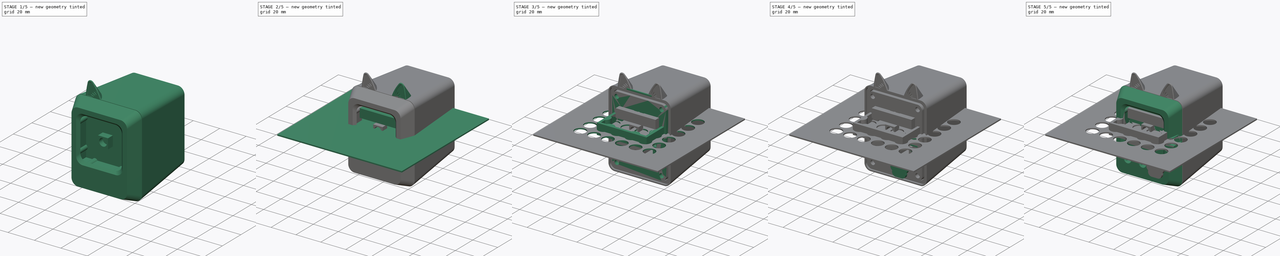
[diagram: build sequence overview — one tinted view per stage of 5, left to right]
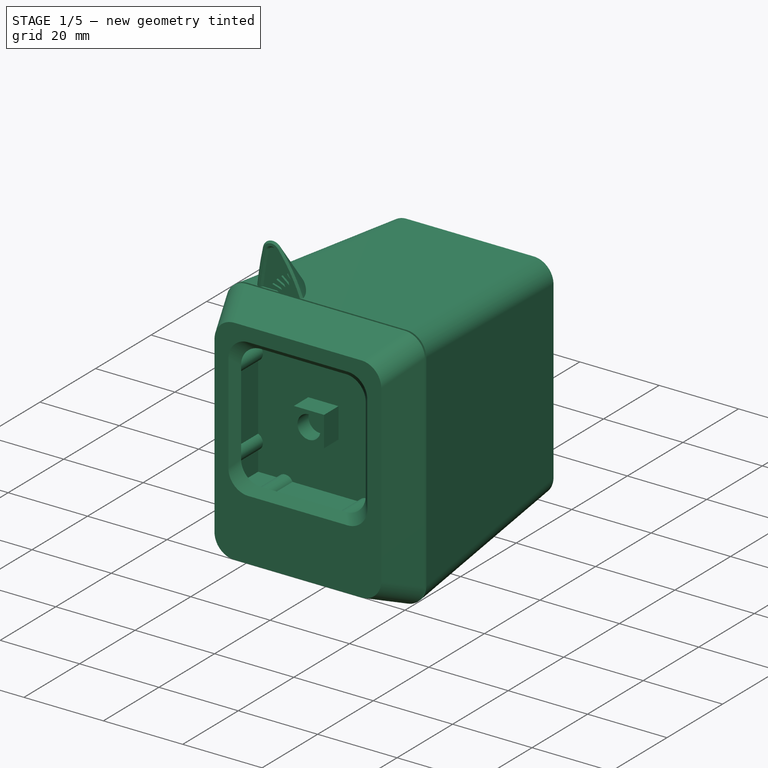
[diagram: stage 1 of 5 — iso view after this stage's code; geometry added in this stage tinted green]
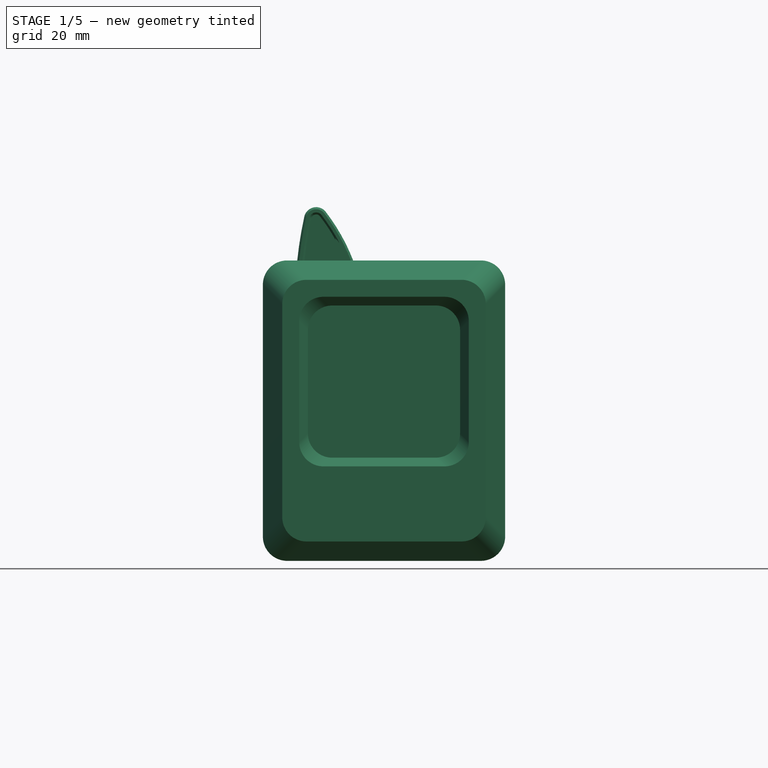
[diagram: stage 1 of 5 — front view after this stage's code; geometry added in this stage tinted green]
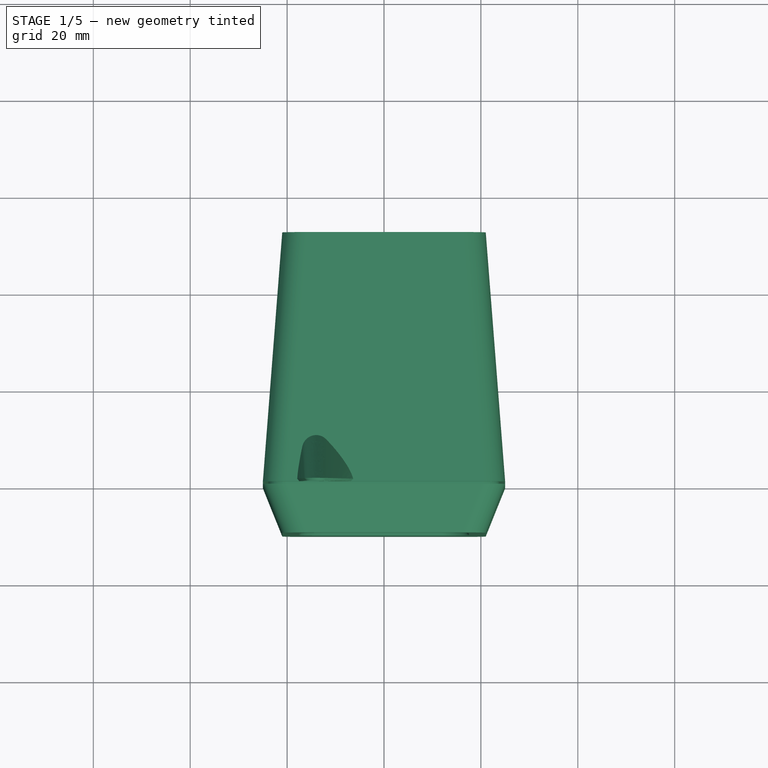
[diagram: stage 1 of 5 — top view after this stage's code; geometry added in this stage tinted green]
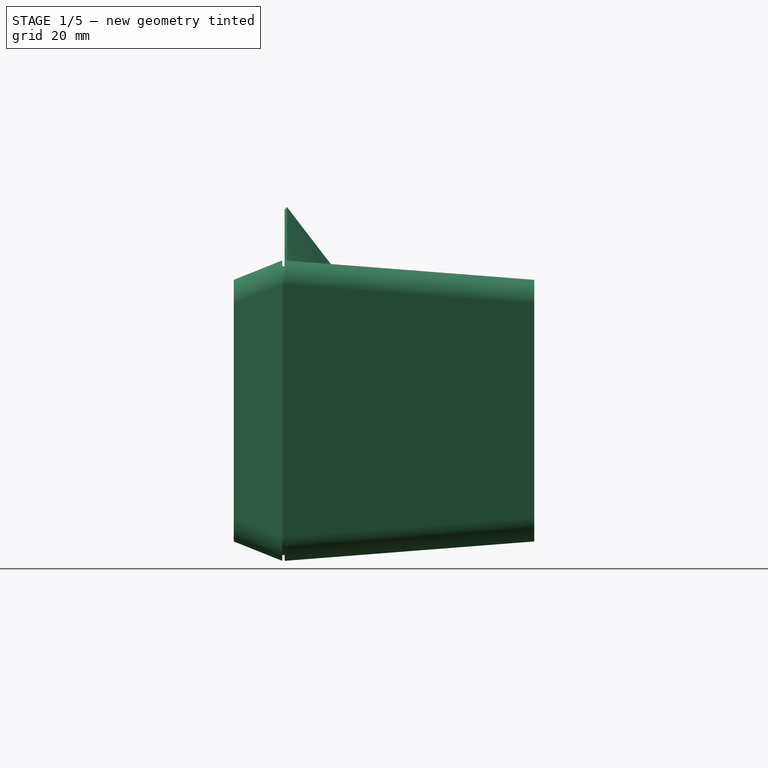
[diagram: stage 1 of 5 — right view after this stage's code; geometry added in this stage tinted green]
FCSTD DOCUMENT  (FreeCAD 0.21R33668 +26 (Git))
Label: MatrixBuddy
License: All rights reserved
LicenseURL: http://en.wikipedia.org/wiki/All_rights_reserved
objects: Part::Feature×364, Sketcher::SketchObject×50, App::Part×26, PartDesign::Pad×21, PartDesign::Body×16, PartDesign::Pocket×14, Part::FeaturePython×10, PartDesign::Mirrored×7, Part::Box×5, Part::Cut×5, PartDesign::SubtractiveBox×4, PartDesign::LinearPattern×4, PartDesign::CoordinateSystem×3, PartDesign::AdditiveLoft×3, PartDesign::AdditiveCylinder×3, PartDesign::AdditiveBox×3, PartDesign::MultiTransform×3, PartDesign::ShapeBinder×2, PartDesign::SubtractiveLoft×2, PartDesign::Hole×2, +7 more types
note: 582 computed .brp shape members not serialized (recipe doc carries the construction recipe); baked Part::Feature solids carry a one-line shape summary decoded from their .brp

FEATURE [Sketcher::SketchObject] Sketch002
  AttachmentOffset = pos=(0,0,10) rot=(0,0,1;0rad)
  FullyConstrained = true
  MapMode = 5
  Placement = pos=(0,-10,-2.2e-15) rot=(1,0,0;1.5708rad)
  Support = -> [XZ_Plane014]
  sketch-geometry (8):
    g0: LineSegment StartX=-16 StartY=21 StartZ=0 EndX=16 EndY=21 EndZ=0
    g1: LineSegment StartX=21 StartY=16 StartZ=0 EndX=21 EndY=-28 EndZ=0
    g2: LineSegment StartX=16 StartY=-33 StartZ=0 EndX=-16 EndY=-33 EndZ=0
    g3: LineSegment StartX=-21 StartY=-28 StartZ=0 EndX=-21 EndY=16 EndZ=0
    g4: ArcOfCircle CenterX=-16 CenterY=16 CenterZ=0 NormalX=0 NormalY=0 NormalZ=1 AngleXU=0 Radius=5 StartAngle=1.5708 EndAngle=3.14159
    g5: ArcOfCircle CenterX=16 CenterY=16 CenterZ=0 NormalX=0 NormalY=0 NormalZ=1 AngleXU=0 Radius=5 StartAngle=0 EndAngle=1.5708
    g6: ArcOfCircle CenterX=16 CenterY=-28 CenterZ=0 NormalX=0 NormalY=0 NormalZ=1 AngleXU=0 Radius=5 StartAngle=4.71239 EndAngle=6.28319
    g7: ArcOfCircle CenterX=-16 CenterY=-28 CenterZ=0 NormalX=0 NormalY=0 NormalZ=1 AngleXU=0 Radius=5 StartAngle=3.14159 EndAngle=4.71239
  constraints (19):
    c: Horizontal(g2)
    c: Vertical(g1)
    c: Vertical(g3)
    c: Tangent(g0,g4) = 1.5708
    c: Tangent(g3,g4) = 1.5708
    c: Tangent(g0,g5) = 1.5708
    c: Tangent(g1,g5) = 1.5708
    c: Tangent(g1,g6) = 1.5708
    c: Tangent(g2,g6) = 1.5708
    c: Tangent(g2,g7) = 1.5708
    c: Tangent(g3,g7) = 1.5708
    c: Equal(g6,g5)
    c: Equal(g5,g4)
    c: Equal(g4,g7)
    c: Symmetric(g0,g0,g-2)
    c: Radius(g4) = 5
    c: DistanceY(g2,g0) = 54
    c: DistanceX(g3,g1) = 42
    c: DistanceY(g-1,g0) = 21
FEATURE [PartDesign::ShapeBinder] ShapeBinder
  Placement = pos=(0,0,0) rot=(1,0,0;1.5708rad)
  Support = -> [Sketch]
  TraceSupport = false
FEATURE [Sketcher::SketchObject] Sketch003
  FullyConstrained = true
  MapMode = 5
  Placement = pos=(0,0,0) rot=(1,0,0;1.5708rad)
  Support = -> [XZ_Plane014]
  sketch-geometry (8):
    g0: LineSegment StartX=-20 StartY=25 StartZ=0 EndX=20 EndY=25 EndZ=0
    g1: LineSegment StartX=25 StartY=20 StartZ=0 EndX=25 EndY=-32 EndZ=0
    g2: LineSegment StartX=20 StartY=-37 StartZ=0 EndX=-20 EndY=-37 EndZ=0
    g3: LineSegment StartX=-25 StartY=-32 StartZ=0 EndX=-25 EndY=20 EndZ=0
    g4: ArcOfCircle CenterX=-20 CenterY=20 CenterZ=0 NormalX=0 NormalY=0 NormalZ=1 AngleXU=0 Radius=5 StartAngle=1.5708 EndAngle=3.14159
    g5: ArcOfCircle CenterX=20 CenterY=20 CenterZ=0 NormalX=0 NormalY=0 NormalZ=1 AngleXU=0 Radius=5 StartAngle=1e-16 EndAngle=1.5708
    g6: ArcOfCircle CenterX=20 CenterY=-32 CenterZ=0 NormalX=0 NormalY=0 NormalZ=1 AngleXU=0 Radius=5 StartAngle=4.71239 EndAngle=6.28319
    g7: ArcOfCircle CenterX=-20 CenterY=-32 CenterZ=0 NormalX=0 NormalY=0 NormalZ=1 AngleXU=0 Radius=5 StartAngle=3.14159 EndAngle=4.71239
  constraints (19):
    c: Horizontal(g2)
    c: Vertical(g1)
    c: Vertical(g3)
    c: Tangent(g0,g4) = 1.5708
    c: Tangent(g3,g4) = 1.5708
    c: Tangent(g0,g5) = 1.5708
    c: Tangent(g1,g5) = 1.5708
    c: Tangent(g1,g6) = 1.5708
    c: Tangent(g2,g6) = 1.5708
    c: Tangent(g2,g7) = 1.5708
    c: Tangent(g3,g7) = 1.5708
    c: Equal(g6,g5)
    c: Equal(g5,g4)
    c: Equal(g4,g7)
    c: Symmetric(g0,g0,g-2)
    c: Radius(g4) = 5
    c: DistanceY(g2,g0) = 62
    c: DistanceX(g3,g1) = 50
    c: DistanceY(g-1,g0) = 25
FEATURE [PartDesign::AdditiveLoft] AdditiveLoft
  Closed = false
  Placement = pos=(0,0,0) rot=(1,0,0;1.5708rad)
  Profile = -> Sketch002
  Ruled = false
  Sections = -> [Sketch003]
FEATURE [Sketcher::SketchObject] Sketch004
  AttachmentOffset = pos=(0,0,-0.5) rot=(0,0,1;0rad)
  FullyConstrained = true
  MapMode = 5
  Placement = pos=(0,0.5,1e-16) rot=(1,0,0;1.5708rad)
  Support = -> [XZ_Plane017]
  sketch-geometry (8):
    g0: LineSegment StartX=-20 StartY=25 StartZ=0 EndX=20 EndY=25 EndZ=0
    g1: LineSegment StartX=25 StartY=20 StartZ=0 EndX=25 EndY=-32 EndZ=0
    g2: LineSegment StartX=20 StartY=-37 StartZ=0 EndX=-20 EndY=-37 EndZ=0
    g3: LineSegment StartX=-25 StartY=-32 StartZ=0 EndX=-25 EndY=20 EndZ=0
    g4: ArcOfCircle CenterX=-20 CenterY=20 CenterZ=0 NormalX=0 NormalY=0 NormalZ=1 AngleXU=0 Radius=5 StartAngle=1.5708 EndAngle=3.14159
    g5: ArcOfCircle CenterX=20 CenterY=20 CenterZ=0 NormalX=0 NormalY=0 NormalZ=1 AngleXU=0 Radius=5 StartAngle=0 EndAngle=1.5708
    g6: ArcOfCircle CenterX=20 CenterY=-32 CenterZ=0 NormalX=0 NormalY=0 NormalZ=1 AngleXU=0 Radius=5 StartAngle=4.71239 EndAngle=6.28319
    g7: ArcOfCircle CenterX=-20 CenterY=-32 CenterZ=0 NormalX=0 NormalY=0 NormalZ=1 AngleXU=0 Radius=5 StartAngle=3.14159 EndAngle=4.71239
  constraints (19):
    c: Horizontal(g2)
    c: Vertical(g1)
    c: Vertical(g3)
    c: Tangent(g0,g4) = 1.5708
    c: Tangent(g3,g4) = 1.5708
    c: Tangent(g0,g5) = 1.5708
    c: Tangent(g1,g5) = 1.5708
    c: Tangent(g1,g6) = 1.5708
    c: Tangent(g2,g6) = 1.5708
    c: Tangent(g2,g7) = 1.5708
    c: Tangent(g3,g7) = 1.5708
    c: Equal(g6,g5)
    c: Equal(g5,g4)
    c: Equal(g4,g7)
    c: Symmetric(g0,g0,g-2)
    c: Radius(g4) = 5
    c: DistanceY(g2,g0) = 62
    c: DistanceX(g3,g1) = 50
    c: DistanceY(g-1,g0) = 25
FEATURE [Sketcher::SketchObject] Sketch005
  AttachmentOffset = pos=(0,0,-52) rot=(0,0,1;0rad)
  FullyConstrained = true
  MapMode = 5
  Placement = pos=(0,52,1.15e-14) rot=(1,0,0;1.5708rad)
  Support = -> [XZ_Plane017]
  sketch-geometry (8):
    g0: LineSegment StartX=-16 StartY=21 StartZ=0 EndX=16 EndY=21 EndZ=0
    g1: LineSegment StartX=21 StartY=16 StartZ=0 EndX=21 EndY=-28 EndZ=0
    g2: LineSegment StartX=16 StartY=-33 StartZ=0 EndX=-16 EndY=-33 EndZ=0
    g3: LineSegment StartX=-21 StartY=-28 StartZ=0 EndX=-21 EndY=16 EndZ=0
    g4: ArcOfCircle CenterX=-16 CenterY=16 CenterZ=0 NormalX=0 NormalY=0 NormalZ=1 AngleXU=0 Radius=5 StartAngle=1.5708 EndAngle=3.14159
    g5: ArcOfCircle CenterX=16 CenterY=16 CenterZ=0 NormalX=0 NormalY=0 NormalZ=1 AngleXU=0 Radius=5 StartAngle=0 EndAngle=1.5708
    g6: ArcOfCircle CenterX=16 CenterY=-28 CenterZ=0 NormalX=0 NormalY=0 NormalZ=1 AngleXU=0 Radius=5 StartAngle=4.71239 EndAngle=6.28319
    g7: ArcOfCircle CenterX=-16 CenterY=-28 CenterZ=0 NormalX=0 NormalY=0 NormalZ=1 AngleXU=0 Radius=5 StartAngle=3.14159 EndAngle=4.71239
  constraints (19):
    c: Horizontal(g2)
    c: Vertical(g1)
    c: Vertical(g3)
    c: Tangent(g0,g4) = 1.5708
    c: Tangent(g3,g4) = 1.5708
    c: Tangent(g0,g5) = 1.5708
    c: Tangent(g1,g5) = 1.5708
    c: Tangent(g1,g6) = 1.5708
    c: Tangent(g2,g6) = 1.5708
    c: Tangent(g2,g7) = 1.5708
    c: Tangent(g3,g7) = 1.5708
    c: Equal(g6,g5)
    c: Equal(g5,g4)
    c: Equal(g4,g7)
    c: Symmetric(g0,g0,g-2)
    c: Radius(g4) = 5
    c: DistanceY(g2,g0) = 54
    c: DistanceX(g3,g1) = 42
    c: DistanceY(g-1,g0) = 21
FEATURE [PartDesign::AdditiveLoft] AdditiveLoft001
  Closed = false
  Placement = pos=(0,0,0) rot=(1,0,0;1.5708rad)
  Profile = -> Sketch004
  Ruled = false
  Sections = -> [Sketch005]
FEATURE [Sketcher::SketchObject] Sketch006
  AttachmentOffset = pos=(0,0,8) rot=(0,0,1;0rad)
  FullyConstrained = true
  MapMode = 5
  Placement = pos=(0,-8,-1.8e-15) rot=(1,0,0;1.5708rad)
  Support = -> [XZ_Plane014]
  sketch-geometry (43):
    g0: LineSegment StartX=-16 StartY=16 StartZ=0 EndX=16 EndY=16 EndZ=0
    g1: LineSegment StartX=16 StartY=16 StartZ=0 EndX=16 EndY=-16 EndZ=0
    g2: LineSegment StartX=16 StartY=-16 StartZ=0 EndX=-16 EndY=-16 EndZ=0
    g3: LineSegment StartX=-16 StartY=-16 StartZ=0 EndX=-16 EndY=16 EndZ=0
    g4: LineSegment StartX=16 StartY=-16 StartZ=0 EndX=16 EndY=-17 EndZ=0
    g5: LineSegment StartX=16 StartY=-16 StartZ=0 EndX=17 EndY=-16 EndZ=0
    g6: LineSegment StartX=-16 StartY=16 StartZ=0 EndX=-16 EndY=17 EndZ=0
    g7: LineSegment StartX=-16 StartY=16 StartZ=0 EndX=-17 EndY=16 EndZ=0
    g8: LineSegment StartX=-17 StartY=12 StartZ=0 EndX=-17 EndY=17 EndZ=0
    g9: LineSegment StartX=-17 StartY=8.33394 StartZ=0 EndX=-17 EndY=12 EndZ=0
    g10: LineSegment StartX=-17 StartY=-17 StartZ=0 EndX=-17 EndY=-12 EndZ=0
    g11: LineSegment StartX=-17 StartY=-12 StartZ=0 EndX=-17 EndY=-8.33394 EndZ=0
    g12: LineSegment StartX=-17 StartY=-8.33394 StartZ=0 EndX=-17 EndY=8.33394 EndZ=0
    g13: LineSegment StartX=17 StartY=-12 StartZ=0 EndX=17 EndY=-17 EndZ=0
    g14: LineSegment StartX=17 StartY=-8.33394 StartZ=0 EndX=17 EndY=-12 EndZ=0
    g15: LineSegment StartX=17 StartY=17 StartZ=0 EndX=17 EndY=12 EndZ=0
    g16: LineSegment StartX=17 StartY=12 StartZ=0 EndX=17 EndY=8.33394 EndZ=0
    g17: LineSegment StartX=17 StartY=8.33394 StartZ=0 EndX=17 EndY=-8.33394 EndZ=0
    g18: LineSegment StartX=12 StartY=17 StartZ=0 EndX=17 EndY=17 EndZ=0
    g19: LineSegment StartX=8.33394 StartY=17 StartZ=0 EndX=12 EndY=17 EndZ=0
    g20: LineSegment StartX=-17 StartY=17 StartZ=0 EndX=-12 EndY=17 EndZ=0
    g21: LineSegment StartX=-12 StartY=17 StartZ=0 EndX=-8.33394 EndY=17 EndZ=0
    g22: LineSegment StartX=-8.33394 StartY=17 StartZ=0 EndX=8.33394 EndY=17 EndZ=0
    g23: LineSegment StartX=17 StartY=-17 StartZ=0 EndX=12 EndY=-17 EndZ=0
    g24: LineSegment StartX=12 StartY=-17 StartZ=0 EndX=8.33394 EndY=-17 EndZ=0
    g25: LineSegment StartX=-12 StartY=-17 StartZ=0 EndX=-17 EndY=-17 EndZ=0
    g26: LineSegment StartX=8.33394 StartY=-17 StartZ=0 EndX=-8.33394 EndY=-17 EndZ=0
    g27: LineSegment StartX=-8.33394 StartY=-17 StartZ=0 EndX=-12 EndY=-17 EndZ=0
    g28: ArcOfCircle CenterX=-17.8 CenterY=10.167 CenterZ=0 NormalX=0 NormalY=0 NormalZ=1 AngleXU=0 Radius=2 StartAngle=5.12391 EndAngle=7.44246
    g29: ArcOfCircle CenterX=-17.8 CenterY=-10.167 CenterZ=0 NormalX=0 NormalY=0 NormalZ=1 AngleXU=0 Radius=2 StartAngle=5.12391 EndAngle=7.44246
    g30: ArcOfCircle CenterX=-10.167 CenterY=-17.8 CenterZ=0 NormalX=0 NormalY=0 NormalZ=1 AngleXU=0 Radius=2 StartAngle=0.411517 EndAngle=2.73008
    g31: ArcOfCircle CenterX=10.167 CenterY=-17.8 CenterZ=0 NormalX=0 NormalY=0 NormalZ=1 AngleXU=0 Radius=2 StartAngle=0.411517 EndAngle=2.73008
    g32: ArcOfCircle CenterX=17.8 CenterY=-10.167 CenterZ=0 NormalX=0 NormalY=0 NormalZ=1 AngleXU=0 Radius=2 StartAngle=1.98231 EndAngle=4.30087
    g33: ArcOfCircle CenterX=17.8 CenterY=10.167 CenterZ=0 NormalX=0 NormalY=0 NormalZ=1 AngleXU=0 Radius=2 StartAngle=1.98231 EndAngle=4.30087
    g34: ArcOfCircle CenterX=10.167 CenterY=17.8 CenterZ=0 NormalX=0 NormalY=0 NormalZ=1 AngleXU=0 Radius=2 StartAngle=3.55311 EndAngle=5.87167
    g35: ArcOfCircle CenterX=-10.167 CenterY=17.8 CenterZ=0 NormalX=0 NormalY=0 NormalZ=1 AngleXU=0 Radius=2 StartAngle=3.55311 EndAngle=5.87167
    g36: LineSegment StartX=-10.167 StartY=17 StartZ=0 EndX=-10.167 EndY=15.8 EndZ=0
    g37: ArcOfCircle CenterX=-14.25 CenterY=14.25 CenterZ=0 NormalX=0 NormalY=0 NormalZ=1 AngleXU=0 Radius=2.75 StartAngle=1.5708 EndAngle=3.14159
    g38: LineSegment StartX=-12 StartY=17 StartZ=0 EndX=-14.25 EndY=17 EndZ=0
    g39: LineSegment StartX=-17 StartY=12 StartZ=0 EndX=-17 EndY=14.25 EndZ=0
    g40: LineSegment StartX=12 StartY=17 StartZ=0 EndX=14.25 EndY=17 EndZ=0
    g41: LineSegment StartX=17 StartY=12 StartZ=0 EndX=17 EndY=14.25 EndZ=0
    g42: ArcOfCircle CenterX=14.25 CenterY=14.25 CenterZ=0 NormalX=0 NormalY=0 NormalZ=1 AngleXU=0 Radius=2.75 StartAngle=0 EndAngle=1.5708
  constraints (125):
    c: Coincident(g0,g1)
    c: Coincident(g1,g2)
    c: Coincident(g2,g3)
    c: Coincident(g3,g0)
    c: Horizontal(g0)
    c: Horizontal(g2)
    c: Vertical(g1)
    c: Vertical(g3)
    c: Symmetric(g0,g1,g-1)
    c: Equal(g3,g0)
    c: DistanceX(g0,g0) = 32
    c: Coincident(g18,g15)
    c: Coincident(g13,g23)
    c: Coincident(g25,g10)
    c: Coincident(g8,g20)
    c: Coincident(g4,g1)
    c: Vertical(g4)
    c: Coincident(g5,g1)
    c: Horizontal(g5)
    c: Coincident(g6,g0)
    c: Vertical(g6)
    c: Coincident(g7,g0)
    c: Horizontal(g7)
    c: Equal(g7,g6)
    c: Equal(g7,g4)
    c: Equal(g4,g5)
    c: DistanceX(g7,g7) = 1
    c: Coincident(g9,g8)
    c: Vertical(g8)
    c: Coincident(g12,g9)
    c: Vertical(g9)
    c: Coincident(g10,g11)
    c: Vertical(g10)
    c: PointOnObject(g7,g10)
    c: Coincident(g11,g12)
    c: Vertical(g11)
    c: Vertical(g12)
    c: Coincident(g14,g13)
    c: Vertical(g13)
    c: Coincident(g17,g14)
    c: Vertical(g14)
    c: Coincident(g15,g16)
    c: Vertical(g15)
    c: PointOnObject(g5,g15)
    c: Coincident(g16,g17)
    c: Vertical(g16)
    c: Vertical(g17)
    c: Coincident(g19,g18)
    c: Horizontal(g18)
    c: Coincident(g22,g19)
    c: Horizontal(g19)
    c: Coincident(g20,g21)
    c: Horizontal(g20)
    c: PointOnObject(g6,g20)
    c: Coincident(g21,g22)
    c: Horizontal(g21)
    c: Horizontal(g22)
    c: Coincident(g23,g24)
    c: Horizontal(g23)
    c: PointOnObject(g4,g23)
    c: Coincident(g24,g26)
    c: Horizontal(g24)
    c: Coincident(g27,g25)
    c: Horizontal(g25)
    c: Coincident(g26,g27)
    c: Horizontal(g26)
    c: Horizontal(g27)
    c: Coincident(g28,g8)
    c: Coincident(g28,g12)
    c: Coincident(g29,g12)
    c: Coincident(g29,g10)
    c: Coincident(g30,g25)
    c: Coincident(g30,g26)
    c: Coincident(g31,g26)
    c: Coincident(g31,g23)
    c: Coincident(g32,g13)
    c: Coincident(g32,g17)
    c: Coincident(g33,g17)
    c: Coincident(g33,g15)
    c: Coincident(g34,g22)
    c: Coincident(g34,g18)
    c: Coincident(g35,g20)
    c: Coincident(g35,g22)
    c: Radius(g35) = 2
    c: PointOnObject(g36,g21)
    c: PointOnObject(g36,g35)
    c: Vertical(g36)
    c: Perpendicular(g35,g36)
    c: DistanceY(g36,g36) = 1.2
    c: DistanceX(g20,g20) = 5
    c: Equal(g8,g20)
    c: Equal(g20,g18)
    c: Equal(g18,g15)
    c: Equal(g15,g13)
    c: Equal(g13,g23)
    c: Equal(g23,g10)
    c: Equal(g10,g25)
    c: Equal(g21,g9)
    c: Equal(g9,g11)
    c: Equal(g11,g27)
    c: Equal(g27,g24)
    c: Equal(g24,g14)
    c: Equal(g14,g16)
    c: Equal(g16,g19)
    c: Equal(g35,g28)
    c: Equal(g28,g29)
    c: Equal(g29,g30)
    c: Equal(g30,g32)
    c: Equal(g32,g31)
    c: Equal(g31,g34)
    c: Equal(g34,g33)
    c: Coincident(g38,g35)
    c: Horizontal(g38)
    c: Coincident(g39,g28)
    c: Vertical(g39)
    c: Tangent(g37,g38) = -1.5708
    c: Tangent(g37,g39) = 1.5708
    c: Radius(g37) = 2.75
    c: Coincident(g40,g34)
    c: Horizontal(g40)
    c: Coincident(g41,g33)
    c: Vertical(g41)
    c: Tangent(g42,g40) = 1.5708
    c: Tangent(g42,g41) = -1.5708
    c: Equal(g42,g37)
FEATURE [PartDesign::Pocket] Pocket
  BaseFeature = -> AdditiveLoft
  Direction = (0,1,2e-16)
  Length = 5
  Length2 = 5
  Placement = pos=(0,0,0) rot=(1,0,0;1.5708rad)
  Profile = -> Sketch006
  ReferenceAxis = -> Sketch006 [N_Axis]
  Type = 1
FEATURE [Sketcher::SketchObject] Sketch007
  AttachmentOffset = pos=(0,0,8) rot=(0,0,1;0rad)
  FullyConstrained = true
  MapMode = 5
  Placement = pos=(0,-8,-1.8e-15) rot=(1,0,0;1.5708rad)
  Support = -> [XZ_Plane014]
  sketch-geometry (8):
    g0: LineSegment StartX=-10.7 StartY=15.7 StartZ=0 EndX=10.7 EndY=15.7 EndZ=0
    g1: LineSegment StartX=15.7 StartY=10.7 StartZ=0 EndX=15.7 EndY=-10.7 EndZ=0
    g2: LineSegment StartX=10.7 StartY=-15.7 StartZ=0 EndX=-10.7 EndY=-15.7 EndZ=0
    g3: LineSegment StartX=-15.7 StartY=-10.7 StartZ=0 EndX=-15.7 EndY=10.7 EndZ=0
    g4: ArcOfCircle CenterX=-10.7 CenterY=10.7 CenterZ=0 NormalX=0 NormalY=0 NormalZ=1 AngleXU=0 Radius=5 StartAngle=1.5708 EndAngle=3.14159
    g5: ArcOfCircle CenterX=10.7 CenterY=10.7 CenterZ=0 NormalX=0 NormalY=0 NormalZ=1 AngleXU=0 Radius=5 StartAngle=0 EndAngle=1.5708
    g6: ArcOfCircle CenterX=10.7 CenterY=-10.7 CenterZ=0 NormalX=0 NormalY=0 NormalZ=1 AngleXU=0 Radius=5 StartAngle=4.71239 EndAngle=6.28319
    g7: ArcOfCircle CenterX=-10.7 CenterY=-10.7 CenterZ=0 NormalX=0 NormalY=0 NormalZ=1 AngleXU=0 Radius=5 StartAngle=3.14159 EndAngle=4.71239
  constraints (19):
    c: Horizontal(g0)
    c: Horizontal(g2)
    c: Vertical(g1)
    c: Vertical(g3)
    c: Equal(g0,g3)
    c: Tangent(g0,g4) = 1.5708
    c: Tangent(g3,g4) = 1.5708
    c: Tangent(g0,g5) = 1.5708
    c: Tangent(g1,g5) = 1.5708
    c: Tangent(g1,g6) = 1.5708
    c: Tangent(g2,g6) = 1.5708
    c: Tangent(g2,g7) = 1.5708
    c: Tangent(g3,g7) = 1.5708
    c: Equal(g7,g4)
    c: Equal(g4,g5)
    c: Equal(g5,g6)
    c: Radius(g4) = 5
    c: DistanceX(g3,g1) = 31.4
    c: Symmetric(g0,g2,g-1)
FEATURE [Sketcher::SketchObject] Sketch008
  AttachmentOffset = pos=(0,0,10) rot=(0,0,1;0rad)
  FullyConstrained = true
  MapMode = 5
  Placement = pos=(0,-10,-2.2e-15) rot=(1,0,0;1.5708rad)
  Support = -> [XZ_Plane014]
  sketch-geometry (8):
    g0: LineSegment StartX=-12.5 StartY=17.5 StartZ=0 EndX=12.5 EndY=17.5 EndZ=0
    g1: LineSegment StartX=17.5 StartY=12.5 StartZ=0 EndX=17.5 EndY=-12.5 EndZ=0
    g2: LineSegment StartX=12.5 StartY=-17.5 StartZ=0 EndX=-12.5 EndY=-17.5 EndZ=0
    g3: LineSegment StartX=-17.5 StartY=-12.5 StartZ=0 EndX=-17.5 EndY=12.5 EndZ=0
    g4: ArcOfCircle CenterX=-12.5 CenterY=12.5 CenterZ=0 NormalX=0 NormalY=0 NormalZ=1 AngleXU=0 Radius=5 StartAngle=1.5708 EndAngle=3.14159
    g5: ArcOfCircle CenterX=12.5 CenterY=12.5 CenterZ=0 NormalX=0 NormalY=0 NormalZ=1 AngleXU=0 Radius=5 StartAngle=-1.33e-14 EndAngle=1.5708
    g6: ArcOfCircle CenterX=12.5 CenterY=-12.5 CenterZ=0 NormalX=0 NormalY=0 NormalZ=1 AngleXU=0 Radius=5 StartAngle=4.71239 EndAngle=6.28319
    g7: ArcOfCircle CenterX=-12.5 CenterY=-12.5 CenterZ=0 NormalX=0 NormalY=0 NormalZ=1 AngleXU=0 Radius=5 StartAngle=3.14159 EndAngle=4.71239
  constraints (19):
    c: Horizontal(g0)
    c: Horizontal(g2)
    c: Vertical(g1)
    c: Vertical(g3)
    c: Equal(g0,g3)
    c: Tangent(g0,g4) = 1.5708
    c: Tangent(g3,g4) = 1.5708
    c: Tangent(g0,g5) = 1.5708
    c: Tangent(g1,g5) = 1.5708
    c: Tangent(g1,g6) = 1.5708
    c: Tangent(g2,g6) = 1.5708
    c: Tangent(g2,g7) = 1.5708
    c: Tangent(g3,g7) = 1.5708
    c: Equal(g7,g4)
    c: Equal(g4,g5)
    c: Equal(g5,g6)
    c: Radius(g4) = 5
    c: DistanceX(g3,g1) = 35
    c: Symmetric(g0,g2,g-1)
FEATURE [PartDesign::SubtractiveLoft] SubtractiveLoft
  BaseFeature = -> Pocket
  Closed = false
  Placement = pos=(0,0,0) rot=(1,0,0;1.5708rad)
  Profile = -> Sketch007
  Ruled = false
  Sections = -> [Sketch008]
FEATURE [PartDesign::SubtractiveBox] Box001
  AttacherType = Attacher::AttachEngine3D
  AttachmentOffset = pos=(-15,-33,0) rot=(0,0,1;0rad)
  BaseFeature = -> SubtractiveLoft
  Height = 5
  Length = 30
  MapMode = 5
  Placement = pos=(-15,7.3e-15,-33) rot=(1,0,0;1.5708rad)
  Support = -> [XZ_Plane014]
  Width = 6
FEATURE [Sketcher::SketchObject] Sketch009
  AttachmentOffset = pos=(0,0,-15) rot=(0,0,1;0rad)
  FullyConstrained = true
  MapMode = 5
  Placement = pos=(0,15,3.3e-15) rot=(1,0,0;1.5708rad)
  Support = -> [XZ_Plane017]
  sketch-geometry (3):
    g0: Circle CenterX=18 CenterY=18 CenterZ=0 NormalX=0 NormalY=0 NormalZ=1 AngleXU=0 Radius=3.25
    g1: Circle CenterX=18 CenterY=-30 CenterZ=0 NormalX=0 NormalY=0 NormalZ=1 AngleXU=0 Radius=3.25
    g2: LineSegment StartX=18 StartY=-30 StartZ=0 EndX=18 EndY=18 EndZ=0
  constraints (8):
    c: DistanceX(g0) = 18
    c: DistanceY(g0) = 18
    c: Equal(g0,g1)
    c: Coincident(g2,g1)
    c: Coincident(g2,g0)
    c: Vertical(g2)
    c: DistanceY(g2,g2) = 48
    c: Diameter(g0) = 6.5
FEATURE [Sketcher::SketchObject] Sketch010
  AttachmentOffset = pos=(0,0,-55) rot=(0,0,1;0rad)
  FullyConstrained = true
  MapMode = 5
  Placement = pos=(0,55,1.22e-14) rot=(1,0,0;1.5708rad)
  Support = -> [XZ_Plane017]
  sketch-geometry (3):
    g0: Circle CenterX=16 CenterY=16 CenterZ=0 NormalX=0 NormalY=0 NormalZ=1 AngleXU=0 Radius=3.25
    g1: Circle CenterX=16 CenterY=-28 CenterZ=0 NormalX=0 NormalY=0 NormalZ=1 AngleXU=0 Radius=3.25
    g2: LineSegment StartX=16 StartY=-28 StartZ=0 EndX=16 EndY=16 EndZ=0
  constraints (8):
    c: DistanceX(g0) = 16
    c: DistanceY(g0) = 16
    c: Equal(g0,g1)
    c: Coincident(g2,g1)
    c: Coincident(g2,g0)
    c: Vertical(g2)
    c: DistanceY(g2,g2) = 44
    c: Diameter(g0) = 6.5
FEATURE [PartDesign::Mirrored] Mirrored
  MirrorPlane = -> YZ_Plane015
  Placement = pos=(0,0,0) rot=(1,0,0;1.5708rad)
FEATURE [PartDesign::Plane] DatumPlane
  AttachmentOffset = pos=(0,0,-6) rot=(0,0,1;0rad)
  Length = 62.4097
  MapMode = 2
  Placement = pos=(0,0,-6) rot=(0,0,1;0rad)
  ResizeMode = 0
  Support = -> [XY_Plane015]
  Width = 89.4097
FEATURE [PartDesign::Mirrored] Mirrored001
  MirrorPlane = -> DatumPlane
  Placement = pos=(0,0,0) rot=(1,0,0;1.5708rad)
FEATURE [Sketcher::SketchObject] Sketch011
  AttachmentOffset = pos=(0,0,-15) rot=(0,0,1;0rad)
  FullyConstrained = true
  MapMode = 5
  Placement = pos=(0,15,3.3e-15) rot=(1,0,0;1.5708rad)
  Support = -> [XZ_Plane017]
  sketch-geometry (8):
    g0: Circle CenterX=18 CenterY=18 CenterZ=0 NormalX=0 NormalY=0 NormalZ=1 AngleXU=0 Radius=1.5
    g1: Circle CenterX=18 CenterY=-30 CenterZ=0 NormalX=0 NormalY=0 NormalZ=1 AngleXU=0 Radius=1.5
    g2: Circle CenterX=-18 CenterY=-30 CenterZ=0 NormalX=0 NormalY=0 NormalZ=1 AngleXU=0 Radius=1.5
    g3: Circle CenterX=-18 CenterY=18 CenterZ=0 NormalX=0 NormalY=0 NormalZ=1 AngleXU=0 Radius=1.5
    g4: LineSegment StartX=-18 StartY=18 StartZ=0 EndX=18 EndY=18 EndZ=0
    g5: LineSegment StartX=18 StartY=18 StartZ=0 EndX=18 EndY=-30 EndZ=0
    g6: LineSegment StartX=18 StartY=-30 StartZ=0 EndX=-18 EndY=-30 EndZ=0
    g7: LineSegment StartX=-18 StartY=-30 StartZ=0 EndX=-18 EndY=18 EndZ=0
  constraints (20):
    c: DistanceX(g0) = 18
    c: DistanceY(g0) = 18
    c: Coincident(g4,g5)
    c: Coincident(g5,g6)
    c: Coincident(g6,g7)
    c: Coincident(g7,g4)
    c: Horizontal(g4)
    c: Horizontal(g6)
    c: Vertical(g5)
    c: Vertical(g7)
    c: Coincident(g4,g3)
    c: Coincident(g5,g1)
    c: Coincident(g0,g4)
    c: Coincident(g6,g2)
    c: DistanceY(g7,g7) = 48
    c: DistanceX(g4,g4) = 36
    c: Equal(g2,g3)
    c: Equal(g3,g0)
    c: Equal(g0,g1)
    c: Diameter(g0) = 3
FEATURE [Sketcher::SketchObject] Sketch012
  FullyConstrained = true
  MapMode = 5
  Placement = pos=(0,0,0) rot=(1,0,0;1.5708rad)
  Support = -> [XZ_Plane014]
  sketch-geometry (8):
    g0: Circle CenterX=18 CenterY=18 CenterZ=0 NormalX=0 NormalY=0 NormalZ=1 AngleXU=0 Radius=1.5
    g1: Circle CenterX=18 CenterY=-30 CenterZ=0 NormalX=0 NormalY=0 NormalZ=1 AngleXU=0 Radius=1.5
    g2: Circle CenterX=-18 CenterY=-30 CenterZ=0 NormalX=0 NormalY=0 NormalZ=1 AngleXU=0 Radius=1.5
    g3: Circle CenterX=-18 CenterY=18 CenterZ=0 NormalX=0 NormalY=0 NormalZ=1 AngleXU=0 Radius=1.5
    g4: LineSegment StartX=-18 StartY=18 StartZ=0 EndX=18 EndY=18 EndZ=0
    g5: LineSegment StartX=18 StartY=18 StartZ=0 EndX=18 EndY=-30 EndZ=0
    g6: LineSegment StartX=18 StartY=-30 StartZ=0 EndX=-18 EndY=-30 EndZ=0
    g7: LineSegment StartX=-18 StartY=-30 StartZ=0 EndX=-18 EndY=18 EndZ=0
  constraints (20):
    c: DistanceX(g0) = 18
    c: DistanceY(g0) = 18
    c: Coincident(g4,g5)
    c: Coincident(g5,g6)
    c: Coincident(g6,g7)
    c: Coincident(g7,g4)
    c: Horizontal(g4)
    c: Horizontal(g6)
    c: Vertical(g5)
    c: Vertical(g7)
    c: Coincident(g4,g3)
    c: Coincident(g5,g1)
    c: Coincident(g0,g4)
    c: Coincident(g6,g2)
    c: DistanceY(g7,g7) = 48
    c: DistanceX(g4,g4) = 36
    c: Equal(g2,g3)
    c: Equal(g3,g0)
    c: Equal(g0,g1)
    c: Diameter(g0) = 3
FEATURE [PartDesign::Hole] Hole001
  BaseFeature = -> Box001
  CustomThreadClearance = 0
  Depth = 6
  DepthType = 0
  Diameter = 3.6
  DrillForDepth = false
  DrillPoint = 0
  DrillPointAngle = 118
  HoleCutCountersinkAngle = 90
  HoleCutCustomValues = false
  HoleCutDepth = 0
  HoleCutDiameter = 6.1
  HoleCutType = 0
  ModelThread = false
  Placement = pos=(-15,7e-15,-33) rot=(1,0,0;1.5708rad)
  Profile = -> Sketch012
  Reversed = true
  Tapered = false
  TaperedAngle = 90
  ThreadClass = 0
  ThreadDepth = 6
  ThreadDepthType = 0
  ThreadDirection = 0
  ThreadFit = 2
  ThreadSize = 9
  ThreadType = 1
  Threaded = false
  UseCustomThreadClearance = false
FEATURE [Sketcher::SketchObject] Sketch013
  AttachmentOffset = pos=(0,0,2) rot=(0,0,1;0rad)
  FullyConstrained = true
  MapMode = 5
  Placement = pos=(0,-2,-4e-16) rot=(1,0,0;1.5708rad)
  Support = -> [XZ_Plane014]
  sketch-geometry (21):
    g0: LineSegment StartX=21.2066 StartY=17.1408 StartZ=0 EndX=20.3474 EndY=20.3474 EndZ=0
    g1: LineSegment StartX=20.3474 StartY=20.3474 StartZ=0 EndX=17.1408 EndY=21.2066 EndZ=0
    g2: LineSegment StartX=17.1408 StartY=21.2066 StartZ=0 EndX=14.7934 EndY=18.8592 EndZ=0
    g3: LineSegment StartX=14.7934 StartY=18.8592 StartZ=0 EndX=15.6526 EndY=15.6526 EndZ=0
    g4: LineSegment StartX=15.6526 StartY=15.6526 StartZ=0 EndX=18.8592 EndY=14.7934 EndZ=0
    g5: LineSegment StartX=18.8592 StartY=14.7934 StartZ=0 EndX=21.2066 EndY=17.1408 EndZ=0
    g6: Circle CenterX=18 CenterY=18 CenterZ=0 NormalX=0 NormalY=0 NormalZ=1 AngleXU=0 Radius=3.31976
    g7: LineSegment StartX=14.7934 StartY=18.8592 StartZ=0 EndX=11.9649 EndY=16.0308 EndZ=0
    g8: LineSegment StartX=18.8592 StartY=14.7934 StartZ=0 EndX=16.0308 EndY=11.9649 EndZ=0
    g9: LineSegment StartX=16.0308 StartY=11.9649 StartZ=0 EndX=11.9649 EndY=16.0308 EndZ=0
    g10: LineSegment StartX=18 StartY=18 StartZ=0 EndX=18 EndY=-30 EndZ=0
    g11: LineSegment StartX=14.6802 StartY=-30 StartZ=0 EndX=16.3401 EndY=-32.875 EndZ=0
    g12: LineSegment StartX=16.3401 StartY=-32.875 StartZ=0 EndX=19.6599 EndY=-32.875 EndZ=0
    g13: LineSegment StartX=19.6599 StartY=-32.875 StartZ=0 EndX=21.3198 EndY=-30 EndZ=0
    g14: LineSegment StartX=21.3198 StartY=-30 StartZ=0 EndX=19.6599 EndY=-27.125 EndZ=0
    g15: LineSegment StartX=19.6599 StartY=-27.125 StartZ=0 EndX=16.3401 EndY=-27.125 EndZ=0
    g16: LineSegment StartX=16.3401 StartY=-27.125 StartZ=0 EndX=14.6802 EndY=-30 EndZ=0
    g17: Circle CenterX=18 CenterY=-30 CenterZ=0 NormalX=0 NormalY=0 NormalZ=1 AngleXU=0 Radius=3.31976
    g18: LineSegment StartX=16.3401 StartY=-32.875 StartZ=0 EndX=0 EndY=-32.875 EndZ=0
    g19: LineSegment StartX=0 StartY=-32.875 StartZ=0 EndX=0 EndY=-27.125 EndZ=0
    g20: LineSegment StartX=0 StartY=-27.125 StartZ=0 EndX=16.3401 EndY=-27.125 EndZ=0
  constraints (52):
    c: Coincident(g0,g1)
    c: Coincident(g1,g2)
    c: Coincident(g2,g3)
    c: Coincident(g3,g4)
    c: Coincident(g4,g5)
    c: Coincident(g5,g0)
    c: Equal(g0, g1-g5) x5
    c: PointOnObject(g0,g6)
    c: PointOnObject(g1,g6)
    c: PointOnObject(g2,g6)
    c: PointOnObject(g3,g6)
    c: PointOnObject(g4,g6)
    c: PointOnObject(g5,g6)
    c: DistanceX(g6) = 18
    c: DistanceY(g6) = 18
    c: Distance(g1,g0) = 5.75
    c: Angle(g-1,g2) = 0.785398
    c: Coincident(g7,g2)
    c: Coincident(g8,g5)
    c: Coincident(g9,g8)
    c: Coincident(g9,g7)
    c: Parallel(g7,g2)
    c: Parallel(g8,g5)
    c: Perpendicular(g9,g7)
    c: Distance(g7) = 4
    c: Coincident(g10,g6)
    c: Vertical(g10)
    c: DistanceY(g10,g10) = 48
    c: Coincident(g11,g12)
    c: Coincident(g12,g13)
    c: Coincident(g13,g14)
    c: Coincident(g14,g15)
    c: Coincident(g15,g16)
    c: Coincident(g16,g11)
    c: Equal(g11, g12-g16) x5
    c: PointOnObject(g11,g17)
    c: PointOnObject(g12,g17)
    c: PointOnObject(g13,g17)
    c: PointOnObject(g14,g17)
    c: PointOnObject(g15,g17)
    c: PointOnObject(g16,g17)
    c: Coincident(g17,g10)
    c: Equal(g17,g6)
    c: Horizontal(g15)
    c: Coincident(g12,g18)
    c: Horizontal(g18)
    c: Coincident(g18,g19)
    c: Vertical(g19)
    c: Coincident(g19,g20)
    c: Coincident(g20,g15)
    c: Horizontal(g20)
    c: PointOnObject(g19,g-2)
FEATURE [PartDesign::Pocket] Pocket001
  BaseFeature = -> Hole001
  Direction = (0,1,2e-16)
  Length = 3
  Length2 = 5
  Placement = pos=(-15,7e-15,-33) rot=(1,0,0;1.5708rad)
  Profile = -> Sketch013
  ReferenceAxis = -> Sketch013 [N_Axis]
  Reversed = true
  Type = 0
FEATURE [PartDesign::Mirrored] Mirrored002
  BaseFeature = -> Pocket001
  MirrorPlane = -> Sketch013 [V_Axis]
  Originals = -> [Pocket001]
  Placement = pos=(-15,7e-15,-33) rot=(1,0,0;1.5708rad)
FEATURE [App::DocumentObjectGroup] Group001  label="Fasteners"
  Group = -> [Nut,Screw001,Nut001,Nut002,Nut003,Screw002,Screw003,Screw004]
FEATURE [Sketcher::SketchObject] Sketch015
  FullyConstrained = true
  MapMode = 5
  Placement = pos=(0,0,0) rot=(1,0,0;1.5708rad)
  Support = -> [XZ_Plane017]
  sketch-geometry (8):
    g0: LineSegment StartX=-18 StartY=22 StartZ=0 EndX=18 EndY=22 EndZ=0
    g1: LineSegment StartX=22 StartY=18 StartZ=0 EndX=22 EndY=-30 EndZ=0
    g2: LineSegment StartX=18 StartY=-34 StartZ=0 EndX=-18 EndY=-34 EndZ=0
    g3: LineSegment StartX=-22 StartY=-30 StartZ=0 EndX=-22 EndY=18 EndZ=0
    g4: ArcOfCircle CenterX=18 CenterY=18 CenterZ=0 NormalX=0 NormalY=0 NormalZ=1 AngleXU=0 Radius=4 StartAngle=2e-16 EndAngle=1.5708
    g5: ArcOfCircle CenterX=-18 CenterY=18 CenterZ=0 NormalX=0 NormalY=0 NormalZ=1 AngleXU=0 Radius=4 StartAngle=1.5708 EndAngle=3.14159
    g6: ArcOfCircle CenterX=-18 CenterY=-30 CenterZ=0 NormalX=0 NormalY=0 NormalZ=1 AngleXU=0 Radius=4 StartAngle=3.14159 EndAngle=4.71239
    g7: ArcOfCircle CenterX=18 CenterY=-30 CenterZ=0 NormalX=0 NormalY=0 NormalZ=1 AngleXU=0 Radius=4 StartAngle=4.71239 EndAngle=6.28319
  constraints (19):
    c: Horizontal(g2)
    c: Vertical(g1)
    c: Vertical(g3)
    c: Tangent(g0,g4) = 1.5708
    c: Tangent(g1,g4) = 1.5708
    c: Tangent(g0,g5) = 1.5708
    c: Tangent(g3,g5) = 1.5708
    c: Tangent(g2,g6) = 1.5708
    c: Tangent(g3,g6) = 1.5708
    c: Tangent(g1,g7) = 1.5708
    c: Tangent(g2,g7) = 1.5708
    c: Equal(g7,g6)
    c: Equal(g6,g5)
    c: Equal(g5,g4)
    c: Radius(g5) = 4
    c: DistanceY(g2,g0) = 56
    c: DistanceX(g3,g1) = 44
    c: Symmetric(g0,g0,g-2)
    c: DistanceY(g-1,g0) = 22
FEATURE [Sketcher::SketchObject] Sketch016
  FullyConstrained = true
  MapMode = 5
  Placement = pos=(0,0,0) rot=(1,0,0;1.5708rad)
  Support = -> [XZ_Plane017]
  sketch-geometry (28):
    g0: ArcOfCircle CenterX=-16 CenterY=16 CenterZ=0 NormalX=0 NormalY=0 NormalZ=1 AngleXU=0 Radius=5 StartAngle=4.71239 EndAngle=6.28319
    g1: ArcOfCircle CenterX=16 CenterY=16 CenterZ=0 NormalX=0 NormalY=0 NormalZ=1 AngleXU=0 Radius=5 StartAngle=3.14159 EndAngle=4.71239
    g2: LineSegment StartX=-16 StartY=11 StartZ=0 EndX=-18 EndY=11 EndZ=0
    g3: LineSegment StartX=-18 StartY=11 StartZ=0 EndX=-18 EndY=-14.7 EndZ=0
    g4: LineSegment StartX=-18 StartY=-14.7 StartZ=0 EndX=-10.7 EndY=-14.7 EndZ=0
    g5: LineSegment StartX=-10.7 StartY=-18.9 StartZ=0 EndX=-10.7 EndY=-30 EndZ=0
    g6: LineSegment StartX=-10.7 StartY=-30 StartZ=0 EndX=10.7 EndY=-30 EndZ=0
    g7: LineSegment StartX=10.7 StartY=-30 StartZ=0 EndX=10.7 EndY=-18.9 EndZ=0
    g8: LineSegment StartX=10.7 StartY=-14.7 StartZ=0 EndX=18 EndY=-14.7 EndZ=0
    g9: LineSegment StartX=18 StartY=-14.7 StartZ=0 EndX=18 EndY=11 EndZ=0
    g10: LineSegment StartX=18 StartY=11 StartZ=0 EndX=16 EndY=11 EndZ=0
    g11: LineSegment StartX=11 StartY=16 StartZ=0 EndX=11 EndY=18 EndZ=0
    g12: LineSegment StartX=11 StartY=18 StartZ=0 EndX=-11 EndY=18 EndZ=0
    g13: LineSegment StartX=-11 StartY=18 StartZ=0 EndX=-11 EndY=16 EndZ=0
    g14: LineSegment StartX=-16 StartY=16 StartZ=0 EndX=16 EndY=16 EndZ=0
    g15: LineSegment StartX=16 StartY=16 StartZ=0 EndX=16 EndY=-28 EndZ=0
    g16: LineSegment StartX=16 StartY=-28 StartZ=0 EndX=-16 EndY=-28 EndZ=0
    g17: LineSegment StartX=-16 StartY=-28 StartZ=0 EndX=-16 EndY=16 EndZ=0
    g18: LineSegment StartX=-10.7 StartY=-16.7 StartZ=0 EndX=-12.5 EndY=-16.7 EndZ=0
    g19: LineSegment StartX=-12.5 StartY=-16.7 StartZ=0 EndX=-12.5 EndY=-18.9 EndZ=0
    g20: LineSegment StartX=-12.5 StartY=-18.9 StartZ=0 EndX=-10.7 EndY=-18.9 EndZ=0
    g21: LineSegment StartX=-10.7 StartY=-18.9 StartZ=0 EndX=10.7 EndY=-18.9 EndZ=0
    g22: LineSegment StartX=10.7 StartY=-18.9 StartZ=0 EndX=12.5 EndY=-18.9 EndZ=0
    g23: LineSegment StartX=12.5 StartY=-18.9 StartZ=0 EndX=12.5 EndY=-16.7 EndZ=0
    g24: LineSegment StartX=12.5 StartY=-16.7 StartZ=0 EndX=10.7 EndY=-16.7 EndZ=0
    g25: LineSegment StartX=10.7 StartY=-16.7 StartZ=0 EndX=-10.7 EndY=-16.7 EndZ=0
    g26: LineSegment StartX=-10.7 StartY=-14.7 StartZ=0 EndX=-10.7 EndY=-16.7 EndZ=0
    g27: LineSegment StartX=10.7 StartY=-16.7 StartZ=0 EndX=10.7 EndY=-14.7 EndZ=0
  constraints (78):
    c: Tangent(g0,g2) = 1.5708
    c: Coincident(g2,g3)
    c: Vertical(g3)
    c: Coincident(g3,g4)
    c: Coincident(g5,g6)
    c: Horizontal(g6)
    c: Coincident(g6,g7)
    c: Coincident(g8,g9)
    c: Vertical(g9)
    c: Coincident(g9,g10)
    c: Tangent(g1,g11) = 1.5708
    c: Coincident(g11,g12)
    c: Horizontal(g12)
    c: Coincident(g12,g13)
    c: Coincident(g14,g15)
    c: Coincident(g15,g16)
    c: Coincident(g16,g17)
    c: Coincident(g17,g14)
    c: Horizontal(g14)
    c: Horizontal(g16)
    c: Vertical(g15)
    c: Vertical(g17)
    c: Coincident(g14,g0)
    c: Coincident(g14,g1)
    c: DistanceX(g14,g14) = 32
    c: DistanceX(g-1,g1) = 16
    c: DistanceY(g-1,g1) = 16
    c: Equal(g1,g0)
    c: Tangent(g10,g1) = 1.5708
    c: Tangent(g13,g0) = 1.5708
    c: Horizontal(g2)
    c: Horizontal(g10)
    c: Horizontal(g8)
    c: Horizontal(g4)
    c: Vertical(g5)
    c: Vertical(g7)
    c: Vertical(g11)
    c: Vertical(g13)
    c: Equal(g2,g10)
    c: DistanceX(g2,g2) = 2
    c: DistanceY(g15,g15) = 44
    c: DistanceY(g13,g13) = 2
    c: Horizontal(g18)
    c: Coincident(g18,g19)
    c: Vertical(g19)
    c: Coincident(g19,g20)
    c: Horizontal(g20)
    c: Coincident(g20,g21)
    c: Horizontal(g21)
    c: Coincident(g21,g22)
    c: Horizontal(g22)
    c: Coincident(g22,g23)
    c: Vertical(g23)
    c: Coincident(g23,g24)
    c: Horizontal(g24)
    c: Coincident(g24,g25)
    c: Coincident(g25,g18)
    c: Horizontal(g25)
    c: Coincident(g7,g22)
    c: Coincident(g5,g20)
    c: DistanceY(g19,g19) = 2.2
    c: Radius(g0) = 5
    c: Coincident(g26,g4)
    c: Coincident(g26,g18)
    c: Vertical(g26)
    c: Coincident(g27,g24)
    c: Coincident(g27,g8)
    c: Vertical(g27)
    c: Equal(g8,g4)
    c: DistanceY(g26,g26) = 2
    c: DistanceX(g20,g20) = 1.8
    c: Equal(g20,g18)
    c: Equal(g18,g24)
    c: Equal(g24,g22)
    c: DistanceX(g19,g22) = 25
    c: Equal(g26,g27)
    c: DistanceY(g5,g16) = 2
    c: DistanceY(g18,g12) = 34.7
FEATURE [Sketcher::SketchObject] Sketch017
  ExternalGeometry = -> [Sketch003]
  FullyConstrained = true
  MapMode = 5
  Placement = pos=(0,0,0) rot=(1,0,0;1.5708rad)
  Support = -> [XZ_Plane014]
  sketch-geometry (16):
    g0: LineSegment StartX=-20 StartY=23.8 StartZ=0 EndX=20 EndY=23.8 EndZ=0
    g1: LineSegment StartX=23.8 StartY=20 StartZ=0 EndX=23.8 EndY=-32 EndZ=0
    g2: LineSegment StartX=20 StartY=-35.8 StartZ=0 EndX=-20 EndY=-35.8 EndZ=0
    g3: LineSegment StartX=-23.8 StartY=-32 StartZ=0 EndX=-23.8 EndY=20 EndZ=0
    g4: ArcOfCircle CenterX=20 CenterY=20 CenterZ=0 NormalX=0 NormalY=0 NormalZ=1 AngleXU=0 Radius=3.8 StartAngle=0 EndAngle=1.5708
    g5: ArcOfCircle CenterX=-20 CenterY=20 CenterZ=0 NormalX=0 NormalY=0 NormalZ=1 AngleXU=0 Radius=3.8 StartAngle=1.5708 EndAngle=3.14159
    g6: ArcOfCircle CenterX=-20 CenterY=-32 CenterZ=0 NormalX=0 NormalY=0 NormalZ=1 AngleXU=0 Radius=3.8 StartAngle=3.14159 EndAngle=4.71239
    g7: ArcOfCircle CenterX=20 CenterY=-32 CenterZ=0 NormalX=0 NormalY=0 NormalZ=1 AngleXU=0 Radius=3.8 StartAngle=4.71239 EndAngle=6.28319
    g8: LineSegment StartX=-20 StartY=21.3 StartZ=0 EndX=20 EndY=21.3 EndZ=0
    g9: LineSegment StartX=21.3 StartY=20 StartZ=0 EndX=21.3 EndY=-32 EndZ=0
    g10: LineSegment StartX=20 StartY=-33.3 StartZ=0 EndX=-20 EndY=-33.3 EndZ=0
    g11: LineSegment StartX=-21.3 StartY=-32 StartZ=0 EndX=-21.3 EndY=20 EndZ=0
    g12: ArcOfCircle CenterX=20 CenterY=20 CenterZ=0 NormalX=0 NormalY=0 NormalZ=1 AngleXU=0 Radius=1.3 StartAngle=-1.8e-15 EndAngle=1.5708
    g13: ArcOfCircle CenterX=-20 CenterY=20 CenterZ=0 NormalX=0 NormalY=0 NormalZ=1 AngleXU=0 Radius=1.3 StartAngle=1.5708 EndAngle=3.14159
    g14: ArcOfCircle CenterX=-20 CenterY=-32 CenterZ=0 NormalX=0 NormalY=0 NormalZ=1 AngleXU=0 Radius=1.3 StartAngle=3.14159 EndAngle=4.71239
    g15: ArcOfCircle CenterX=20 CenterY=-32 CenterZ=0 NormalX=0 NormalY=0 NormalZ=1 AngleXU=0 Radius=1.3 StartAngle=4.71239 EndAngle=6.28319
  constraints (32):
    c: Horizontal(g0)
    c: Vertical(g1)
    c: Vertical(g3)
    c: Tangent(g0,g4) = 1.5708
    c: Tangent(g1,g4) = 1.5708
    c: Tangent(g0,g5) = 1.5708
    c: Tangent(g3,g5) = 1.5708
    c: Tangent(g2,g6) = 1.5708
    c: Tangent(g3,g6) = 1.5708
    c: Tangent(g1,g7) = 1.5708
    c: Tangent(g2,g7) = 1.5708
    c: Coincident(g5,g-3)
    c: Coincident(g-4,g4)
    c: Coincident(g7,g-5)
    c: Coincident(g-6,g6)
    c: Radius(g5) = 3.8
    c: Horizontal(g8)
    c: Vertical(g9)
    c: Vertical(g11)
    c: Tangent(g8,g12) = 1.5708
    c: Tangent(g9,g12) = 1.5708
    c: Tangent(g8,g13) = 1.5708
    c: Tangent(g11,g13) = 1.5708
    c: Tangent(g10,g14) = 1.5708
    c: Tangent(g11,g14) = 1.5708
    c: Tangent(g9,g15) = 1.5708
    c: Tangent(g10,g15) = 1.5708
    c: Coincident(g13,g5)
    c: Coincident(g12,g4)
    c: Coincident(g15,g7)
    c: Coincident(g14,g6)
    c: DistanceX(g3,g11) = 2.5
FEATURE [PartDesign::Pad] Pad002
  BaseFeature = -> Mirrored002
  Direction = (0,-1,-2e-16)
  Length = 2
  Length2 = 10
  Placement = pos=(-15,7e-15,-33) rot=(1,0,0;1.5708rad)
  Profile = -> Sketch017
  ReferenceAxis = -> Sketch017 [N_Axis]
  Reversed = true
  Type = 0
FEATURE [Sketcher::SketchObject] Sketch018
  ExternalGeometry = -> [Sketch003]
  FullyConstrained = true
  MapMode = 5
  Placement = pos=(0,0,0) rot=(1,0,0;1.5708rad)
  Support = -> [XZ_Plane017]
  sketch-geometry (8):
    g0: LineSegment StartX=-20 StartY=24 StartZ=0 EndX=20 EndY=24 EndZ=0
    g1: LineSegment StartX=24 StartY=20 StartZ=0 EndX=24 EndY=-32 EndZ=0
    g2: LineSegment StartX=20 StartY=-36 StartZ=0 EndX=-20 EndY=-36 EndZ=0
    g3: LineSegment StartX=-24 StartY=-32 StartZ=0 EndX=-24 EndY=20 EndZ=0
    g4: ArcOfCircle CenterX=20 CenterY=20 CenterZ=0 NormalX=0 NormalY=0 NormalZ=1 AngleXU=0 Radius=4 StartAngle=-9e-16 EndAngle=1.5708
    g5: ArcOfCircle CenterX=-20 CenterY=20 CenterZ=0 NormalX=0 NormalY=0 NormalZ=1 AngleXU=0 Radius=4 StartAngle=1.5708 EndAngle=3.14159
    g6: ArcOfCircle CenterX=-20 CenterY=-32 CenterZ=0 NormalX=0 NormalY=0 NormalZ=1 AngleXU=0 Radius=4 StartAngle=3.14159 EndAngle=4.71239
    g7: ArcOfCircle CenterX=20 CenterY=-32 CenterZ=0 NormalX=0 NormalY=0 NormalZ=1 AngleXU=0 Radius=4 StartAngle=4.71239 EndAngle=6.28319
  constraints (16):
    c: Horizontal(g0)
    c: Vertical(g1)
    c: Vertical(g3)
    c: Tangent(g0,g4) = 1.5708
    c: Tangent(g1,g4) = 1.5708
    c: Tangent(g0,g5) = 1.5708
    c: Tangent(g3,g5) = 1.5708
    c: Tangent(g2,g6) = 1.5708
    c: Tangent(g3,g6) = 1.5708
    c: Tangent(g1,g7) = 1.5708
    c: Tangent(g2,g7) = 1.5708
    c: Coincident(g5,g-3)
    c: Coincident(g-4,g4)
    c: Coincident(g7,g-5)
    c: Coincident(g-6,g6)
    c: Radius(g5) = 4
FEATURE [Sketcher::SketchObject] Sketch019
  AttachmentOffset = pos=(0,0,-52) rot=(0,0,1;0rad)
  ExternalGeometry = -> [Sketch016]
  FullyConstrained = true
  MapMode = 5
  Placement = pos=(0,52,1.15e-14) rot=(1,0,0;1.5708rad)
  Support = -> [XZ_Plane017]
  sketch-geometry (13):
    g0: LineSegment StartX=-3.5 StartY=-12 StartZ=0 EndX=3.5 EndY=-12 EndZ=0
    g1: LineSegment StartX=4.7 StartY=-13.2 StartZ=0 EndX=4.7 EndY=-14.4 EndZ=0
    g2: LineSegment StartX=3.5 StartY=-15.6 StartZ=0 EndX=-3.5 EndY=-15.6 EndZ=0
    g3: LineSegment StartX=-4.7 StartY=-14.4 StartZ=0 EndX=-4.7 EndY=-13.2 EndZ=0
    g4: ArcOfCircle CenterX=-3.15 CenterY=8 CenterZ=0 NormalX=0 NormalY=0 NormalZ=1 AngleXU=0 Radius=1.5 StartAngle=1.5708 EndAngle=4.71239
    g5: ArcOfCircle CenterX=3.15 CenterY=8 CenterZ=0 NormalX=0 NormalY=0 NormalZ=1 AngleXU=0 Radius=1.5 StartAngle=4.71239 EndAngle=7.85398
    g6: LineSegment StartX=-3.15 StartY=6.5 StartZ=0 EndX=3.15 EndY=6.5 EndZ=0
    g7: LineSegment StartX=3.15 StartY=9.5 StartZ=0 EndX=-3.15 EndY=9.5 EndZ=0
    g8: LineSegment StartX=-4.65 StartY=8 StartZ=0 EndX=4.65 EndY=8 EndZ=0
    g9: ArcOfCircle CenterX=3.5 CenterY=-14.4 CenterZ=0 NormalX=0 NormalY=0 NormalZ=1 AngleXU=0 Radius=1.2 StartAngle=4.71239 EndAngle=6.28319
    g10: ArcOfCircle CenterX=3.5 CenterY=-13.2 CenterZ=0 NormalX=0 NormalY=0 NormalZ=1 AngleXU=0 Radius=1.2 StartAngle=3e-16 EndAngle=1.5708
    g11: ArcOfCircle CenterX=-3.5 CenterY=-13.2 CenterZ=0 NormalX=0 NormalY=0 NormalZ=1 AngleXU=0 Radius=1.2 StartAngle=1.5708 EndAngle=3.14159
    g12: ArcOfCircle CenterX=-3.5 CenterY=-14.4 CenterZ=0 NormalX=0 NormalY=0 NormalZ=1 AngleXU=0 Radius=1.2 StartAngle=3.14159 EndAngle=4.71239
  constraints (32):
    c: Vertical(g1)
    c: Horizontal(g2)
    c: Vertical(g3)
    c: Tangent(g4,g6) = -1.5708
    c: Tangent(g6,g5) = -1.5708
    c: Tangent(g5,g7) = -1.5708
    c: Tangent(g7,g4) = -1.5708
    c: Equal(g4,g5)
    c: PointOnObject(g8,g4)
    c: PointOnObject(g8,g5)
    c: Horizontal(g8)
    c: Perpendicular(g4,g8)
    c: DistanceX(g8,g8) = 9.3
    c: DistanceY(g4,g4) = 3
    c: DistanceY(g-1,g5) = 8
    c: Symmetric(g4,g5,g-2)
    c: Tangent(g1,g9) = 1.5708
    c: Tangent(g2,g9) = 1.5708
    c: Tangent(g0,g10) = 1.5708
    c: Tangent(g1,g10) = 1.5708
    c: Tangent(g0,g11) = 1.5708
    c: Tangent(g3,g11) = 1.5708
    c: Tangent(g2,g12) = 1.5708
    c: Tangent(g3,g12) = 1.5708
    c: Equal(g12,g11)
    c: Equal(g11,g10)
    c: Equal(g10,g9)
    c: DistanceX(g3,g1) = 9.4
    c: Symmetric(g0,g0,g-2)
    c: DistanceY(g2,g0) = 3.6
    c: Radius(g9) = 1.2
    c: DistanceY(g-3,g2) = 1.1
FEATURE [Sketcher::SketchObject] Sketch020
  FullyConstrained = true
  MapMode = 5
  Placement = pos=(0,0,0) rot=(1,0,0;1.5708rad)
  Support = -> [XZ_Plane019]
  sketch-geometry (4):
    g0: LineSegment StartX=-3.8 StartY=3.8 StartZ=0 EndX=3.8 EndY=3.8 EndZ=0
    g1: LineSegment StartX=3.8 StartY=3.8 StartZ=0 EndX=3.8 EndY=-3.8 EndZ=0
    g2: LineSegment StartX=3.8 StartY=-3.8 StartZ=0 EndX=-3.8 EndY=-3.8 EndZ=0
    g3: LineSegment StartX=-3.8 StartY=-3.8 StartZ=0 EndX=-3.8 EndY=3.8 EndZ=0
  constraints (11):
    c: Coincident(g0,g1)
    c: Coincident(g1,g2)
    c: Coincident(g2,g3)
    c: Coincident(g3,g0)
    c: Horizontal(g0)
    c: Horizontal(g2)
    c: Vertical(g1)
    c: Vertical(g3)
    c: Equal(g0,g3)
    c: Symmetric(g0,g1,g-1)
    c: DistanceX(g0,g0) = 7.6
FEATURE [Sketcher::SketchObject] Sketch021
  AttachmentOffset = pos=(0,0,10) rot=(0,0,1;0rad)
  FullyConstrained = true
  MapMode = 5
  Placement = pos=(0,-10,-2.2e-15) rot=(1,0,0;1.5708rad)
  Support = -> [XZ_Plane014]
  sketch-geometry (21):
    g0: LineSegment StartX=-3 StartY=-19.1 StartZ=0 EndX=3 EndY=-19.1 EndZ=0
    g1: LineSegment StartX=3 StartY=-19.1 StartZ=0 EndX=3 EndY=-25.1 EndZ=0
    g2: LineSegment StartX=3 StartY=-25.1 StartZ=0 EndX=-3 EndY=-25.1 EndZ=0
    g3: LineSegment StartX=-3 StartY=-25.1 StartZ=0 EndX=-3 EndY=-19.1 EndZ=0
    g4: LineSegment StartX=9 StartY=-19.1 StartZ=0 EndX=15 EndY=-19.1 EndZ=0
    g5: LineSegment StartX=15 StartY=-19.1 StartZ=0 EndX=15 EndY=-25.1 EndZ=0
    g6: LineSegment StartX=15 StartY=-25.1 StartZ=0 EndX=9 EndY=-25.1 EndZ=0
    g7: LineSegment StartX=9 StartY=-25.1 StartZ=0 EndX=9 EndY=-19.1 EndZ=0
    g8: LineSegment StartX=-9 StartY=-19.1 StartZ=0 EndX=-15 EndY=-19.1 EndZ=0
    g9: LineSegment StartX=-15 StartY=-19.1 StartZ=0 EndX=-15 EndY=-25.1 EndZ=0
    g10: LineSegment StartX=-15 StartY=-25.1 StartZ=0 EndX=-9 EndY=-25.1 EndZ=0
    g11: LineSegment StartX=-9 StartY=-25.1 StartZ=0 EndX=-9 EndY=-19.1 EndZ=0
    g12: LineSegment StartX=-9 StartY=-19.1 StartZ=0 EndX=-3 EndY=-19.1 EndZ=0
    g13: LineSegment StartX=3 StartY=-19.1 StartZ=0 EndX=9 EndY=-19.1 EndZ=0
    g14: LineSegment StartX=-9 StartY=-25.1 StartZ=0 EndX=-3 EndY=-25.1 EndZ=0
    g15: LineSegment StartX=3 StartY=-25.1 StartZ=0 EndX=9 EndY=-25.1 EndZ=0
    g16: Circle CenterX=0 CenterY=-22.1 CenterZ=0 NormalX=0 NormalY=0 NormalZ=1 AngleXU=0 Radius=3
    g17: Circle CenterX=-12 CenterY=-22.1 CenterZ=0 NormalX=0 NormalY=0 NormalZ=1 AngleXU=0 Radius=3
    g18: Circle CenterX=12 CenterY=-22.1 CenterZ=0 NormalX=0 NormalY=0 NormalZ=1 AngleXU=0 Radius=3
    g19: LineSegment StartX=-12 StartY=-22.1 StartZ=0 EndX=0 EndY=-22.1 EndZ=0
    g20: LineSegment StartX=12 StartY=-22.1 StartZ=0 EndX=0 EndY=-22.1 EndZ=0
  constraints (56):
    c: Coincident(g0,g1)
    c: Coincident(g1,g2)
    c: Coincident(g2,g3)
    c: Coincident(g3,g0)
    c: Horizontal(g2)
    c: Vertical(g1)
    c: Vertical(g3)
    c: Symmetric(g0,g0,g-2)
    c: Equal(g0,g3)
    c: DistanceX(g0,g0) = 6
    c: Coincident(g4,g5)
    c: Coincident(g5,g6)
    c: Coincident(g6,g7)
    c: Coincident(g7,g4)
    c: Horizontal(g4)
    c: Horizontal(g6)
    c: Vertical(g5)
    c: Vertical(g7)
    c: Coincident(g8,g9)
    c: Coincident(g9,g10)
    c: Coincident(g10,g11)
    c: Coincident(g11,g8)
    c: Horizontal(g8)
    c: Horizontal(g10)
    c: Vertical(g9)
    c: Vertical(g11)
    c: Coincident(g12,g8)
    c: Coincident(g12,g0)
    c: Horizontal(g12)
    c: Coincident(g13,g0)
    c: Coincident(g13,g4)
    c: Coincident(g14,g10)
    c: Coincident(g14,g2)
    c: Horizontal(g14)
    c: Coincident(g15,g1)
    c: Coincident(g15,g6)
    c: Horizontal(g15)
    c: Horizontal(g13)
    c: Equal(g8,g0)
    c: Equal(g4,g0)
    c: Equal(g13,g12)
    c: DistanceX(g12,g12) = 6
    c: PointOnObject(g16,g-2)
    c: Coincident(g19,g17)
    c: Coincident(g19,g16)
    c: Horizontal(g19)
    c: Coincident(g20,g18)
    c: Coincident(g20,g16)
    c: Horizontal(g20)
    c: Equal(g17,g16)
    c: Equal(g16,g18)
    c: Equal(g19,g20)
    c: DistanceX(g19,g19) = 12
    c: DistanceY(g18,g-1) = 22.1
    c: Diameter(g18) = 6
    c: Tangent(g4,g18)
FEATURE [PartDesign::Pad] Pad003
  Direction = (0,-1,2e-16)
  Length = 6
  Length2 = 10
  Placement = pos=(0,0,0) rot=(1,0,0;1.5708rad)
  Profile = -> Sketch020
  ReferenceAxis = -> Sketch020 [N_Axis]
  Type = 0
FEATURE [Sketcher::SketchObject] Sketch022
  AttachmentOffset = pos=(0,0,6) rot=(0,0,1;0rad)
  FullyConstrained = true
  MapMode = 5
  Placement = pos=(0,-6,-1.3e-15) rot=(1,0,0;1.5708rad)
  Support = -> [XZ_Plane019]
  sketch-geometry (1):
    g0: Circle CenterX=0 CenterY=0 CenterZ=0 NormalX=0 NormalY=0 NormalZ=1 AngleXU=0 Radius=2.8
  constraints (2):
    c: Coincident(g0,g-1)
    c: Diameter(g0) = 5.6
FEATURE [PartDesign::Pad] Pad004
  BaseFeature = -> Pad003
  Direction = (0,-1,-2e-16)
  Length = 3
  Length2 = 10
  Placement = pos=(0,0,0) rot=(1,0,0;1.5708rad)
  Profile = -> Sketch022
  ReferenceAxis = -> Sketch022 [N_Axis]
  Type = 0
FEATURE [PartDesign::SubtractiveCylinder] Cylinder001
  Angle = 360
  AttacherType = Attacher::AttachEngine3D
  AttachmentOffset = pos=(0,0,2) rot=(0,0,1;0rad)
  BaseFeature = -> Pad004
  FirstAngle = 0
  Height = 10
  MapMode = 5
  Placement = pos=(0,-2,-4e-16) rot=(1,0,0;1.5708rad)
  Radius = 2.9
  SecondAngle = 0
  Support = -> [XZ_Plane019]
FEATURE [Sketcher::SketchObject] Sketch039
  AttachmentOffset = pos=(0,23,21) rot=(-1,0,0;1.5708rad)
  FullyConstrained = true
  MapMode = 5
  Placement = pos=(0,-21,23) rot=(0,0,1;0rad)
  Support = -> [XZ_Plane017]
  sketch-geometry (5):
    g0: ArcOfCircle CenterX=61.0846 CenterY=11.9323 CenterZ=0 NormalX=0 NormalY=0 NormalZ=1 AngleXU=0 Radius=80 StartAngle=2.91808 EndAngle=2.99017
    g1: ArcOfCircle CenterX=-39.582 CenterY=2.26875 CenterZ=0 NormalX=0 NormalY=0 NormalZ=1 AngleXU=0 Radius=40 StartAngle=0.574341 EndAngle=0.807363
    g2: LineSegment StartX=-18 StartY=24 StartZ=0 EndX=-6 EndY=24 EndZ=0
    g3: ArcOfCircle CenterX=-14 CenterY=29 CenterZ=0 NormalX=0 NormalY=0 NormalZ=1 AngleXU=0 Radius=3 StartAngle=0.807363 EndAngle=2.91808
    g4: LineSegment StartX=-14 StartY=32 StartZ=0 EndX=-14 EndY=24 EndZ=0
  constraints (17):
    c: Radius(g0) = 80
    c: Radius(g1) = 40
    c: Coincident(g2,g0)
    c: Coincident(g2,g1)
    c: Horizontal(g2)
    c: DistanceY(g-1,g1) = 24
    c: DistanceX(g1,g-1) = 6
    c: DistanceX(g2,g2) = 12
    c: Tangent(g3,g0) = -1.5708
    c: Tangent(g3,g1) = -1.5708
    c: Radius(g3) = 3
    c: PointOnObject(g4,g3)
    c: PointOnObject(g4,g2)
    c: Vertical(g4)
    c: Perpendicular(g3,g4)
    c: DistanceY(g4,g4) = 8
    c: DistanceX(g0,g4) = 4
FEATURE [Sketcher::SketchObject] Sketch040
  AttachmentOffset = pos=(0,0,-1) rot=(0,0,1;0rad)
  FullyConstrained = true
  MapMode = 5
  Placement = pos=(0,1,2e-16) rot=(1,0,0;1.5708rad)
  Support = -> [XZ_Plane017]
  sketch-geometry (11):
    g0: ArcOfCircle CenterX=61.6726 CenterY=16.7694 CenterZ=0 NormalX=0 NormalY=0 NormalZ=1 AngleXU=0 Radius=80 StartAngle=2.924 EndAngle=3.05109
    g1: ArcOfCircle CenterX=-43.6827 CenterY=10.583 CenterZ=0 NormalX=0 NormalY=0 NormalZ=1 AngleXU=0 Radius=40 StartAngle=0.342056 EndAngle=0.657475
    g2: ArcOfCircle CenterX=-14 CenterY=33.5 CenterZ=0 NormalX=0 NormalY=0 NormalZ=1 AngleXU=0 Radius=2.5 StartAngle=0.657475 EndAngle=2.924
    g3: LineSegment StartX=-14 StartY=36 StartZ=0 EndX=-14 EndY=24 EndZ=0
    g4: ArcOfCircle CenterX=-14 CenterY=33.5 CenterZ=0 NormalX=0 NormalY=0 NormalZ=1 AngleXU=0 Radius=1 StartAngle=0.657475 EndAngle=2.924
    g5: LineSegment StartX=-7.5962 StartY=24 StartZ=0 EndX=-6 EndY=24 EndZ=0
    g6: LineSegment StartX=-18 StartY=24 StartZ=0 EndX=-16.4937 EndY=24 EndZ=0
    g7: LineSegment StartX=-16.4937 StartY=24 StartZ=0 EndX=-7.5962 EndY=24 EndZ=0
    g8: ArcOfCircle CenterX=61.6726 CenterY=16.7694 CenterZ=0 NormalX=0 NormalY=0 NormalZ=1 AngleXU=0 Radius=78.5 StartAngle=2.924 EndAngle=3.04935
    g9: ArcOfCircle CenterX=-43.6827 CenterY=10.583 CenterZ=0 NormalX=0 NormalY=0 NormalZ=1 AngleXU=0 Radius=38.5 StartAngle=0.355963 EndAngle=0.657475
    g10: LineSegment StartX=-14.9764 StartY=33.7159 StartZ=0 EndX=-16.4411 EndY=34.0397 EndZ=0
  constraints (31):
    c: Radius(g0) = 80
    c: Radius(g1) = 40
    c: Coincident(g6,g0)
    c: Coincident(g5,g1)
    c: DistanceY(g-1,g1) = 24
    c: DistanceX(g1,g-1) = 6
    c: DistanceX(g6,g5) = 12
    c: Tangent(g2,g0) = -1.5708
    c: Tangent(g2,g1) = -1.5708
    c: Radius(g2) = 2.5
    c: PointOnObject(g3,g2)
    c: Vertical(g3)
    c: Perpendicular(g2,g3)
    c: DistanceY(g3,g3) = 12
    c: DistanceX(g0,g3) = 4
    c: Coincident(g4,g2)
    c: Coincident(g7,g5)
    c: Horizontal(g5)
    c: Coincident(g6,g7)
    c: Horizontal(g6)
    c: Horizontal(g7)
    c: PointOnObject(g3,g6)
    c: Coincident(g8,g0)
    c: Coincident(g8,g6)
    c: Coincident(g9,g1)
    c: Coincident(g9,g5)
    c: Tangent(g8,g4) = -1.5708
    c: Tangent(g9,g4) = -1.5708
    c: Coincident(g10,g4)
    c: Coincident(g10,g0)
    c: Distance(g10) = 1.5
FEATURE [PartDesign::AdditiveLoft] AdditiveLoft002
  BaseFeature = -> AdditiveLoft001
  Closed = false
  Placement = pos=(0,0,0) rot=(1,0,0;1.5708rad)
  Profile = -> Sketch027
  Ruled = false
  Sections = -> [Sketch039]
FEATURE [PartDesign::Pad] Pad012
  BaseFeature = -> AdditiveLoft002
  Direction = (0,-1,-2e-16)
  Length = 0.5
  Length2 = 10
  Placement = pos=(0,0,0) rot=(1,0,0;1.5708rad)
  Profile = -> Sketch040
  ReferenceAxis = -> Sketch040 [N_Axis]
  TaperAngle = -40
  Type = 0
FEATURE [Sketcher::SketchObject] Sketch041
  AttachmentOffset = pos=(0,0,-1) rot=(0,0,1;0rad)
  FullyConstrained = false
  MapMode = 5
  Placement = pos=(0,1,2e-16) rot=(1,0,0;1.5708rad)
  Support = -> [XZ_Plane017]
  sketch-geometry (27):
    g0: ArcOfCircle CenterX=-6.19423 CenterY=21.4618 CenterZ=0 NormalX=0 NormalY=0 NormalZ=1 AngleXU=0 Radius=9.08594 StartAngle=1.9169 EndAngle=2.80538
    g1: LineSegment StartX=-14.7715 StartY=24.4594 StartZ=0 EndX=-6.19423 EndY=21.4618 EndZ=0
    g2: LineSegment StartX=-6.19423 StartY=21.4618 StartZ=0 EndX=-9.27647 EndY=30.009 EndZ=0
    g3: LineSegment StartX=-12.4884 StartY=23.6615 StartZ=0 EndX=-10.4399 EndY=22.9456 EndZ=0
    g4: LineSegment StartX=-10.4399 StartY=22.9456 StartZ=0 EndX=-7.26665 EndY=24.4357 EndZ=0
    g5: LineSegment StartX=-7.26665 StartY=24.4357 StartZ=0 EndX=-8.45605 EndY=27.7339 EndZ=0
    g6: LineSegment StartX=-8.45605 StartY=27.7339 StartZ=0 EndX=-10.0833 EndY=29.6734 EndZ=0
    g7: LineSegment StartX=-10.0833 StartY=29.6734 StartZ=0 EndX=-9.52911 EndY=27.2354 EndZ=0
    g8: LineSegment StartX=-9.52911 StartY=27.2354 StartZ=0 EndX=-11.5117 EndY=28.8293 EndZ=0
    g9: LineSegment StartX=-11.5117 StartY=28.8293 StartZ=0 EndX=-10.4972 EndY=26.555 EndZ=0
    g10: LineSegment StartX=-10.4972 StartY=26.555 StartZ=0 EndX=-12.7628 EndY=27.7394 EndZ=0
    g11: LineSegment StartX=-12.7628 StartY=27.7394 StartZ=0 EndX=-11.3297 EndY=25.7142 EndZ=0
    g12: LineSegment StartX=-11.3297 StartY=25.7142 StartZ=0 EndX=-13.7948 EndY=26.4403 EndZ=0
    g13: LineSegment StartX=-13.7948 StartY=26.4403 StartZ=0 EndX=-12.0005 EndY=24.7395 EndZ=0
    g14: LineSegment StartX=-12.0005 StartY=24.7395 StartZ=0 EndX=-14.5734 EndY=24.9751 EndZ=0
    g15: LineSegment StartX=-14.5734 StartY=24.9751 StartZ=0 EndX=-12.4884 EndY=23.6615 EndZ=0
    g16: ArcOfCircle CenterX=-6.19423 CenterY=21.4618 CenterZ=0 NormalX=0 NormalY=0 NormalZ=1 AngleXU=0 Radius=6.66748 StartAngle=1.9169 EndAngle=2.80538
    g17: LineSegment StartX=-14.5734 StartY=24.9751 StartZ=0 EndX=-13.7948 EndY=26.4403 EndZ=0
    g18: LineSegment StartX=-14.5734 StartY=24.9751 StartZ=0 EndX=-13.7948 EndY=26.4403 EndZ=0
    g19: LineSegment StartX=-13.7948 StartY=26.4403 StartZ=0 EndX=-12.7628 EndY=27.7394 EndZ=0
    g20: LineSegment StartX=-12.7628 StartY=27.7394 StartZ=0 EndX=-11.5117 EndY=28.8293 EndZ=0
    g21: LineSegment StartX=-11.5117 StartY=28.8293 StartZ=0 EndX=-10.0833 EndY=29.6734 EndZ=0
    g22: LineSegment StartX=-8.45605 StartY=27.7339 StartZ=0 EndX=-9.52911 EndY=27.2354 EndZ=0
    g23: LineSegment StartX=-9.52911 StartY=27.2354 StartZ=0 EndX=-10.4972 EndY=26.555 EndZ=0
    g24: LineSegment StartX=-10.4972 StartY=26.555 StartZ=0 EndX=-11.3297 EndY=25.7142 EndZ=0
    g25: LineSegment StartX=-11.3297 StartY=25.7142 StartZ=0 EndX=-12.0005 EndY=24.7395 EndZ=0
    g26: LineSegment StartX=-12.4884 StartY=23.6615 StartZ=0 EndX=-12.0005 EndY=24.7395 EndZ=0
  constraints (60):
    c: Coincident(g1,g0)
    c: Coincident(g1,g0)
    c: Coincident(g2,g0)
    c: Coincident(g2,g0)
    c: PointOnObject(g3,g1)
    c: PointOnObject(g3,g1)
    c: Coincident(g3,g4)
    c: PointOnObject(g4,g2)
    c: Coincident(g4,g5)
    c: PointOnObject(g5,g2)
    c: Coincident(g5,g6)
    c: PointOnObject(g6,g0)
    c: Coincident(g6,g7)
    c: Coincident(g7,g8)
    c: PointOnObject(g8,g0)
    c: Coincident(g8,g9)
    c: Coincident(g9,g10)
    c: PointOnObject(g10,g0)
    c: Coincident(g10,g11)
    c: Coincident(g11,g12)
    c: PointOnObject(g12,g0)
    c: Coincident(g12,g13)
    c: Coincident(g13,g14)
    c: PointOnObject(g14,g0)
    c: Coincident(g14,g15)
    c: Coincident(g15,g3)
    c: Coincident(g16,g0)
    c: Coincident(g16,g3)
    c: Coincident(g16,g5)
    c: PointOnObject(g13,g16)
    c: PointOnObject(g11,g16)
    c: PointOnObject(g9,g16)
    c: PointOnObject(g7,g16)
    c: Coincident(g17,g14)
    c: Coincident(g18,g14)
    c: Coincident(g18,g12)
    c: Coincident(g19,g12)
    c: Coincident(g20,g10)
    c: Coincident(g21,g8)
    c: Coincident(g22,g5)
    c: Coincident(g22,g7)
    c: Coincident(g23,g7)
    c: Coincident(g23,g9)
    c: Coincident(g24,g9)
    c: Coincident(g24,g11)
    c: Coincident(g25,g11)
    c: Coincident(g26,g3)
    c: Coincident(g26,g13)
    c: Coincident(g25,g13)
    c: Coincident(g20,g8)
    c: Coincident(g21,g6)
    c: Coincident(g19,g10)
    c: Equal(g17,g19)
    c: Equal(g19,g20)
    c: Equal(g20,g21)
    c: Equal(g26,g25)
    c: Equal(g25,g24)
    c: Equal(g24,g23)
    c: Equal(g23,g22)
    c: Coincident(g17,g12)
FEATURE [PartDesign::Pad] Pad013
  BaseFeature = -> Pad012
  Direction = (0,-1,-2e-16)
  Length = 0.5
  Length2 = 10
  Placement = pos=(0,0,0) rot=(1,0,0;1.5708rad)
  Profile = -> Sketch041
  ReferenceAxis = -> Sketch041 [N_Axis]
  Type = 0
FEATURE [PartDesign::Body] Body001
  Group = -> [Binder,Sketch001,Pad001,Sketch052,Pocket013]
  Origin = -> Origin003
  Placement = pos=(0,-5.8,0) rot=(0,0,1;0rad)
  Tip = -> Pocket013
FEATURE [App::Part] Board_18ce  label="MatrixBuddyPCBFaceOnly"
  Group = -> [Local_CS_18ce,Board_Geoms_18ce,Step_Models_18ce,Box013,Body001]
  Origin = -> Origin039
  Placement = pos=(0,3.6,-6) rot=(1,0,0;1.5708rad)
FEATURE [App::DocumentObjectGroup] Group  label="Ref"
  Group = -> [Part,Board_7567,Arduino_Nano_PCB,Box,Group001,Clone001,Board_c150,Board_18ce]
FEATURE [Sketcher::SketchObject] Sketch053
  ExternalGeometry = -> [Sketch017]
  FullyConstrained = true
  MapMode = 5
  Placement = pos=(0,0,0) rot=(1,0,0;1.5708rad)
  Support = -> [XZ_Plane014]
  sketch-geometry (10):
    g0: LineSegment StartX=21.3 StartY=15 StartZ=0 EndX=18.3 EndY=15 EndZ=0
    g1: LineSegment StartX=18.3 StartY=15 StartZ=0 EndX=18.3 EndY=-27 EndZ=0
    g2: LineSegment StartX=18.3 StartY=-27 StartZ=0 EndX=21.3 EndY=-27 EndZ=0
    g3: LineSegment StartX=21.3 StartY=-27 StartZ=0 EndX=21.3 EndY=15 EndZ=0
    g4: LineSegment StartX=21.3 StartY=-32 StartZ=0 EndX=21.3 EndY=-27 EndZ=0
    g5: LineSegment StartX=21.3 StartY=15 StartZ=0 EndX=21.3 EndY=20 EndZ=0
    g6: LineSegment StartX=-18.3 StartY=15 StartZ=0 EndX=-21.3 EndY=15 EndZ=0
    g7: LineSegment StartX=-21.3 StartY=15 StartZ=0 EndX=-21.3 EndY=-27 EndZ=0
    g8: LineSegment StartX=-21.3 StartY=-27 StartZ=0 EndX=-18.3 EndY=-27 EndZ=0
    g9: LineSegment StartX=-18.3 StartY=-27 StartZ=0 EndX=-18.3 EndY=15 EndZ=0
  constraints (26):
    c: Coincident(g0,g1)
    c: Coincident(g1,g2)
    c: Coincident(g2,g3)
    c: Coincident(g3,g0)
    c: Horizontal(g0)
    c: Horizontal(g2)
    c: Vertical(g1)
    c: Vertical(g3)
    c: PointOnObject(g0,g-3)
    c: DistanceY(g0,g-3) = 5
    c: DistanceX(g0,g0) = 3
    c: Coincident(g4,g-3)
    c: Coincident(g4,g2)
    c: Coincident(g5,g0)
    c: Coincident(g5,g-3)
    c: Equal(g5,g4)
    c: Coincident(g6,g7)
    c: Coincident(g7,g8)
    c: Coincident(g8,g9)
    c: Coincident(g9,g6)
    c: Horizontal(g6)
    c: Horizontal(g8)
    c: Vertical(g7)
    c: Vertical(g9)
    c: Symmetric(g8,g1,g-2)
    c: Symmetric(g6,g0,g-2)
FEATURE [PartDesign::Pad] Pad020
  BaseFeature = -> Pad002
  Direction = (0,-1,-2e-16)
  Length = 3.4
  Length2 = 10
  Placement = pos=(-15,7e-15,-33) rot=(1,0,0;1.5708rad)
  Profile = -> Sketch053
  ReferenceAxis = -> Sketch053 [N_Axis]
  Reversed = true
  Type = 0
FEATURE [PartDesign::Body] Body012
  Group = -> [Sketch044,ShapeBinder001,Pad015,Sketch045,Pocket010]
  Origin = -> Origin030
  Tip = -> Pocket010
FEATURE [App::Part] Part008  label="FacerSpacer"
  Group = -> [Body012]
  Origin = -> Origin029
FEATURE [PartDesign::Chamfer] Chamfer
  Angle = 45
  Base = -> Cylinder001 [Edge9,Edge11,Edge3,Edge6]
  BaseFeature = -> Cylinder001
  ChamferType = 0
  FlipDirection = false
  Placement = pos=(0,-2,-4e-16) rot=(1,0,0;1.5708rad)
  Size = 0.8
  Size2 = 1
  SupportTransform = false
  UseAllEdges = false
FEATURE [PartDesign::Body] Body004
  Group = -> [Sketch020,Pad003,Sketch022,Pad004,Cylinder001,Chamfer]
  Origin = -> Origin017
  Tip = -> Chamfer
FEATURE [App::Part] Part004  label="ButtonBack"
  Group = -> [Body004]
  Origin = -> Origin016
  Placement = pos=(0,-2,-22) rot=(0,0,1;0rad)
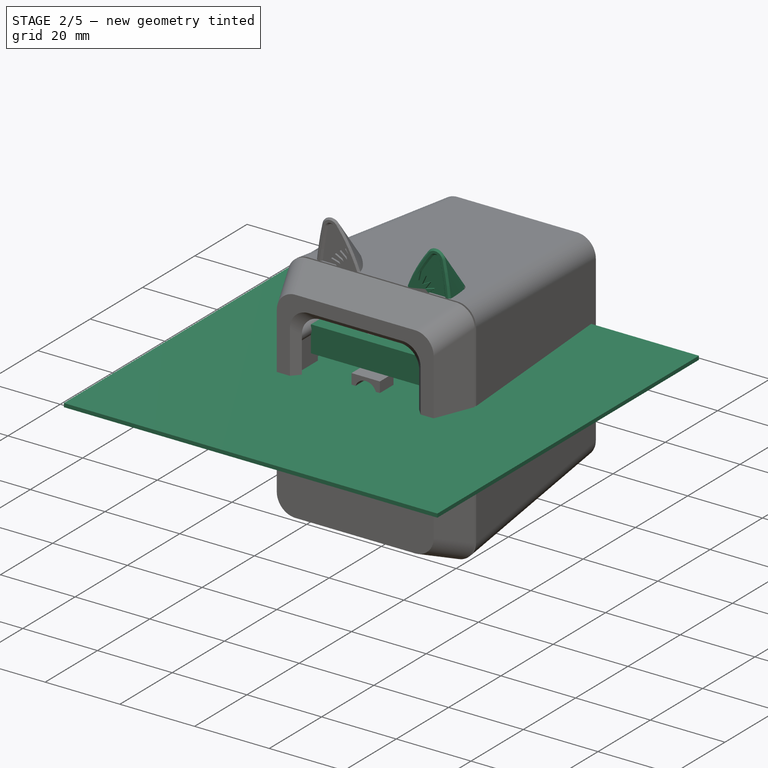
[diagram: stage 2 of 5 — iso view after this stage's code; geometry added in this stage tinted green]
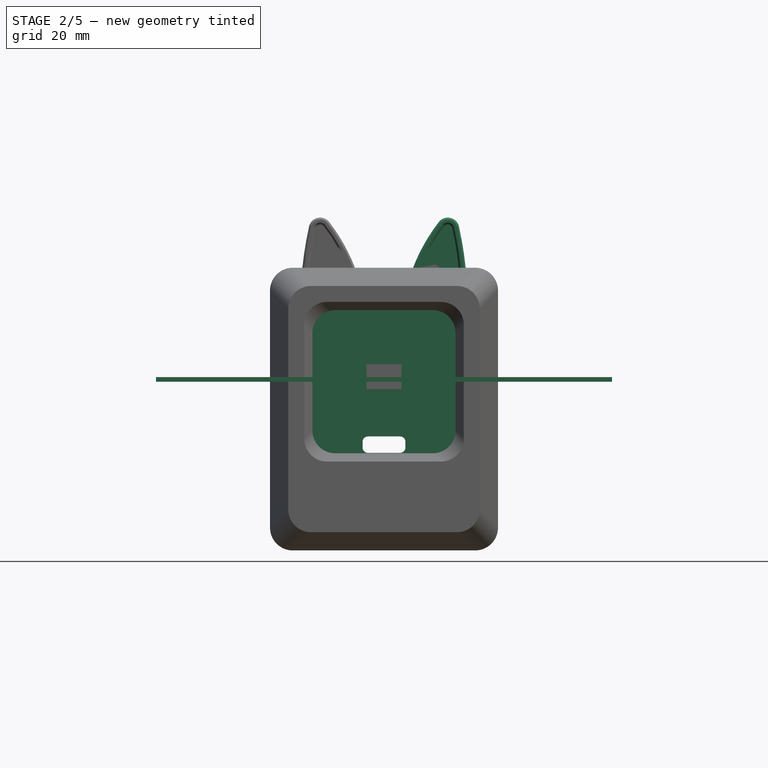
[diagram: stage 2 of 5 — front view after this stage's code; geometry added in this stage tinted green]
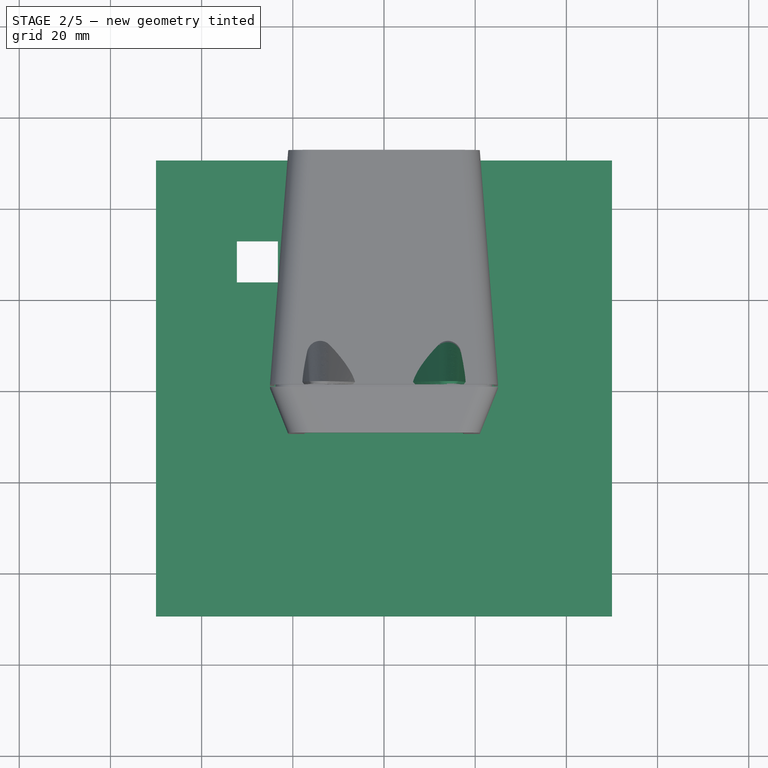
[diagram: stage 2 of 5 — top view after this stage's code; geometry added in this stage tinted green]
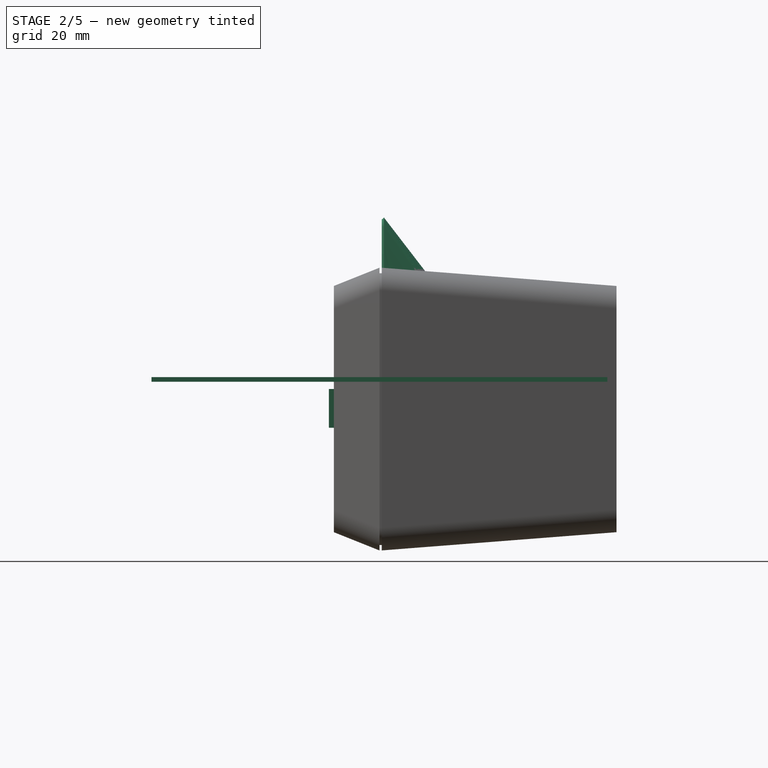
[diagram: stage 2 of 5 — right view after this stage's code; geometry added in this stage tinted green]
FEATURE [PartDesign::Mirrored] Mirrored006
  BaseFeature = -> Pad013
  MirrorPlane = -> Sketch027 [V_Axis]
  Originals = -> [AdditiveLoft002,Pad012,Pad013]
  Placement = pos=(0,0,0) rot=(1,0,0;1.5708rad)
FEATURE [PartDesign::SubtractiveLoft] SubtractiveLoft001
  BaseFeature = -> Mirrored006
  Closed = false
  Placement = pos=(0,0,0) rot=(1,0,0;1.5708rad)
  Profile = -> Sketch009
  Ruled = false
  Sections = -> [Sketch010]
FEATURE [PartDesign::MultiTransform] MultiTransform
  BaseFeature = -> SubtractiveLoft001
  Originals = -> [SubtractiveLoft001]
  Placement = pos=(0,0,0) rot=(1,0,0;1.5708rad)
  Transformations = -> [Mirrored,Mirrored001]
FEATURE [PartDesign::Hole] Hole
  BaseFeature = -> MultiTransform
  CustomThreadClearance = 0
  Depth = 189.966
  DepthType = 1
  Diameter = 3.6
  DrillForDepth = false
  DrillPoint = 1
  DrillPointAngle = 118
  HoleCutCountersinkAngle = 90
  HoleCutCustomValues = false
  HoleCutDepth = 0
  HoleCutDiameter = 6.1
  HoleCutType = 0
  ModelThread = false
  Placement = pos=(0,0,0) rot=(1,0,0;1.5708rad)
  Profile = -> Sketch011
  Reversed = true
  Tapered = false
  TaperedAngle = 90
  ThreadClass = 0
  ThreadDepth = 189.966
  ThreadDepthType = 0
  ThreadDirection = 0
  ThreadFit = 2
  ThreadSize = 9
  ThreadType = 1
  Threaded = false
  UseCustomThreadClearance = false
FEATURE [PartDesign::Pocket] Pocket002
  BaseFeature = -> Hole
  Direction = (0,1,2e-16)
  Length = 5.4
  Length2 = 5
  Placement = pos=(0,0,0) rot=(1,0,0;1.5708rad)
  Profile = -> Sketch015
  ReferenceAxis = -> Sketch015 [N_Axis]
  Type = 0
FEATURE [PartDesign::Pocket] Pocket003
  BaseFeature = -> Pocket002
  Direction = (0,1,2e-16)
  Length = 50
  Length2 = 5
  Placement = pos=(0,0,0) rot=(1,0,0;1.5708rad)
  Profile = -> Sketch016
  ReferenceAxis = -> Sketch016 [N_Axis]
  Type = 0
FEATURE [PartDesign::Pocket] Pocket004
  BaseFeature = -> Pocket003
  Direction = (0,1,2e-16)
  Length = 2
  Length2 = 5
  Placement = pos=(0,0,0) rot=(1,0,0;1.5708rad)
  Profile = -> Sketch018
  ReferenceAxis = -> Sketch018 [N_Axis]
  Type = 0
FEATURE [PartDesign::Pocket] Pocket005
  BaseFeature = -> Pocket004
  Direction = (0,1,2e-16)
  Length = 5
  Length2 = 5
  Placement = pos=(0,0,0) rot=(1,0,0;1.5708rad)
  Profile = -> Sketch019
  ReferenceAxis = -> Sketch019 [N_Axis]
  Reversed = true
  Type = 1
FEATURE [PartDesign::Body] Body011
  BaseFeature = -> Cut003
  Group = -> [Clone002]
  Origin = -> Origin028
  Tip = -> Clone002
FEATURE [Sketcher::SketchObject] Sketch043
  AttachmentOffset = pos=(0,0,-50) rot=(0,0,1;0rad)
  ExternalGeometry = -> [Sketch016]
  FullyConstrained = true
  MapMode = 5
  Placement = pos=(0,50,1.11e-14) rot=(1,0,0;1.5708rad)
  Support = -> [XZ_Plane017]
  sketch-geometry (8):
    g0: LineSegment StartX=-9 StartY=-14.9 StartZ=0 EndX=-9 EndY=-16.9 EndZ=0
    g1: LineSegment StartX=-9 StartY=-16.9 StartZ=0 EndX=9 EndY=-16.9 EndZ=0
    g2: LineSegment StartX=9 StartY=-14.9 StartZ=0 EndX=9 EndY=-16.9 EndZ=0
    g3: LineSegment StartX=-9 StartY=-14.9 StartZ=0 EndX=-6 EndY=-14.9 EndZ=0
    g4: LineSegment StartX=-6 StartY=-14.9 StartZ=0 EndX=-6 EndY=-11.9 EndZ=0
    g5: LineSegment StartX=-6 StartY=-11.9 StartZ=0 EndX=6 EndY=-11.9 EndZ=0
    g6: LineSegment StartX=6 StartY=-11.9 StartZ=0 EndX=6 EndY=-14.9 EndZ=0
    g7: LineSegment StartX=6 StartY=-14.9 StartZ=0 EndX=9 EndY=-14.9 EndZ=0
  constraints (23):
    c: Vertical(g0)
    c: Coincident(g0,g1)
    c: Coincident(g0,g3)
    c: DistanceY(g0,g0) = 2
    c: Coincident(g2,g7)
    c: Coincident(g2,g1)
    c: Vertical(g2)
    c: Symmetric(g0,g1,g-2)
    c: DistanceX(g1,g1) = 18
    c: Coincident(g3,g4)
    c: Horizontal(g3)
    c: Coincident(g4,g5)
    c: Coincident(g5,g6)
    c: Horizontal(g5)
    c: Coincident(g6,g7)
    c: Horizontal(g7)
    c: Vertical(g4)
    c: Vertical(g6)
    c: Equal(g3,g7)
    c: DistanceY(g4,g4) = 3
    c: DistanceX(g5,g5) = 12
    c: Equal(g2,g0)
    c: DistanceY(g1,g-3) = 0.2
FEATURE [PartDesign::Pocket] Pocket009
  BaseFeature = -> Pocket005
  Direction = (0,1,2e-16)
  Length = 1
  Length2 = 5
  Placement = pos=(0,0,0) rot=(1,0,0;1.5708rad)
  Profile = -> Sketch043
  ReferenceAxis = -> Sketch043 [N_Axis]
  Type = 0
FEATURE [PartDesign::SubtractiveCylinder] Cylinder
  Angle = 360
  AttacherType = Attacher::AttachEngine3D
  AttachmentOffset = pos=(0,15,-51.5) rot=(0,0,1;0rad)
  BaseFeature = -> Pocket009
  FirstAngle = 0
  Height = 2
  MapMode = 5
  Placement = pos=(0,51.5,15) rot=(1,0,0;1.5708rad)
  Radius = 2.6
  SecondAngle = 0
  Support = -> [XZ_Plane017]
FEATURE [PartDesign::SubtractiveBox] Box010
  AttacherType = Attacher::AttachEngine3D
  AttachmentOffset = pos=(-2.5,13.5,-50) rot=(0,0,1;0rad)
  BaseFeature = -> Cylinder
  Height = 10
  Length = 5
  MapMode = 5
  Placement = pos=(-2.5,50,13.5) rot=(1,0,0;1.5708rad)
  Support = -> [XZ_Plane017]
  Width = 3
FEATURE [PartDesign::Body] Body015  label="CirclesStencil"
  Group = -> [Sketch048,Pad018,Sketch049,Pocket011,MultiTransform001,LinearPattern,LinearPattern001]
  Origin = -> Origin035
  Tip = -> MultiTransform001
FEATURE [Sketcher::SketchObject] Sketch050
  FullyConstrained = true
  MapMode = 5
  Support = -> [XY_Plane036]
  sketch-geometry (4):
    g0: LineSegment StartX=-50 StartY=50 StartZ=0 EndX=50 EndY=50 EndZ=0
    g1: LineSegment StartX=50 StartY=50 StartZ=0 EndX=50 EndY=-50 EndZ=0
    g2: LineSegment StartX=50 StartY=-50 StartZ=0 EndX=-50 EndY=-50 EndZ=0
    g3: LineSegment StartX=-50 StartY=-50 StartZ=0 EndX=-50 EndY=50 EndZ=0
  constraints (11):
    c: Coincident(g0,g1)
    c: Coincident(g1,g2)
    c: Coincident(g2,g3)
    c: Coincident(g3,g0)
    c: Horizontal(g0)
    c: Horizontal(g2)
    c: Vertical(g1)
    c: Vertical(g3)
    c: Symmetric(g0,g1,g-1)
    c: Equal(g3,g0)
    c: DistanceX(g0,g0) = 100
FEATURE [PartDesign::Pad] Pad019
  Direction = (0,0,1)
  Length = 1
  Length2 = 10
  Profile = -> Sketch050
  ReferenceAxis = -> Sketch050 [N_Axis]
  Type = 0
FEATURE [Sketcher::SketchObject] Sketch051
  ExternalGeometry = -> [Sketch050]
  FullyConstrained = true
  MapMode = 5
  Support = -> [XY_Plane036]
  sketch-geometry (20):
    g0: Circle CenterX=-27.7778 CenterY=27.7778 CenterZ=0 NormalX=0 NormalY=0 NormalZ=1 AngleXU=0 Radius=4.5
    g1: LineSegment StartX=-50 StartY=50 StartZ=0 EndX=50 EndY=50 EndZ=0
    g2: LineSegment StartX=50 StartY=50 StartZ=0 EndX=50 EndY=-50 EndZ=0
    g3: LineSegment StartX=50 StartY=-50 StartZ=0 EndX=-50 EndY=-50 EndZ=0
    g4: LineSegment StartX=-50 StartY=-50 StartZ=0 EndX=-50 EndY=50 EndZ=0
    g5: LineSegment StartX=-50 StartY=27.7778 StartZ=0 EndX=-38.8889 EndY=27.7778 EndZ=0
    g6: LineSegment StartX=-38.8889 StartY=27.7778 StartZ=0 EndX=-27.7778 EndY=27.7778 EndZ=0
    g7: LineSegment StartX=-27.7778 StartY=27.7778 StartZ=0 EndX=-16.6667 EndY=27.7778 EndZ=0
    g8: LineSegment StartX=-16.6667 StartY=27.7778 StartZ=0 EndX=-5.55556 EndY=27.7778 EndZ=0
    g9: LineSegment StartX=-5.55556 StartY=27.7778 StartZ=0 EndX=5.55556 EndY=27.7778 EndZ=0
    g10: LineSegment StartX=5.55556 StartY=27.7778 StartZ=0 EndX=16.6667 EndY=27.7778 EndZ=0
    g11: LineSegment StartX=16.6667 StartY=27.7778 StartZ=0 EndX=27.7778 EndY=27.7778 EndZ=0
    g12: LineSegment StartX=27.7778 StartY=27.7778 StartZ=0 EndX=38.8889 EndY=27.7778 EndZ=0
    g13: LineSegment StartX=38.8889 StartY=27.7778 StartZ=0 EndX=50 EndY=27.7778 EndZ=0
    g14: LineSegment StartX=-27.7778 StartY=27.7778 StartZ=0 EndX=-27.7778 EndY=38.8889 EndZ=0
    g15: LineSegment StartX=-27.7778 StartY=38.8889 StartZ=0 EndX=-27.7778 EndY=50 EndZ=0
    g16: LineSegment StartX=-32.2778 StartY=32.2778 StartZ=0 EndX=-23.2778 EndY=32.2778 EndZ=0
    g17: LineSegment StartX=-23.2778 StartY=32.2778 StartZ=0 EndX=-23.2778 EndY=23.2778 EndZ=0
    g18: LineSegment StartX=-23.2778 StartY=23.2778 StartZ=0 EndX=-32.2778 EndY=23.2778 EndZ=0
    g19: LineSegment StartX=-32.2778 StartY=23.2778 StartZ=0 EndX=-32.2778 EndY=32.2778 EndZ=0
  constraints (59):
    c: Coincident(g1,g2)
    c: Coincident(g2,g3)
    c: Coincident(g3,g4)
    c: Coincident(g4,g1)
    c: Horizontal(g1)
    c: Horizontal(g3)
    c: Vertical(g2)
    c: Vertical(g4)
    c: Coincident(g1,g-3)
    c: Coincident(g2,g-4)
    c: PointOnObject(g5,g4)
    c: Horizontal(g5)
    c: Coincident(g5,g6)
    c: Horizontal(g6)
    c: Coincident(g6,g7)
    c: Horizontal(g7)
    c: Coincident(g7,g8)
    c: Horizontal(g8)
    c: Coincident(g8,g9)
    c: Horizontal(g9)
    c: Coincident(g9,g10)
    c: Horizontal(g10)
    c: Coincident(g10,g11)
    c: Horizontal(g11)
    c: Coincident(g11,g12)
    c: Horizontal(g12)
    c: Coincident(g12,g13)
    c: PointOnObject(g13,g2)
    c: Horizontal(g13)
    c: Equal(g13,g12)
    c: Equal(g12,g11)
    c: Equal(g11,g10)
    c: Equal(g10,g9)
    c: Equal(g9,g8)
    c: Equal(g8,g7)
    c: Equal(g7,g6)
    c: Equal(g6,g5)
    c: Diameter(g0) = 9
    c: DistanceX(g5,g5) = 11.1111
    c: Coincident(g14,g6)
    c: Vertical(g14)
    c: Coincident(g15,g14)
    c: PointOnObject(g15,g1)
    c: Vertical(g15)
    c: Equal(g15,g14)
    c: Equal(g14,g6)
    c: Coincident(g0,g6)
    c: DistanceX(g0,g11) = 55.5556
    c: Coincident(g16,g17)
    c: Coincident(g17,g18)
    c: Coincident(g18,g19)
    c: Coincident(g19,g16)
    c: Horizontal(g16)
    c: Horizontal(g18)
    c: Vertical(g17)
    c: Vertical(g19)
    c: Symmetric(g16,g17,g0)
    c: Tangent(g16,g0)
    c: Equal(g16,g19)
FEATURE [PartDesign::LinearPattern] LinearPattern002
  Direction = -> Sketch051 [H_Axis]
  Length = 55.5556
  Occurrences = 6
FEATURE [PartDesign::LinearPattern] LinearPattern003
  Direction = -> Sketch051 [V_Axis]
  Length = 55.5556
  Occurrences = 6
  Reversed = true
FEATURE [PartDesign::Pocket] Pocket012
  BaseFeature = -> Pad019
  Direction = (0,0,-1)
  Length = 5
  Length2 = 5
  Profile = -> Sketch051
  ReferenceAxis = -> Sketch051 [N_Axis]
  Reversed = true
  Type = 1
FEATURE [PartDesign::Body] Body016  label="SquareStencil"
  Group = -> [Sketch050,Pad019,Sketch051,Pocket012,MultiTransform002,LinearPattern002,LinearPattern003]
  Origin = -> Origin036
  Tip = -> MultiTransform002
FEATURE [App::Part] Part010  label="BoxStencil"
  Group = -> [Body015,Body016]
  Origin = -> Origin034
FEATURE [PartDesign::CoordinateSystem] Local_CS_c150
  AttacherType = Attacher::AttachEngine3D
  MapMode = 2
  Support = -> [X_Axis037]
FEATURE [Part::Feature] Pcb_c150
  Placement = pos=(-96,63,0) rot=(0,0,1;0rad)
  shape: bbox 24 x 35 x 1.6 mm, 21 faces (baked)
FEATURE [Sketcher::SketchObject] PCB_Sketch_c150
  FullyConstrained = false
  sketch-geometry (6):
    g0: LineSegment StartX=6 StartY=-48 StartZ=0 EndX=6 EndY=-83 EndZ=0
    g1: LineSegment StartX=7.5 StartY=-48 StartZ=0 EndX=6 EndY=-48 EndZ=0
    g2: LineSegment StartX=24.5 StartY=-48 StartZ=0 EndX=11.5 EndY=-48 EndZ=0
    g3: LineSegment StartX=6 StartY=-83 StartZ=0 EndX=30 EndY=-83 EndZ=0
    g4: LineSegment StartX=30 StartY=-83 StartZ=0 EndX=30 EndY=-48 EndZ=0
    g5: LineSegment StartX=30 StartY=-48 StartZ=0 EndX=7.5 EndY=-48 EndZ=0
  constraints (5):
    c: Coincident(g0,g3)
    c: Coincident(g0,g1)
    c: Coincident(g1,g5)
    c: Coincident(g3,g4)
    c: Coincident(g4,g5)
FEATURE [App::Part] Board_Geoms_c150
  Group = -> [Pcb_c150,PCB_Sketch_c150]
  Origin = -> Origin038
FEATURE [App::Part] Step_Models_c150
  Origin = -> Origin002
FEATURE [App::Part] Board_c150  label="MatrixBuddyPCBBrainOnly"
  Group = -> [Local_CS_c150,Board_Geoms_c150,Step_Models_c150]
  Origin = -> Origin037
  Placement = pos=(18,-34.3,-17) rot=(0,0,1;3.14159rad)
FEATURE [PartDesign::CoordinateSystem] Local_CS_18ce
  AttacherType = Attacher::AttachEngine3D
  MapMode = 2
  Support = -> [X_Axis039]
FEATURE [Part::Feature] Pcb_18ce
  Placement = pos=(-114,87,0) rot=(0,0,1;0rad)
  shape: bbox 42 x 48 x 1.6 mm, 102 faces (baked)
FEATURE [Sketcher::SketchObject] PCB_Sketch_18ce
  FullyConstrained = false
  sketch-geometry (30):
    g0: LineSegment StartX=10.5 StartY=-22 StartZ=0 EndX=-10.5 EndY=-22 EndZ=0
    g1: LineSegment StartX=21 StartY=24 StartZ=0 EndX=18 EndY=24 EndZ=0
    g2: LineSegment StartX=-16 StartY=-14 StartZ=0 EndX=-16 EndY=14 EndZ=0
    g3: LineSegment StartX=16 StartY=14 StartZ=0 EndX=16 EndY=-14 EndZ=0
    g4: LineSegment StartX=-21 StartY=24 StartZ=0 EndX=-21 EndY=-24 EndZ=0
    g5: LineSegment StartX=16 StartY=-22 StartZ=0 EndX=10.5 EndY=-22 EndZ=0
    g6: LineSegment StartX=-10.5 StartY=-22 StartZ=0 EndX=-16 EndY=-22 EndZ=0
    g7: LineSegment StartX=-18 StartY=14 StartZ=0 EndX=-18 EndY=-14 EndZ=0
    g8: LineSegment StartX=-18 StartY=24 StartZ=0 EndX=-21 EndY=24 EndZ=0
    g9: LineSegment StartX=18 StartY=-24 StartZ=0 EndX=21 EndY=-24 EndZ=0
    g10: LineSegment StartX=-16 StartY=18 StartZ=0 EndX=-16 EndY=22 EndZ=0
    g11: LineSegment StartX=-18 StartY=-24 StartZ=0 EndX=-18 EndY=-18 EndZ=0
    g12: LineSegment StartX=18 StartY=14 StartZ=0 EndX=18 EndY=-14 EndZ=0
    g13: LineSegment StartX=21 StartY=-24 StartZ=0 EndX=21 EndY=24 EndZ=0
    g14: LineSegment StartX=-16 StartY=-22 StartZ=0 EndX=-16 EndY=-18 EndZ=0
    g15: LineSegment StartX=18 StartY=-18 StartZ=0 EndX=18 EndY=-24 EndZ=0
    g16: LineSegment StartX=16 StartY=-18 StartZ=0 EndX=16 EndY=-22 EndZ=0
    g17: LineSegment StartX=16 StartY=22 StartZ=0 EndX=16 EndY=18 EndZ=0
    g18: LineSegment StartX=18 StartY=24 StartZ=0 EndX=18 EndY=18 EndZ=0
    g19: LineSegment StartX=-18 StartY=18 StartZ=0 EndX=-18 EndY=24 EndZ=0
    g20: LineSegment StartX=-16 StartY=22 StartZ=0 EndX=16 EndY=22 EndZ=0
    g21: LineSegment StartX=-21 StartY=-24 StartZ=0 EndX=-18 EndY=-24 EndZ=0
    g22: ArcOfCircle CenterX=-17 CenterY=18 CenterZ=0 NormalX=0 NormalY=0 NormalZ=-1 AngleXU=-3.14159 Radius=1 StartAngle=0 EndAngle=3.14159
    g23: ArcOfCircle CenterX=-17 CenterY=-18 CenterZ=0 NormalX=0 NormalY=0 NormalZ=-1 AngleXU=0 Radius=1 StartAngle=0 EndAngle=3.14159
    g24: ArcOfCircle CenterX=17 CenterY=14 CenterZ=0 NormalX=0 NormalY=0 NormalZ=-1 AngleXU=0 Radius=1 StartAngle=0 EndAngle=3.14159
    g25: ArcOfCircle CenterX=-17 CenterY=14 CenterZ=0 NormalX=0 NormalY=0 NormalZ=-1 AngleXU=0 Radius=1 StartAngle=0 EndAngle=3.14159
    g26: ArcOfCircle CenterX=17 CenterY=-14 CenterZ=0 NormalX=0 NormalY=0 NormalZ=-1 AngleXU=-3.14159 Radius=1 StartAngle=0 EndAngle=3.14159
    g27: ArcOfCircle CenterX=17 CenterY=18 CenterZ=0 NormalX=0 NormalY=0 NormalZ=-1 AngleXU=-3.14159 Radius=1 StartAngle=0 EndAngle=3.14159
    g28: ArcOfCircle CenterX=-17 CenterY=-14 CenterZ=0 NormalX=0 NormalY=0 NormalZ=-1 AngleXU=-3.14159 Radius=1 StartAngle=0 EndAngle=3.14159
    g29: ArcOfCircle CenterX=17 CenterY=-18 CenterZ=0 NormalX=0 NormalY=0 NormalZ=-1 AngleXU=0 Radius=1 StartAngle=0 EndAngle=3.14159
FEATURE [App::Part] Board_Geoms_18ce
  Group = -> [Pcb_18ce,PCB_Sketch_18ce]
  Origin = -> Origin040
FEATURE [Part::Feature] Shape  label="SW2_SW_PUSH_6mm_cfeb44a4493a"
  Placement = pos=(-2.25,-19.25,0) rot=(0,0,1;1.5708rad)
  shape: bbox 6 x 7.174 x 7.8 mm, 105 faces (baked)
FEATURE [App::Link] SW2_SW_PUSH_6mm_cfeb44a4493a_ln_  label="SW1_SW_PUSH_6mm_fc14da18e708"
  LinkPlacement = pos=(-14.25,-19.25,0) rot=(0,0,1;1.5708rad)
  LinkedObject = -> Shape
  Placement = pos=(-14.25,-19.25,0) rot=(0,0,1;1.5708rad)
FEATURE [App::Link] SW2_SW_PUSH_6mm_cfeb44a4493a_ln_001  label="SW3_SW_PUSH_6mm_0cb7fa51933e"
  LinkPlacement = pos=(9.75,-19.25,0) rot=(0,0,1;1.5708rad)
  LinkedObject = -> Shape
  Placement = pos=(9.75,-19.25,0) rot=(0,0,1;1.5708rad)
FEATURE [App::Part] Top_18ce
  Group = -> [Shape,SW2_SW_PUSH_6mm_cfeb44a4493a_ln_,SW2_SW_PUSH_6mm_cfeb44a4493a_ln_001]
  Origin = -> Origin042
FEATURE [Part::Feature] Shape001  label="R2_R_Axial_DIN0207_L63mm_D25mm_P762mm_Horizontal_c937ecfbafe3"
  Placement = pos=(8,2.69,-1.6) rot=(0.707107,0.707107,0;3.14159rad)
  shape: bbox 2.706 x 8.418 x 5.603 mm, 15 faces (baked)
FEATURE [Part::Feature] Shape002  label="C1_C_Disc_D30mm_W20mm_P250mm_6766708b8600"
  Placement = pos=(6,-6,-1.6) rot=(0.707107,0.707107,0;3.14159rad)
  shape: bbox 2 x 3 x 5.1 mm, 12 faces (baked)
FEATURE [Part::Feature] Shape003  label="U1_SOIC_24W_75x154mm_P127mm_31e06d41a3e5"
  Placement = pos=(-1.4,7.3,-1.6) rot=(1,0,0;3.14159rad)
  shape: bbox 10.3 x 15.4 x 2.75 mm, 396 faces (baked)
FEATURE [Part::Feature] Shape004  label="C2_CP_Radial_D50mm_P200mm_0e5b713f899d"
  Placement = pos=(1,-5.95511,-1.6) rot=(0.707107,0.707107,0;3.14159rad)
  shape: bbox 6.515 x 6.128 x 7 mm, 49 faces (baked)
FEATURE [Part::Feature] Shape005  label="J2_PinSocket_1x08_P254mm_Vertical_3b2bdf747548"
  Placement = pos=(8.9,-10,-1.6) rot=(0.707107,0.707107,0;3.14159rad)
  shape: bbox 20.32 x 2.54 x 10.1 mm, 258 faces (baked)
FEATURE [App::Part] Bot_18ce
  Group = -> [Shape001,Shape002,Shape003,Shape004,Shape005]
  Origin = -> Origin043
FEATURE [App::Part] Step_Models_18ce
  Group = -> [Top_18ce,Bot_18ce]
  Origin = -> Origin041
FEATURE [Part::Box] Box013  label="Cube003"
  AttacherType = Attacher::AttachEngine3D
  Height = 2.3
  Length = 21
  Placement = pos=(-10.4,-11.1,-1.6) rot=(-1,0,0;1.5708rad)
  Width = 8.5
FEATURE [PartDesign::SubtractiveBox] Box014
  AttacherType = Attacher::AttachEngine3D
  AttachmentOffset = pos=(-16,-28,-10) rot=(0,0,1;0rad)
  BaseFeature = -> Box010
  Height = 20
  Length = 32
  MapMode = 5
  Placement = pos=(-16,10,-28) rot=(1,0,0;1.5708rad)
  Support = -> [XZ_Plane017]
  Width = 20
FEATURE [App::Part] Part003  label="Shell"
  Group = -> [Body010,Box009,Cut003,Body003,Body011,Cut004]
  Origin = -> Origin013
FEATURE [PartDesign::SubShapeBinder] Binder
  BindCopyOnChange = 0
  BindMode = 0
  ClaimChildren = false
  Context = -> Board_18ce [Body001.Binder.]
  Fuse = false
  MakeFace = true
  OffsetFill = false
  OffsetIntersection = false
  OffsetJoinType = 0
  OffsetOpenResult = false
  PartialLoad = false
  Relative = true
  Support = -> [Board_Geoms_18ce]
  _Version = 2
FEATURE [Sketcher::SketchObject] Sketch001
  AttachmentOffset = pos=(0,0,11.6) rot=(0,0,1;0rad)
  ExternalGeometry = -> [Binder]
  FullyConstrained = true
  MapMode = 5
  Placement = pos=(0,0,11.6) rot=(0,0,1;0rad)
  Support = -> [Binder]
  sketch-geometry (5):
    g0: LineSegment StartX=-16 StartY=27.91 StartZ=0 EndX=16 EndY=27.91 EndZ=0
    g1: LineSegment StartX=16 StartY=27.91 StartZ=0 EndX=16 EndY=-4.09 EndZ=0
    g2: LineSegment StartX=16 StartY=-4.09 StartZ=0 EndX=-16 EndY=-4.09 EndZ=0
    g3: LineSegment StartX=-16 StartY=-4.09 StartZ=0 EndX=-16 EndY=27.91 EndZ=0
    g4: GeomPoint X=0 Y=11.91 Z=0
  constraints (12):
    c: Coincident(g0,g1)
    c: Coincident(g1,g2)
    c: Coincident(g2,g3)
    c: Coincident(g3,g0)
    c: Horizontal(g0)
    c: Horizontal(g2)
    c: Vertical(g1)
    c: Vertical(g3)
    c: DistanceY(g3,g3) = 32
    c: Equal(g3,g0)
    c: Symmetric(g0,g1,g4)
    c: Symmetric(g-3,g-4,g4)
FEATURE [PartDesign::Pad] Pad001
  Direction = (0,0,1)
  Length = 7
  Length2 = 10
  Profile = -> Sketch001
  ReferenceAxis = -> Sketch001 [N_Axis]
  Reversed = true
  Type = 0
FEATURE [Sketcher::SketchObject] Sketch052
  ExternalGeometry = -> [Pad001]
  FullyConstrained = true
  MapMode = 5
  Placement = pos=(0,0,11.6) rot=(0,0,1;0rad)
  Support = -> [Pad001]
  sketch-geometry (33):
    g0: LineSegment StartX=11 StartY=22.91 StartZ=0 EndX=6.6 EndY=22.91 EndZ=0
    g1: LineSegment StartX=6.6 StartY=22.91 StartZ=0 EndX=2.2 EndY=22.91 EndZ=0
    g2: LineSegment StartX=2.2 StartY=22.91 StartZ=0 EndX=-2.2 EndY=22.91 EndZ=0
    g3: LineSegment StartX=-2.2 StartY=22.91 StartZ=0 EndX=-6.6 EndY=22.91 EndZ=0
    g4: LineSegment StartX=-6.6 StartY=22.91 StartZ=0 EndX=-11 EndY=22.91 EndZ=0
    g5: LineSegment StartX=-11 StartY=22.91 StartZ=0 EndX=-11 EndY=18.51 EndZ=0
    g6: LineSegment StartX=-11 StartY=18.51 StartZ=0 EndX=-11 EndY=14.11 EndZ=0
    g7: LineSegment StartX=-11 StartY=14.11 StartZ=0 EndX=-11 EndY=9.71 EndZ=0
    g8: LineSegment StartX=-11 StartY=9.71 StartZ=0 EndX=-11 EndY=5.31 EndZ=0
    g9: LineSegment StartX=-11 StartY=5.31 StartZ=0 EndX=-11 EndY=0.91 EndZ=0
    g10: LineSegment StartX=-11 StartY=0.91 StartZ=0 EndX=11 EndY=0.91 EndZ=0
    g11: LineSegment StartX=11 StartY=0.91 StartZ=0 EndX=11 EndY=22.91 EndZ=0
    g12: LineSegment StartX=-11 StartY=5.31 StartZ=0 EndX=11 EndY=5.31 EndZ=0
    g13: LineSegment StartX=-11 StartY=9.71 StartZ=0 EndX=11 EndY=9.71 EndZ=0
    g14: LineSegment StartX=-11 StartY=14.11 StartZ=0 EndX=11 EndY=14.11 EndZ=0
    g15: LineSegment StartX=-11 StartY=18.51 StartZ=0 EndX=11 EndY=18.51 EndZ=0
    g16: LineSegment StartX=-6.6 StartY=22.91 StartZ=0 EndX=-6.6 EndY=0.91 EndZ=0
    g17: LineSegment StartX=-2.2 StartY=22.91 StartZ=0 EndX=-2.2 EndY=0.91 EndZ=0
    g18: LineSegment StartX=2.2 StartY=22.91 StartZ=0 EndX=2.2 EndY=0.91 EndZ=0
    g19: LineSegment StartX=6.6 StartY=22.91 StartZ=0 EndX=6.6 EndY=0.91 EndZ=0
    g20: Circle CenterX=-6.6 CenterY=22.91 CenterZ=0 NormalX=0 NormalY=0 NormalZ=1 AngleXU=0 Radius=2
    g21: Circle CenterX=-6.6 CenterY=18.51 CenterZ=0 NormalX=0 NormalY=0 NormalZ=1 AngleXU=0 Radius=2
    g22: Circle CenterX=-11 CenterY=18.51 CenterZ=0 NormalX=0 NormalY=0 NormalZ=1 AngleXU=0 Radius=2
    g23: Circle CenterX=-6.6 CenterY=14.11 CenterZ=0 NormalX=0 NormalY=0 NormalZ=1 AngleXU=0 Radius=2
    g24: Circle CenterX=6.6 CenterY=22.91 CenterZ=0 NormalX=0 NormalY=0 NormalZ=1 AngleXU=0 Radius=2
    g25: Circle CenterX=11 CenterY=18.51 CenterZ=0 NormalX=0 NormalY=0 NormalZ=1 AngleXU=0 Radius=2
    g26: Circle CenterX=6.6 CenterY=14.11 CenterZ=0 NormalX=0 NormalY=0 NormalZ=1 AngleXU=0 Radius=2
    g27: Circle CenterX=6.6 CenterY=18.51 CenterZ=0 NormalX=0 NormalY=0 NormalZ=1 AngleXU=0 Radius=2
    g28: Circle CenterX=-6.6 CenterY=5.31 CenterZ=0 NormalX=0 NormalY=0 NormalZ=1 AngleXU=0 Radius=2
    g29: Circle CenterX=-2.2 CenterY=0.91 CenterZ=0 NormalX=0 NormalY=0 NormalZ=1 AngleXU=0 Radius=2
    g30: Circle CenterX=2.2 CenterY=0.91 CenterZ=0 NormalX=0 NormalY=0 NormalZ=1 AngleXU=0 Radius=2
    g31: Circle CenterX=6.6 CenterY=5.31 CenterZ=0 NormalX=0 NormalY=0 NormalZ=1 AngleXU=0 Radius=2
    g32: GeomPoint X=9e-16 Y=11.91 Z=0
  constraints (90):
    c: Horizontal(g0)
    c: Coincident(g0,g1)
    c: Horizontal(g1)
    c: Coincident(g1,g2)
    c: Horizontal(g2)
    c: Coincident(g2,g3)
    c: Horizontal(g3)
    c: Coincident(g3,g4)
    c: Horizontal(g4)
    c: Coincident(g4,g5)
    c: Coincident(g5,g6)
    c: Coincident(g6,g7)
    c: Vertical(g7)
    c: Coincident(g7,g8)
    c: Vertical(g8)
    c: Coincident(g8,g9)
    c: Vertical(g9)
    c: Horizontal(g10)
    c: Coincident(g10,g11)
    c: Coincident(g11,g0)
    c: Vertical(g11)
    c: Vertical(g6)
    c: Vertical(g5)
    c: Coincident(g10,g9)
    c: Equal(g9,g8)
    c: Equal(g8,g7)
    c: Equal(g7,g6)
    c: Equal(g6,g5)
    c: Equal(g5,g4)
    c: Equal(g4,g3)
    c: Equal(g3,g2)
    c: Equal(g2,g1)
    c: Equal(g1,g0)
    c: DistanceX(g10,g10) = 22
    c: Coincident(g12,g8)
    c: PointOnObject(g12,g11)
    c: Horizontal(g12)
    c: Coincident(g13,g7)
    c: PointOnObject(g13,g11)
    c: Horizontal(g13)
    c: Coincident(g14,g6)
    c: PointOnObject(g14,g11)
    c: Horizontal(g14)
    c: Coincident(g15,g5)
    c: PointOnObject(g15,g11)
    c: Horizontal(g15)
    c: Coincident(g16,g3)
    c: PointOnObject(g16,g10)
    c: Vertical(g16)
    c: Coincident(g17,g2)
    c: PointOnObject(g17,g10)
    c: Vertical(g17)
    c: Coincident(g18,g1)
    c: PointOnObject(g18,g10)
    c: Vertical(g18)
    c: Coincident(g19,g0)
    c: PointOnObject(g19,g10)
    c: Vertical(g19)
    c: Coincident(g20,g3)
    c: PointOnObject(g21,g15)
    c: Coincident(g22,g5)
    c: PointOnObject(g23,g14)
    c: Coincident(g24,g0)
    c: Coincident(g25,g15)
    c: PointOnObject(g26,g14)
    c: PointOnObject(g27,g15)
    c: PointOnObject(g28,g12)
    c: Coincident(g29,g17)
    c: Coincident(g30,g18)
    c: PointOnObject(g31,g12)
    c: PointOnObject(g21,g16)
    c: PointOnObject(g23,g16)
    c: PointOnObject(g28,g16)
    c: PointOnObject(g31,g19)
    c: PointOnObject(g26,g19)
    c: PointOnObject(g27,g19)
    c: Equal(g22,g20)
    c: Equal(g20,g21)
    c: Equal(g21,g23)
    c: Equal(g23,g28)
    c: Equal(g28,g29)
    c: Equal(g29,g30)
    c: Equal(g30,g31)
    c: Equal(g31,g26)
    c: Equal(g26,g27)
    c: Equal(g27,g24)
    c: Equal(g24,g25)
    c: Diameter(g20) = 4
    c: Symmetric(g-3,g-4,g32)
    c: Symmetric(g0,g9,g32)
FEATURE [PartDesign::Pocket] Pocket013
  BaseFeature = -> Pad001
  Direction = (0,0,-1)
  Length = 0.2
  Length2 = 5
  Profile = -> Sketch052
  ReferenceAxis = -> Sketch052 [N_Axis]
  Type = 0
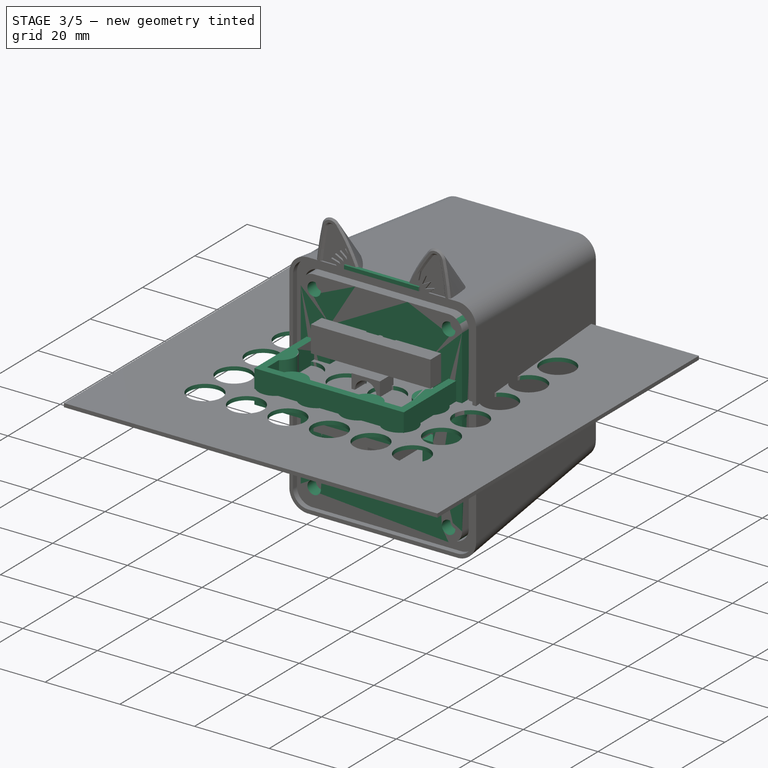
[diagram: stage 3 of 5 — iso view after this stage's code; geometry added in this stage tinted green]
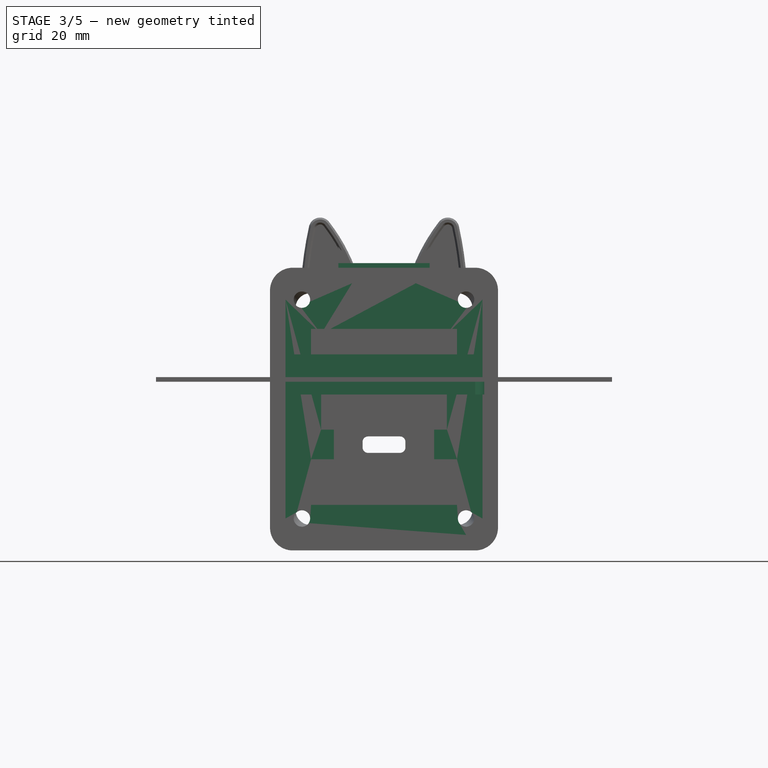
[diagram: stage 3 of 5 — front view after this stage's code; geometry added in this stage tinted green]
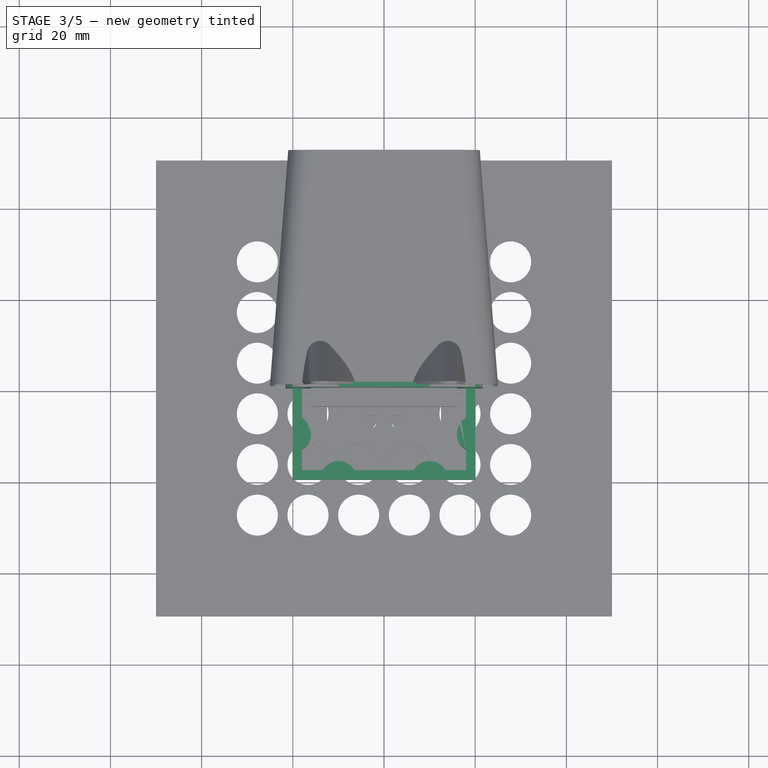
[diagram: stage 3 of 5 — top view after this stage's code; geometry added in this stage tinted green]
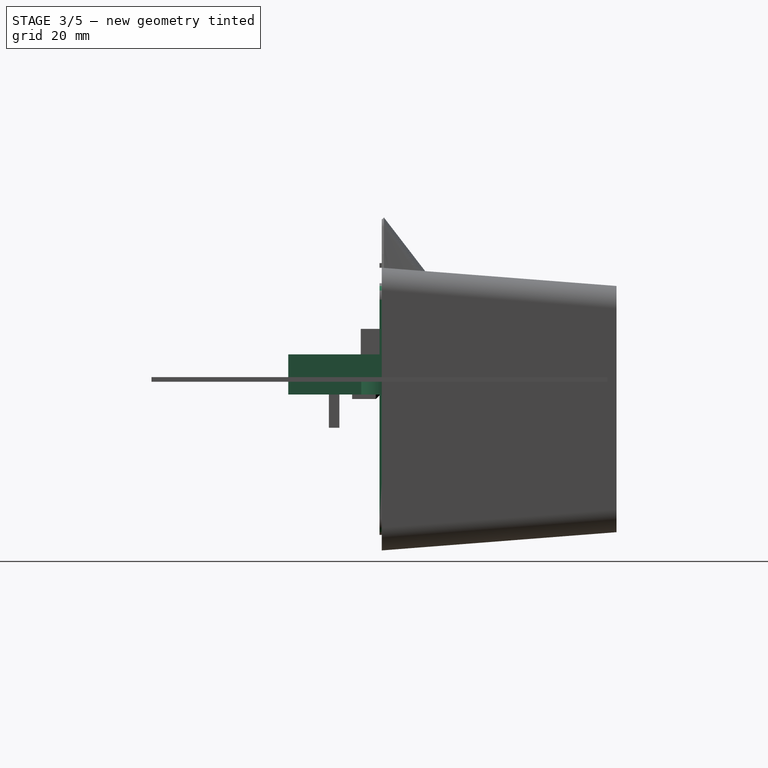
[diagram: stage 3 of 5 — right view after this stage's code; geometry added in this stage tinted green]
FEATURE [Sketcher::SketchObject] Sketch042
  AttachmentOffset = pos=(0,0,-1) rot=(0,0,1;0rad)
  FullyConstrained = true
  MapMode = 5
  Placement = pos=(0,1,2e-16) rot=(1,0,0;1.5708rad)
  Support = -> [XZ_Plane031]
  sketch-geometry (11):
    g0: ArcOfCircle CenterX=61.6726 CenterY=16.7694 CenterZ=0 NormalX=0 NormalY=0 NormalZ=1 AngleXU=0 Radius=80 StartAngle=2.924 EndAngle=3.05109
    g1: ArcOfCircle CenterX=-43.6827 CenterY=10.583 CenterZ=0 NormalX=0 NormalY=0 NormalZ=1 AngleXU=0 Radius=40 StartAngle=0.342056 EndAngle=0.657475
    g2: ArcOfCircle CenterX=-14 CenterY=33.5 CenterZ=0 NormalX=0 NormalY=0 NormalZ=1 AngleXU=0 Radius=2.5 StartAngle=0.657475 EndAngle=2.924
    g3: LineSegment StartX=-14 StartY=36 StartZ=0 EndX=-14 EndY=24 EndZ=0
    g4: ArcOfCircle CenterX=-14 CenterY=33.5 CenterZ=0 NormalX=0 NormalY=0 NormalZ=1 AngleXU=0 Radius=1 StartAngle=0.657475 EndAngle=2.924
    g5: LineSegment StartX=-7.5962 StartY=24 StartZ=0 EndX=-6 EndY=24 EndZ=0
    g6: LineSegment StartX=-18 StartY=24 StartZ=0 EndX=-16.4937 EndY=24 EndZ=0
    g7: LineSegment StartX=-16.4937 StartY=24 StartZ=0 EndX=-7.5962 EndY=24 EndZ=0
    g8: ArcOfCircle CenterX=61.6726 CenterY=16.7694 CenterZ=0 NormalX=0 NormalY=0 NormalZ=1 AngleXU=0 Radius=78.5 StartAngle=2.924 EndAngle=3.04935
    g9: ArcOfCircle CenterX=-43.6827 CenterY=10.583 CenterZ=0 NormalX=0 NormalY=0 NormalZ=1 AngleXU=0 Radius=38.5 StartAngle=0.355963 EndAngle=0.657475
    g10: LineSegment StartX=-14.9764 StartY=33.7159 StartZ=0 EndX=-16.4411 EndY=34.0397 EndZ=0
  constraints (31):
    c: Radius(g0) = 80
    c: Radius(g1) = 40
    c: Coincident(g6,g0)
    c: Coincident(g5,g1)
    c: DistanceY(g-1,g1) = 24
    c: DistanceX(g1,g-1) = 6
    c: DistanceX(g6,g5) = 12
    c: Tangent(g2,g0) = -1.5708
    c: Tangent(g2,g1) = -1.5708
    c: Radius(g2) = 2.5
    c: PointOnObject(g3,g2)
    c: Vertical(g3)
    c: Perpendicular(g2,g3)
    c: DistanceY(g3,g3) = 12
    c: DistanceX(g0,g3) = 4
    c: Coincident(g4,g2)
    c: Coincident(g7,g5)
    c: Horizontal(g5)
    c: Coincident(g6,g7)
    c: Horizontal(g6)
    c: Horizontal(g7)
    c: PointOnObject(g3,g6)
    c: Coincident(g8,g0)
    c: Coincident(g8,g6)
    c: Coincident(g9,g1)
    c: Coincident(g9,g5)
    c: Tangent(g8,g4) = -1.5708
    c: Tangent(g9,g4) = -1.5708
    c: Coincident(g10,g4)
    c: Coincident(g10,g0)
    c: Distance(g10) = 1.5
FEATURE [PartDesign::AdditiveBox] Box008
  AttacherType = Attacher::AttachEngine3D
  AttachmentOffset = pos=(-10,25,-1) rot=(0,0,1;0rad)
  Height = 1
  Length = 20
  MapMode = 5
  Placement = pos=(-10,1,25) rot=(1,0,0;1.5708rad)
  Support = -> [XZ_Plane031]
  Width = 1
FEATURE [PartDesign::Pad] Pad014
  BaseFeature = -> Box008
  Direction = (0,-1,2e-16)
  Length = 0.2
  Length2 = 10
  Placement = pos=(-10,1,25) rot=(1,0,0;1.5708rad)
  Profile = -> Sketch042
  ReferenceAxis = -> Sketch042 [N_Axis]
  Reversed = true
  Type = 0
FEATURE [PartDesign::Body] Body010  label="EarColor"
  Group = -> [Box008,Sketch042,Pad014,Mirrored007]
  Origin = -> Origin027
  Tip = -> Mirrored007
FEATURE [Part::Box] Box009  label="Cube002"
  AttacherType = Attacher::AttachEngine3D
  Height = 1
  Length = 20
  Placement = pos=(-10,0,25) rot=(0,0,1;0rad)
  Width = 1
FEATURE [Sketcher::SketchObject] Sketch046
  FullyConstrained = true
  MapMode = 5
  Support = -> [XY_Plane032]
  sketch-geometry (52):
    g0: LineSegment StartX=12.5 StartY=9.5 StartZ=0 EndX=12.5 EndY=-9.5 EndZ=0
    g1: LineSegment StartX=-12.5 StartY=-9.5 StartZ=0 EndX=-12.5 EndY=9.5 EndZ=0
    g2: LineSegment StartX=-18 StartY=18 StartZ=0 EndX=-13.4641 EndY=18 EndZ=0
    g3: LineSegment StartX=-13.4641 StartY=18 StartZ=0 EndX=-6.5359 EndY=18 EndZ=0
    g4: LineSegment StartX=-6.5359 StartY=18 StartZ=0 EndX=6.5359 EndY=18 EndZ=0
    g5: LineSegment StartX=6.5359 StartY=18 StartZ=0 EndX=13.4641 EndY=18 EndZ=0
    g6: LineSegment StartX=13.4641 StartY=18 StartZ=0 EndX=18 EndY=18 EndZ=0
    g7: LineSegment StartX=18 StartY=18 StartZ=0 EndX=18 EndY=13.4641 EndZ=0
    g8: LineSegment StartX=18 StartY=13.4641 StartZ=0 EndX=18 EndY=6.5359 EndZ=0
    g9: LineSegment StartX=18 StartY=6.5359 StartZ=0 EndX=18 EndY=-6.5359 EndZ=0
    g10: LineSegment StartX=18 StartY=-6.5359 StartZ=0 EndX=18 EndY=-13.4641 EndZ=0
    g11: LineSegment StartX=18 StartY=-13.4641 StartZ=0 EndX=18 EndY=-18 EndZ=0
    g12: LineSegment StartX=18 StartY=-18 StartZ=0 EndX=13.4641 EndY=-18 EndZ=0
    g13: LineSegment StartX=13.4641 StartY=-18 StartZ=0 EndX=6.5359 EndY=-18 EndZ=0
    g14: LineSegment StartX=6.5359 StartY=-18 StartZ=0 EndX=-6.5359 EndY=-18 EndZ=0
    g15: LineSegment StartX=-6.5359 StartY=-18 StartZ=0 EndX=-13.4641 EndY=-18 EndZ=0
    g16: LineSegment StartX=-13.4641 StartY=-18 StartZ=0 EndX=-18 EndY=-18 EndZ=0
    g17: LineSegment StartX=-18 StartY=-18 StartZ=0 EndX=-18 EndY=-13.4641 EndZ=0
    g18: LineSegment StartX=-18 StartY=-13.4641 StartZ=0 EndX=-18 EndY=-6.5359 EndZ=0
    g19: LineSegment StartX=-18 StartY=-6.5359 StartZ=0 EndX=-18 EndY=6.5359 EndZ=0
    g20: LineSegment StartX=-18 StartY=6.5359 StartZ=0 EndX=-18 EndY=13.4641 EndZ=0
    g21: LineSegment StartX=-18 StartY=13.4641 StartZ=0 EndX=-18 EndY=18 EndZ=0
    g22: ArcOfCircle CenterX=-10 CenterY=20 CenterZ=0 NormalX=0 NormalY=0 NormalZ=1 AngleXU=0 Radius=4 StartAngle=3.66519 EndAngle=5.75959
    g23: ArcOfCircle CenterX=10 CenterY=20 CenterZ=0 NormalX=0 NormalY=0 NormalZ=1 AngleXU=0 Radius=4 StartAngle=3.66519 EndAngle=5.75959
    g24: ArcOfCircle CenterX=20 CenterY=10 CenterZ=0 NormalX=0 NormalY=0 NormalZ=1 AngleXU=0 Radius=4 StartAngle=2.0944 EndAngle=4.18879
    g25: ArcOfCircle CenterX=20 CenterY=-10 CenterZ=0 NormalX=0 NormalY=0 NormalZ=1 AngleXU=0 Radius=4 StartAngle=2.0944 EndAngle=4.18879
    g26: ArcOfCircle CenterX=10 CenterY=-20 CenterZ=0 NormalX=0 NormalY=0 NormalZ=1 AngleXU=0 Radius=4 StartAngle=0.523599 EndAngle=2.61799
    g27: ArcOfCircle CenterX=-10 CenterY=-20 CenterZ=0 NormalX=0 NormalY=0 NormalZ=1 AngleXU=0 Radius=4 StartAngle=0.523599 EndAngle=2.61799
    g28: ArcOfCircle CenterX=-20 CenterY=-10 CenterZ=0 NormalX=0 NormalY=0 NormalZ=1 AngleXU=0 Radius=4 StartAngle=5.23599 EndAngle=7.33038
    g29: ArcOfCircle CenterX=-20 CenterY=10 CenterZ=0 NormalX=0 NormalY=0 NormalZ=1 AngleXU=0 Radius=4 StartAngle=5.23599 EndAngle=7.33038
    g30: LineSegment StartX=-10 StartY=18 StartZ=0 EndX=-10 EndY=16 EndZ=0
    g31: LineSegment StartX=-16 StartY=16 StartZ=0 EndX=16 EndY=16 EndZ=0
    g32: LineSegment StartX=16 StartY=16 StartZ=0 EndX=16 EndY=-16 EndZ=0
    g33: LineSegment StartX=16 StartY=-16 StartZ=0 EndX=-16 EndY=-16 EndZ=0
    g34: LineSegment StartX=-16 StartY=-16 StartZ=0 EndX=-16 EndY=16 EndZ=0
    g35: LineSegment StartX=-12.5 StartY=9.5 StartZ=0 EndX=-10.5 EndY=9.5 EndZ=0
    g36: LineSegment StartX=-10.5 StartY=9.5 StartZ=0 EndX=10.5 EndY=9.5 EndZ=0
    g37: LineSegment StartX=10.5 StartY=9.5 StartZ=0 EndX=12.5 EndY=9.5 EndZ=0
    g38: LineSegment StartX=12.5 StartY=-9.5 StartZ=0 EndX=10.5 EndY=-9.5 EndZ=0
    g39: LineSegment StartX=10.5 StartY=-9.5 StartZ=0 EndX=-10.5 EndY=-9.5 EndZ=0
    g40: LineSegment StartX=-10.5 StartY=-9.5 StartZ=0 EndX=-12.5 EndY=-9.5 EndZ=0
    g41: LineSegment StartX=-10.5 StartY=9.5 StartZ=0 EndX=-10.5 EndY=-9.5 EndZ=0
    g42: LineSegment StartX=10.5 StartY=-9.5 StartZ=0 EndX=10.5 EndY=9.5 EndZ=0
    g43: LineSegment StartX=-20 StartY=20 StartZ=0 EndX=20 EndY=20 EndZ=0
    g44: LineSegment StartX=20 StartY=-20 StartZ=0 EndX=-20 EndY=-20 EndZ=0
    g45: LineSegment StartX=-20 StartY=-20 StartZ=0 EndX=-20 EndY=20 EndZ=0
    g46: Circle CenterX=0 CenterY=-9.5 CenterZ=0 NormalX=0 NormalY=0 NormalZ=1 AngleXU=0 Radius=2.5
    g47: LineSegment StartX=20 StartY=20 StartZ=0 EndX=20 EndY=4 EndZ=0
    g48: LineSegment StartX=20 StartY=4 StartZ=0 EndX=20 EndY=-4 EndZ=0
    g49: LineSegment StartX=20 StartY=-4 StartZ=0 EndX=20 EndY=-20 EndZ=0
    g50: ArcOfCircle CenterX=17 CenterY=0 CenterZ=0 NormalX=0 NormalY=0 NormalZ=1 AngleXU=0 Radius=5 StartAngle=5.35589 EndAngle=7.21048
    g51: LineSegment StartX=20 StartY=0 StartZ=0 EndX=22 EndY=0 EndZ=0
  constraints (152):
    c: Coincident(g37,g0)
    c: Coincident(g0,g38)
    c: Coincident(g40,g1)
    c: Coincident(g1,g35)
    c: Vertical(g0)
    c: Vertical(g1)
    c: DistanceX(g35,g37) = 25
    c: DistanceY(g1,g1) = 19
    c: Symmetric(g35,g0,g-1)
    c: Coincident(g6,g7)
    c: Coincident(g11,g12)
    c: Coincident(g16,g17)
    c: Coincident(g21,g2)
    c: Symmetric(g2,g11,g-1)
    c: Coincident(g2,g3)
    c: Horizontal(g2)
    c: Coincident(g3,g4)
    c: Horizontal(g3)
    c: Coincident(g4,g5)
    c: Horizontal(g4)
    c: Coincident(g5,g6)
    c: Horizontal(g5)
    c: Horizontal(g6)
    c: Coincident(g7,g8)
    c: Vertical(g7)
    c: Coincident(g8,g9)
    c: Vertical(g8)
    c: Coincident(g9,g10)
    c: Vertical(g9)
    c: Coincident(g10,g11)
    c: Vertical(g10)
    c: Vertical(g11)
    c: Coincident(g12,g13)
    c: Horizontal(g12)
    c: Coincident(g13,g14)
    c: Horizontal(g13)
    c: Coincident(g14,g15)
    c: Horizontal(g14)
    c: Coincident(g15,g16)
    c: Horizontal(g15)
    c: Horizontal(g16)
    c: Coincident(g17,g18)
    c: Vertical(g17)
    c: Coincident(g18,g19)
    c: Vertical(g18)
    c: Coincident(g19,g20)
    c: Vertical(g19)
    c: Coincident(g20,g21)
    c: Vertical(g20)
    c: Vertical(g21)
    c: Coincident(g22,g2)
    c: Coincident(g22,g4)
    c: Coincident(g23,g4)
    c: Coincident(g23,g6)
    c: Coincident(g24,g7)
    c: Coincident(g24,g9)
    c: Coincident(g25,g9)
    c: Coincident(g25,g11)
    c: Coincident(g26,g12)
    c: Coincident(g26,g14)
    c: Coincident(g27,g14)
    c: Coincident(g27,g16)
    c: Coincident(g28,g17)
    c: Coincident(g28,g19)
    c: Coincident(g29,g19)
    c: Coincident(g29,g21)
    c: Equal(g20,g18)
    c: Equal(g18,g15)
    c: Equal(g15,g13)
    c: Equal(g13,g10)
    c: Equal(g10,g8)
    c: Equal(g8,g5)
    c: Equal(g5,g3)
    c: Equal(g21,g2)
    c: Equal(g2,g6)
    c: Equal(g6,g7)
    c: Equal(g7,g11)
    c: Equal(g11,g12)
    c: Equal(g12,g16)
    c: Equal(g16,g17)
    c: Equal(g4,g19)
    c: PointOnObject(g30,g3)
    c: PointOnObject(g30,g22)
    c: Vertical(g30)
    c: Perpendicular(g22,g30)
    c: DistanceY(g30,g30) = 2
    c: Equal(g29,g22)
    c: Equal(g22,g23)
    c: Equal(g23,g24)
    c: Equal(g24,g25)
    c: Equal(g25,g26)
    c: Equal(g26,g27)
    c: Equal(g27,g28)
    c: Coincident(g31,g32)
    c: Coincident(g32,g33)
    c: Coincident(g33,g34)
    c: Coincident(g34,g31)
    c: Horizontal(g31)
    c: Horizontal(g33)
    c: Vertical(g32)
    c: Vertical(g34)
    c: DistanceX(g31,g31) = 32
    c: Symmetric(g31,g32,g-1)
    c: Equal(g31,g34)
    c: PointOnObject(g30,g31)
    c: Radius(g22) = 4
    c: DistanceX(g31,g30) = 6
    c: Coincident(g35,g36)
    c: Horizontal(g35)
    c: Coincident(g36,g37)
    c: Horizontal(g36)
    c: Horizontal(g37)
    c: Coincident(g38,g39)
    c: Horizontal(g38)
    c: Coincident(g39,g40)
    c: Horizontal(g39)
    c: Horizontal(g40)
    c: Coincident(g41,g35)
    c: Coincident(g41,g40)
    c: Vertical(g41)
    c: Coincident(g42,g38)
    c: Coincident(g42,g37)
    c: Vertical(g42)
    c: Equal(g35,g37)
    c: DistanceX(g35,g35) = 2
    c: Coincident(g43,g47)
    c: Coincident(g49,g44)
    c: Coincident(g44,g45)
    c: Coincident(g45,g43)
    c: Horizontal(g43)
    c: Horizontal(g44)
    c: Vertical(g45)
    c: Symmetric(g43,g49,g-1)
    c: DistanceX(g43,g2) = 2
    c: Equal(g45,g43)
    c: PointOnObject(g46,g-2)
    c: Diameter(g46) = 5
    c: PointOnObject(g46,g39)
    c: Coincident(g47,g48)
    c: Vertical(g47)
    c: Coincident(g48,g49)
    c: Vertical(g48)
    c: Vertical(g49)
    c: PointOnObject(g50,g-1)
    c: Coincident(g50,g47)
    c: Coincident(g50,g49)
    c: PointOnObject(g51,g48)
    c: PointOnObject(g51,g50)
    c: Horizontal(g51)
    c: Perpendicular(g50,g51)
    c: DistanceX(g51,g51) = 2
    c: DistanceY(g48,g48) = 8
FEATURE [Sketcher::SketchObject] Sketch047
  FullyConstrained = true
  MapMode = 5
  Support = -> [XY_Plane032]
  sketch-geometry (47):
    g0: LineSegment StartX=12.5 StartY=9.5 StartZ=0 EndX=12.5 EndY=-9.5 EndZ=0
    g1: LineSegment StartX=-12.5 StartY=-9.5 StartZ=0 EndX=-12.5 EndY=9.5 EndZ=0
    g2: LineSegment StartX=-18 StartY=18 StartZ=0 EndX=-13.4641 EndY=18 EndZ=0
    g3: LineSegment StartX=-13.4641 StartY=18 StartZ=0 EndX=-6.5359 EndY=18 EndZ=0
    g4: LineSegment StartX=-6.5359 StartY=18 StartZ=0 EndX=6.5359 EndY=18 EndZ=0
    g5: LineSegment StartX=6.5359 StartY=18 StartZ=0 EndX=13.4641 EndY=18 EndZ=0
    g6: LineSegment StartX=13.4641 StartY=18 StartZ=0 EndX=18 EndY=18 EndZ=0
    g7: LineSegment StartX=18 StartY=18 StartZ=0 EndX=18 EndY=13.4641 EndZ=0
    g8: LineSegment StartX=18 StartY=13.4641 StartZ=0 EndX=18 EndY=6.5359 EndZ=0
    g9: LineSegment StartX=18 StartY=6.5359 StartZ=0 EndX=18 EndY=-6.5359 EndZ=0
    g10: LineSegment StartX=18 StartY=-6.5359 StartZ=0 EndX=18 EndY=-13.4641 EndZ=0
    g11: LineSegment StartX=18 StartY=-13.4641 StartZ=0 EndX=18 EndY=-18 EndZ=0
    g12: LineSegment StartX=18 StartY=-18 StartZ=0 EndX=13.4641 EndY=-18 EndZ=0
    g13: LineSegment StartX=13.4641 StartY=-18 StartZ=0 EndX=6.5359 EndY=-18 EndZ=0
    g14: LineSegment StartX=6.5359 StartY=-18 StartZ=0 EndX=-6.5359 EndY=-18 EndZ=0
    g15: LineSegment StartX=-6.5359 StartY=-18 StartZ=0 EndX=-13.4641 EndY=-18 EndZ=0
    g16: LineSegment StartX=-13.4641 StartY=-18 StartZ=0 EndX=-18 EndY=-18 EndZ=0
    g17: LineSegment StartX=-18 StartY=-18 StartZ=0 EndX=-18 EndY=-13.4641 EndZ=0
    g18: LineSegment StartX=-18 StartY=-13.4641 StartZ=0 EndX=-18 EndY=-6.5359 EndZ=0
    g19: LineSegment StartX=-18 StartY=-6.5359 StartZ=0 EndX=-18 EndY=6.5359 EndZ=0
    g20: LineSegment StartX=-18 StartY=6.5359 StartZ=0 EndX=-18 EndY=13.4641 EndZ=0
    g21: LineSegment StartX=-18 StartY=13.4641 StartZ=0 EndX=-18 EndY=18 EndZ=0
    g22: ArcOfCircle CenterX=-10 CenterY=20 CenterZ=0 NormalX=0 NormalY=0 NormalZ=1 AngleXU=0 Radius=4 StartAngle=3.66519 EndAngle=5.75959
    g23: ArcOfCircle CenterX=10 CenterY=20 CenterZ=0 NormalX=0 NormalY=0 NormalZ=1 AngleXU=0 Radius=4 StartAngle=3.66519 EndAngle=5.75959
    g24: ArcOfCircle CenterX=20 CenterY=10 CenterZ=0 NormalX=0 NormalY=0 NormalZ=1 AngleXU=0 Radius=4 StartAngle=2.0944 EndAngle=4.18879
    g25: ArcOfCircle CenterX=20 CenterY=-10 CenterZ=0 NormalX=0 NormalY=0 NormalZ=1 AngleXU=0 Radius=4 StartAngle=2.0944 EndAngle=4.18879
    g26: ArcOfCircle CenterX=10 CenterY=-20 CenterZ=0 NormalX=0 NormalY=0 NormalZ=1 AngleXU=0 Radius=4 StartAngle=0.523599 EndAngle=2.61799
    g27: ArcOfCircle CenterX=-10 CenterY=-20 CenterZ=0 NormalX=0 NormalY=0 NormalZ=1 AngleXU=0 Radius=4 StartAngle=0.523599 EndAngle=2.61799
    g28: ArcOfCircle CenterX=-20 CenterY=-10 CenterZ=0 NormalX=0 NormalY=0 NormalZ=1 AngleXU=0 Radius=4 StartAngle=5.23599 EndAngle=7.33038
    g29: ArcOfCircle CenterX=-20 CenterY=10 CenterZ=0 NormalX=0 NormalY=0 NormalZ=1 AngleXU=0 Radius=4 StartAngle=5.23599 EndAngle=7.33038
    g30: LineSegment StartX=-10 StartY=18 StartZ=0 EndX=-10 EndY=16 EndZ=0
    g31: LineSegment StartX=-16 StartY=16 StartZ=0 EndX=16 EndY=16 EndZ=0
    g32: LineSegment StartX=16 StartY=16 StartZ=0 EndX=16 EndY=-16 EndZ=0
    g33: LineSegment StartX=16 StartY=-16 StartZ=0 EndX=-16 EndY=-16 EndZ=0
    g34: LineSegment StartX=-16 StartY=-16 StartZ=0 EndX=-16 EndY=16 EndZ=0
    g35: LineSegment StartX=-12.5 StartY=9.5 StartZ=0 EndX=-10.5 EndY=9.5 EndZ=0
    g36: LineSegment StartX=-10.5 StartY=9.5 StartZ=0 EndX=10.5 EndY=9.5 EndZ=0
    g37: LineSegment StartX=10.5 StartY=9.5 StartZ=0 EndX=12.5 EndY=9.5 EndZ=0
    g38: LineSegment StartX=12.5 StartY=-9.5 StartZ=0 EndX=10.5 EndY=-9.5 EndZ=0
    g39: LineSegment StartX=10.5 StartY=-9.5 StartZ=0 EndX=-10.5 EndY=-9.5 EndZ=0
    g40: LineSegment StartX=-10.5 StartY=-9.5 StartZ=0 EndX=-12.5 EndY=-9.5 EndZ=0
    g41: LineSegment StartX=-10.5 StartY=9.5 StartZ=0 EndX=-10.5 EndY=-9.5 EndZ=0
    g42: LineSegment StartX=10.5 StartY=-9.5 StartZ=0 EndX=10.5 EndY=9.5 EndZ=0
    g43: LineSegment StartX=-20 StartY=20 StartZ=0 EndX=20 EndY=20 EndZ=0
    g44: LineSegment StartX=20 StartY=20 StartZ=0 EndX=20 EndY=-20 EndZ=0
    g45: LineSegment StartX=20 StartY=-20 StartZ=0 EndX=-20 EndY=-20 EndZ=0
    g46: LineSegment StartX=-20 StartY=-20 StartZ=0 EndX=-20 EndY=20 EndZ=0
  constraints (136):
    c: Coincident(g37,g0)
    c: Coincident(g0,g38)
    c: Coincident(g40,g1)
    c: Coincident(g1,g35)
    c: Vertical(g0)
    c: Vertical(g1)
    c: DistanceX(g35,g37) = 25
    c: DistanceY(g1,g1) = 19
    c: Symmetric(g35,g0,g-1)
    c: Coincident(g6,g7)
    c: Coincident(g11,g12)
    c: Coincident(g16,g17)
    c: Coincident(g21,g2)
    c: Symmetric(g2,g11,g-1)
    c: Coincident(g2,g3)
    c: Horizontal(g2)
    c: Coincident(g3,g4)
    c: Horizontal(g3)
    c: Coincident(g4,g5)
    c: Horizontal(g4)
    c: Coincident(g5,g6)
    c: Horizontal(g5)
    c: Horizontal(g6)
    c: Coincident(g7,g8)
    c: Vertical(g7)
    c: Coincident(g8,g9)
    c: Vertical(g8)
    c: Coincident(g9,g10)
    c: Vertical(g9)
    c: Coincident(g10,g11)
    c: Vertical(g10)
    c: Vertical(g11)
    c: Coincident(g12,g13)
    c: Horizontal(g12)
    c: Coincident(g13,g14)
    c: Horizontal(g13)
    c: Coincident(g14,g15)
    c: Horizontal(g14)
    c: Coincident(g15,g16)
    c: Horizontal(g15)
    c: Horizontal(g16)
    c: Coincident(g17,g18)
    c: Vertical(g17)
    c: Coincident(g18,g19)
    c: Vertical(g18)
    c: Coincident(g19,g20)
    c: Vertical(g19)
    c: Coincident(g20,g21)
    c: Vertical(g20)
    c: Vertical(g21)
    c: Coincident(g22,g2)
    c: Coincident(g22,g4)
    c: Coincident(g23,g4)
    c: Coincident(g23,g6)
    c: Coincident(g24,g7)
    c: Coincident(g24,g9)
    c: Coincident(g25,g9)
    c: Coincident(g25,g11)
    c: Coincident(g26,g12)
    c: Coincident(g26,g14)
    c: Coincident(g27,g14)
    c: Coincident(g27,g16)
    c: Coincident(g28,g17)
    c: Coincident(g28,g19)
    c: Coincident(g29,g19)
    c: Coincident(g29,g21)
    c: Equal(g20,g18)
    c: Equal(g18,g15)
    c: Equal(g15,g13)
    c: Equal(g13,g10)
    c: Equal(g10,g8)
    c: Equal(g8,g5)
    c: Equal(g5,g3)
    c: Equal(g21,g2)
    c: Equal(g2,g6)
    c: Equal(g6,g7)
    c: Equal(g7,g11)
    c: Equal(g11,g12)
    c: Equal(g12,g16)
    c: Equal(g16,g17)
    c: Equal(g4,g19)
    c: PointOnObject(g30,g3)
    c: PointOnObject(g30,g22)
    c: Vertical(g30)
    c: Perpendicular(g22,g30)
    c: DistanceY(g30,g30) = 2
    c: Equal(g29,g22)
    c: Equal(g22,g23)
    c: Equal(g23,g24)
    c: Equal(g24,g25)
    c: Equal(g25,g26)
    c: Equal(g26,g27)
    c: Equal(g27,g28)
    c: Coincident(g31,g32)
    c: Coincident(g32,g33)
    c: Coincident(g33,g34)
    c: Coincident(g34,g31)
    c: Horizontal(g31)
    c: Horizontal(g33)
    c: Vertical(g32)
    c: Vertical(g34)
    c: DistanceX(g31,g31) = 32
    c: Symmetric(g31,g32,g-1)
    c: Equal(g31,g34)
    c: PointOnObject(g30,g31)
    c: Radius(g22) = 4
    c: DistanceX(g31,g30) = 6
    c: Coincident(g35,g36)
    c: Horizontal(g35)
    c: Coincident(g36,g37)
    c: Horizontal(g36)
    c: Horizontal(g37)
    c: Coincident(g38,g39)
    c: Horizontal(g38)
    c: Coincident(g39,g40)
    c: Horizontal(g39)
    c: Horizontal(g40)
    c: Coincident(g41,g35)
    c: Coincident(g41,g40)
    c: Vertical(g41)
    c: Coincident(g42,g38)
    c: Coincident(g42,g37)
    c: Vertical(g42)
    c: Equal(g35,g37)
    c: DistanceX(g35,g35) = 2
    c: Coincident(g43,g44)
    c: Coincident(g44,g45)
    c: Coincident(g45,g46)
    c: Coincident(g46,g43)
    c: Horizontal(g43)
    c: Horizontal(g45)
    c: Vertical(g44)
    c: Vertical(g46)
    c: Symmetric(g43,g44,g-1)
    c: DistanceX(g43,g2) = 2
    c: Equal(g46,g43)
FEATURE [PartDesign::Pad] Pad016
  Direction = (0,0,1)
  Length = 6
  Length2 = 10
  Profile = -> Sketch047
  ReferenceAxis = -> Sketch047 [N_Axis]
  Type = 0
FEATURE [PartDesign::Pad] Pad017
  BaseFeature = -> Pad016
  Direction = (0,0,1)
  Length = 2.8
  Length2 = 10
  Profile = -> Sketch046
  ReferenceAxis = -> Sketch046 [N_Axis]
  Reversed = true
  Type = 0
FEATURE [PartDesign::Body] Body014
  Group = -> [Sketch046,Sketch047,Pad016,Pad017]
  Origin = -> Origin032
  Tip = -> Pad017
FEATURE [App::Part] Part009  label="ClippingJig"
  Group = -> [Body014]
  Origin = -> Origin033
FEATURE [Sketcher::SketchObject] Sketch048
  FullyConstrained = true
  MapMode = 5
  Support = -> [XY_Plane035]
  sketch-geometry (4):
    g0: LineSegment StartX=-50 StartY=50 StartZ=0 EndX=50 EndY=50 EndZ=0
    g1: LineSegment StartX=50 StartY=50 StartZ=0 EndX=50 EndY=-50 EndZ=0
    g2: LineSegment StartX=50 StartY=-50 StartZ=0 EndX=-50 EndY=-50 EndZ=0
    g3: LineSegment StartX=-50 StartY=-50 StartZ=0 EndX=-50 EndY=50 EndZ=0
  constraints (11):
    c: Coincident(g0,g1)
    c: Coincident(g1,g2)
    c: Coincident(g2,g3)
    c: Coincident(g3,g0)
    c: Horizontal(g0)
    c: Horizontal(g2)
    c: Vertical(g1)
    c: Vertical(g3)
    c: Symmetric(g0,g1,g-1)
    c: Equal(g3,g0)
    c: DistanceX(g0,g0) = 100
FEATURE [PartDesign::Pad] Pad018
  Direction = (0,0,1)
  Length = 1
  Length2 = 10
  Profile = -> Sketch048
  ReferenceAxis = -> Sketch048 [N_Axis]
  Type = 0
FEATURE [Sketcher::SketchObject] Sketch049
  ExternalGeometry = -> [Sketch048]
  FullyConstrained = true
  MapMode = 5
  Support = -> [XY_Plane035]
  sketch-geometry (16):
    g0: Circle CenterX=-27.7778 CenterY=27.7778 CenterZ=0 NormalX=0 NormalY=0 NormalZ=1 AngleXU=0 Radius=4.5
    g1: LineSegment StartX=-50 StartY=50 StartZ=0 EndX=50 EndY=50 EndZ=0
    g2: LineSegment StartX=50 StartY=50 StartZ=0 EndX=50 EndY=-50 EndZ=0
    g3: LineSegment StartX=50 StartY=-50 StartZ=0 EndX=-50 EndY=-50 EndZ=0
    g4: LineSegment StartX=-50 StartY=-50 StartZ=0 EndX=-50 EndY=50 EndZ=0
    g5: LineSegment StartX=-50 StartY=27.7778 StartZ=0 EndX=-38.8889 EndY=27.7778 EndZ=0
    g6: LineSegment StartX=-38.8889 StartY=27.7778 StartZ=0 EndX=-27.7778 EndY=27.7778 EndZ=0
    g7: LineSegment StartX=-27.7778 StartY=27.7778 StartZ=0 EndX=-16.6667 EndY=27.7778 EndZ=0
    g8: LineSegment StartX=-16.6667 StartY=27.7778 StartZ=0 EndX=-5.55556 EndY=27.7778 EndZ=0
    g9: LineSegment StartX=-5.55556 StartY=27.7778 StartZ=0 EndX=5.55556 EndY=27.7778 EndZ=0
    g10: LineSegment StartX=5.55556 StartY=27.7778 StartZ=0 EndX=16.6667 EndY=27.7778 EndZ=0
    g11: LineSegment StartX=16.6667 StartY=27.7778 StartZ=0 EndX=27.7778 EndY=27.7778 EndZ=0
    g12: LineSegment StartX=27.7778 StartY=27.7778 StartZ=0 EndX=38.8889 EndY=27.7778 EndZ=0
    g13: LineSegment StartX=38.8889 StartY=27.7778 StartZ=0 EndX=50 EndY=27.7778 EndZ=0
    g14: LineSegment StartX=-27.7778 StartY=27.7778 StartZ=0 EndX=-27.7778 EndY=38.8889 EndZ=0
    g15: LineSegment StartX=-27.7778 StartY=38.8889 StartZ=0 EndX=-27.7778 EndY=50 EndZ=0
  constraints (48):
    c: Coincident(g1,g2)
    c: Coincident(g2,g3)
    c: Coincident(g3,g4)
    c: Coincident(g4,g1)
    c: Horizontal(g1)
    c: Horizontal(g3)
    c: Vertical(g2)
    c: Vertical(g4)
    c: Coincident(g1,g-3)
    c: Coincident(g2,g-4)
    c: PointOnObject(g5,g4)
    c: Horizontal(g5)
    c: Coincident(g5,g6)
    c: Horizontal(g6)
    c: Coincident(g6,g7)
    c: Horizontal(g7)
    c: Coincident(g7,g8)
    c: Horizontal(g8)
    c: Coincident(g8,g9)
    c: Horizontal(g9)
    c: Coincident(g9,g10)
    c: Horizontal(g10)
    c: Coincident(g10,g11)
    c: Horizontal(g11)
    c: Coincident(g11,g12)
    c: Horizontal(g12)
    c: Coincident(g12,g13)
    c: PointOnObject(g13,g2)
    c: Horizontal(g13)
    c: Equal(g13,g12)
    c: Equal(g12,g11)
    c: Equal(g11,g10)
    c: Equal(g10,g9)
    c: Equal(g9,g8)
    c: Equal(g8,g7)
    c: Equal(g7,g6)
    c: Equal(g6,g5)
    c: Diameter(g0) = 9
    c: DistanceX(g5,g5) = 11.1111
    c: Coincident(g14,g6)
    c: Vertical(g14)
    c: Coincident(g15,g14)
    c: PointOnObject(g15,g1)
    c: Vertical(g15)
    c: Equal(g15,g14)
    c: Equal(g14,g6)
    c: Coincident(g0,g6)
    c: DistanceX(g0,g11) = 55.5556
FEATURE [PartDesign::Pocket] Pocket011
  BaseFeature = -> Pad018
  Direction = (0,0,-1)
  Length = 5
  Length2 = 5
  Profile = -> Sketch049
  ReferenceAxis = -> Sketch049 [N_Axis]
  Reversed = true
  Type = 1
FEATURE [PartDesign::LinearPattern] LinearPattern
  Direction = -> Sketch049 [H_Axis]
  Length = 55.5556
  Occurrences = 6
FEATURE [PartDesign::LinearPattern] LinearPattern001
  Direction = -> Sketch049 [V_Axis]
  Length = 55.5556
  Occurrences = 6
  Reversed = true
FEATURE [PartDesign::MultiTransform] MultiTransform001
  BaseFeature = -> Pocket011
  Originals = -> [Pocket011]
  Transformations = -> [LinearPattern,LinearPattern001]
FEATURE [PartDesign::MultiTransform] MultiTransform002
  BaseFeature = -> Pocket012
  Originals = -> [Pocket012]
  Transformations = -> [LinearPattern002,LinearPattern003]
FEATURE [PartDesign::Pocket] Pocket006
  BaseFeature = -> Pad020
  Direction = (0,1,2e-16)
  Length = 5
  Length2 = 5
  Placement = pos=(-15,7e-15,-33) rot=(1,0,0;1.5708rad)
  Profile = -> Sketch021
  ReferenceAxis = -> Sketch021 [N_Axis]
  Type = 1
FEATURE [PartDesign::Pocket] Pocket007
  BaseFeature = -> Pocket006
  Direction = (0,1,2e-16)
  Length = 5
  Length2 = 5
  Placement = pos=(-15,7e-15,-33) rot=(1,0,0;1.5708rad)
  Profile = -> Sketch029
  ReferenceAxis = -> Sketch029 [N_Axis]
  Type = 1
FEATURE [PartDesign::SubtractiveBox] Box005
  AttacherType = Attacher::AttachEngine3D
  AttachmentOffset = pos=(-8,-26.1,0) rot=(0,0,1;0rad)
  BaseFeature = -> Pocket007
  Height = 4
  Length = 16
  MapMode = 5
  Placement = pos=(-8,5.8e-15,-26.1) rot=(1,0,0;1.5708rad)
  Support = -> [XZ_Plane014]
  Width = 8
  expr: .AttachmentOffset.Base.y = -26.1 mm
FEATURE [PartDesign::Pad] Pad005
  BaseFeature = -> Box005
  Direction = (0,-1,-2e-16)
  Length = 10
  Length2 = 10
  Placement = pos=(-8,6e-15,-26.1) rot=(1,0,0;1.5708rad)
  Profile = -> Sketch024
  ReferenceAxis = -> Sketch024 [N_Axis]
  Reversed = true
  Type = 0
FEATURE [PartDesign::Mirrored] Mirrored003
  BaseFeature = -> Pad005
  MirrorPlane = -> Sketch024 [V_Axis]
  Originals = -> [Pad005]
  Placement = pos=(-8,6e-15,-26.1) rot=(1,0,0;1.5708rad)
FEATURE [App::Part] Part002  label="FrontPanel"
  Group = -> [Box004,Body007,Cut,Body002,Clone,Cut001]
  Origin = -> Origin012
FEATURE [PartDesign::ShapeBinder] ShapeBinder001
  Support = -> [Body002]
  TraceSupport = false
FEATURE [Sketcher::SketchObject] Sketch044
  ExternalGeometry = -> [ShapeBinder001]
  FullyConstrained = false
  MapMode = 5
  Placement = pos=(0,0,0) rot=(1,0,0;1.5708rad)
  Support = -> [XZ_Plane034]
  sketch-geometry (32):
    g0: LineSegment StartX=-21.6 StartY=18 StartZ=0 EndX=-21.6 EndY=-30 EndZ=0
    g1: LineSegment StartX=21.6 StartY=-30 StartZ=0 EndX=21.6 EndY=18 EndZ=0
    g2: ArcOfCircle CenterX=-18 CenterY=18 CenterZ=0 NormalX=0 NormalY=0 NormalZ=1 AngleXU=0 Radius=3.6 StartAngle=1.5708 EndAngle=3.14159
    g3: ArcOfCircle CenterX=18 CenterY=18 CenterZ=0 NormalX=0 NormalY=0 NormalZ=1 AngleXU=0 Radius=3.6 StartAngle=0 EndAngle=1.5708
    g4: ArcOfCircle CenterX=18 CenterY=-30 CenterZ=0 NormalX=0 NormalY=0 NormalZ=1 AngleXU=0 Radius=3.6 StartAngle=4.71239 EndAngle=6.28319
    g5: ArcOfCircle CenterX=-18 CenterY=-30 CenterZ=0 NormalX=0 NormalY=0 NormalZ=1 AngleXU=0 Radius=3.6 StartAngle=3.14159 EndAngle=4.71239
    g6: Circle CenterX=-18 CenterY=18 CenterZ=0 NormalX=0 NormalY=0 NormalZ=1 AngleXU=0 Radius=1.8
    g7: Circle CenterX=18 CenterY=18 CenterZ=0 NormalX=0 NormalY=0 NormalZ=1 AngleXU=0 Radius=1.8
    g8: Circle CenterX=18 CenterY=-30 CenterZ=0 NormalX=0 NormalY=0 NormalZ=1 AngleXU=0 Radius=1.8
    g9: Circle CenterX=-18 CenterY=-30 CenterZ=0 NormalX=0 NormalY=0 NormalZ=1 AngleXU=0 Radius=1.8
    g10: LineSegment StartX=-16 StartY=-17 StartZ=0 EndX=-16 EndY=-27 EndZ=0
    g11: LineSegment StartX=-16 StartY=-27 StartZ=0 EndX=16 EndY=-27 EndZ=0
    g12: LineSegment StartX=16 StartY=-27 StartZ=0 EndX=16 EndY=-17 EndZ=0
    g13: LineSegment StartX=18 StartY=21.6 StartZ=0 EndX=7 EndY=21.6 EndZ=0
    g14: LineSegment StartX=7 StartY=21.6 StartZ=0 EndX=-7 EndY=21.6 EndZ=0
    g15: LineSegment StartX=-7 StartY=21.6 StartZ=0 EndX=-18 EndY=21.6 EndZ=0
    g16: LineSegment StartX=-13.8 StartY=10.5 StartZ=0 EndX=13.8 EndY=10.5 EndZ=0
    g17: LineSegment StartX=13.8 StartY=10.5 StartZ=0 EndX=13.8 EndY=-10.5 EndZ=0
    g18: LineSegment StartX=-13.8 StartY=-10.5 StartZ=0 EndX=-13.8 EndY=10.5 EndZ=0
    g19: LineSegment StartX=-16 StartY=16 StartZ=0 EndX=16 EndY=16 EndZ=0
    g20: LineSegment StartX=16 StartY=16 StartZ=0 EndX=16 EndY=-16 EndZ=0
    g21: LineSegment StartX=16 StartY=-16 StartZ=0 EndX=-16 EndY=-16 EndZ=0
    g22: LineSegment StartX=-16 StartY=-16 StartZ=0 EndX=-16 EndY=16 EndZ=0
    g23: LineSegment StartX=-11 StartY=-10.5 StartZ=0 EndX=-13.8 EndY=-10.5 EndZ=0
    g24: LineSegment StartX=13.8 StartY=-10.5 StartZ=0 EndX=11 EndY=-10.5 EndZ=0
    g25: LineSegment StartX=11 StartY=-10.5 StartZ=0 EndX=-11 EndY=-10.5 EndZ=0
    g26: LineSegment StartX=16 StartY=-17 StartZ=0 EndX=11 EndY=-17 EndZ=0
    g27: LineSegment StartX=11 StartY=-17 StartZ=0 EndX=-11 EndY=-17 EndZ=0
    g28: LineSegment StartX=-11 StartY=-17 StartZ=0 EndX=-16 EndY=-17 EndZ=0
    g29: LineSegment StartX=-11 StartY=-10.5 StartZ=0 EndX=-11 EndY=-17 EndZ=0
    g30: LineSegment StartX=11 StartY=-17 StartZ=0 EndX=11 EndY=-10.5 EndZ=0
    g31: LineSegment StartX=18 StartY=-33.6 StartZ=0 EndX=-18 EndY=-33.6 EndZ=0
  constraints (72):
    c: Vertical(g0)
    c: Vertical(g1)
    c: Tangent(g0,g2) = -1.5708
    c: Tangent(g1,g3) = -1.5708
    c: Tangent(g1,g4) = -1.5708
    c: Tangent(g0,g5) = -1.5708
    c: Equal(g5,g2)
    c: Equal(g2,g3)
    c: Equal(g3,g4)
    c: Equal(g6,g7)
    c: Equal(g7,g8)
    c: Equal(g8,g9)
    c: Coincident(g10,g11)
    c: Coincident(g11,g12)
    c: Coincident(g12,g26)
    c: Horizontal(g11)
    c: Vertical(g10)
    c: Vertical(g12)
    c: Coincident(g13,g14)
    c: Horizontal(g13)
    c: Coincident(g14,g15)
    c: Horizontal(g14)
    c: Horizontal(g15)
    c: Equal(g15,g13)
    c: DistanceX(g14,g14) = 14
    c: Tangent(g15,g2) = -1.5708
    c: Tangent(g13,g3) = -1.5708
    c: Coincident(g16,g17)
    c: Coincident(g17,g24)
    c: Coincident(g23,g18)
    c: Coincident(g18,g16)
    c: Horizontal(g16)
    c: Vertical(g17)
    c: Vertical(g18)
    c: Coincident(g19,g20)
    c: Coincident(g20,g21)
    c: Coincident(g21,g22)
    c: Coincident(g22,g19)
    c: Horizontal(g19)
    c: Horizontal(g21)
    c: Vertical(g20)
    c: Vertical(g22)
    c: Symmetric(g19,g21,g-1)
    c: Equal(g19,g22)
    c: DistanceX(g19,g19) = 32
    c: Symmetric(g23,g16,g-1)
    c: DistanceX(g21,g23) = 2.2
    c: DistanceY(g16,g19) = 5.5
    c: Coincident(g2,g6)
    c: Coincident(g8,g4)
    c: Coincident(g25,g23)
    c: Horizontal(g23)
    c: Coincident(g24,g25)
    c: Horizontal(g24)
    c: Horizontal(g25)
    c: Coincident(g26,g27)
    c: Horizontal(g26)
    c: Coincident(g27,g28)
    c: Horizontal(g27)
    c: Horizontal(g28)
    c: Coincident(g29,g23)
    c: Coincident(g29,g28)
    c: Coincident(g30,g26)
    c: Coincident(g30,g24)
    c: Vertical(g29)
    c: Vertical(g30)
    c: Equal(g23,g24)
    c: DistanceX(g28,g28) = 5
    c: Horizontal(g31)
    c: Tangent(g31,g5) = 1.5708
    c: Tangent(g31,g4) = 1.5708
    c: Coincident(g28,g10)
FEATURE [PartDesign::Pad] Pad015
  Direction = (0,-1,-2e-16)
  Length = 3.2
  Length2 = 10
  Placement = pos=(0,0,0) rot=(1,0,0;1.5708rad)
  Profile = -> Sketch044
  ReferenceAxis = -> Sketch044 [N_Axis]
  Reversed = true
  Type = 0
FEATURE [Sketcher::SketchObject] Sketch045
  AttachmentOffset = pos=(0,0,-1) rot=(0,0,1;0rad)
  ExternalGeometry = -> [Sketch044]
  FullyConstrained = true
  MapMode = 5
  Placement = pos=(0,1,2e-16) rot=(1,0,0;1.5708rad)
  Support = -> [XZ_Plane034]
  sketch-geometry (8):
    g0: LineSegment StartX=-7 StartY=17.5 StartZ=0 EndX=7 EndY=17.5 EndZ=0
    g1: LineSegment StartX=7 StartY=17.5 StartZ=0 EndX=7 EndY=12.5 EndZ=0
    g2: LineSegment StartX=7 StartY=12.5 StartZ=0 EndX=-7 EndY=12.5 EndZ=0
    g3: LineSegment StartX=-7 StartY=12.5 StartZ=0 EndX=-7 EndY=17.5 EndZ=0
    g4: LineSegment StartX=-7 StartY=-30.6 StartZ=0 EndX=7 EndY=-30.6 EndZ=0
    g5: LineSegment StartX=7 StartY=-30.6 StartZ=0 EndX=7 EndY=-33.6 EndZ=0
    g6: LineSegment StartX=7 StartY=-33.6 StartZ=0 EndX=-7 EndY=-33.6 EndZ=0
    g7: LineSegment StartX=-7 StartY=-33.6 StartZ=0 EndX=-7 EndY=-30.6 EndZ=0
  constraints (22):
    c: Coincident(g0,g1)
    c: Coincident(g1,g2)
    c: Coincident(g2,g3)
    c: Coincident(g3,g0)
    c: Horizontal(g2)
    c: Vertical(g1)
    c: Vertical(g3)
    c: Coincident(g4,g5)
    c: Coincident(g5,g6)
    c: Coincident(g6,g7)
    c: Coincident(g7,g4)
    c: Horizontal(g6)
    c: Vertical(g5)
    c: Vertical(g7)
    c: DistanceX(g4,g4) = 14
    c: DistanceY(g7,g7) = 3
    c: PointOnObject(g6,g-3)
    c: Symmetric(g4,g4,g-2)
    c: Symmetric(g0,g0,g-2)
    c: DistanceY(g3,g3) = 5
    c: DistanceX(g0,g0) = 14
    c: DistanceY(g-4,g2) = 2
FEATURE [PartDesign::Pocket] Pocket010
  BaseFeature = -> Pad015
  Direction = (0,1,2e-16)
  Length = 5
  Length2 = 5
  Placement = pos=(0,0,0) rot=(1,0,0;1.5708rad)
  Profile = -> Sketch045
  ReferenceAxis = -> Sketch045 [N_Axis]
  Type = 0
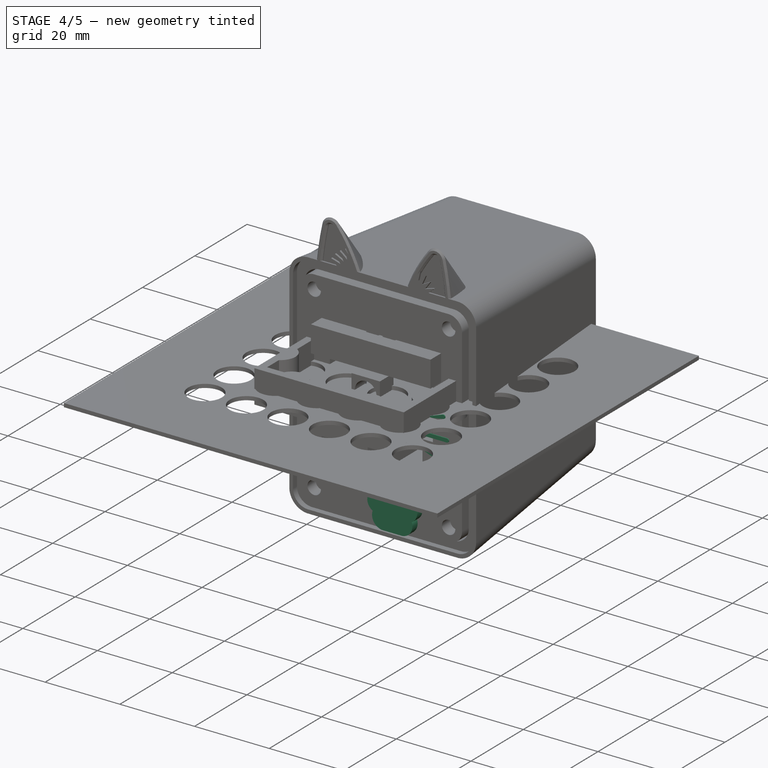
[diagram: stage 4 of 5 — iso view after this stage's code; geometry added in this stage tinted green]
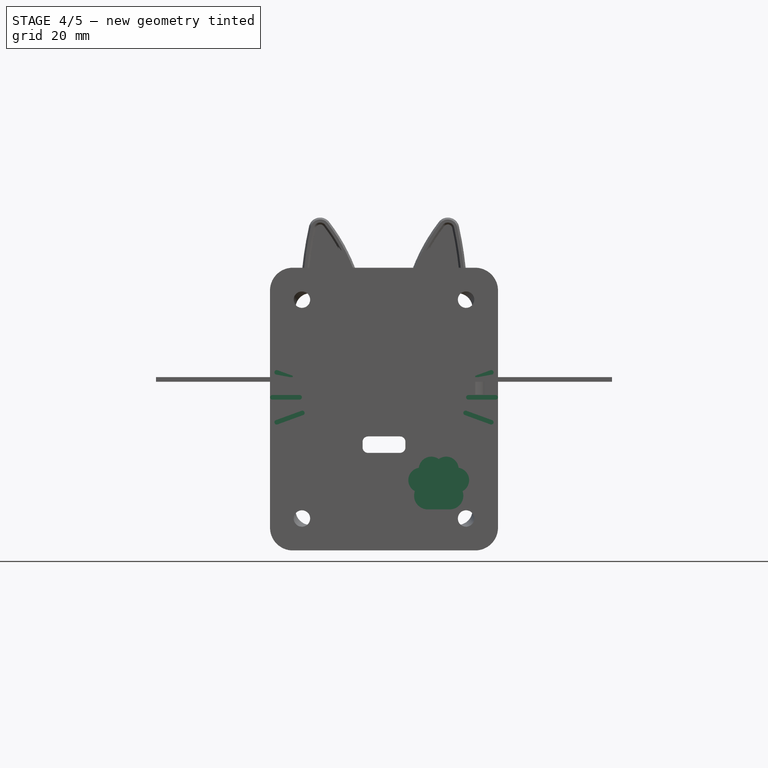
[diagram: stage 4 of 5 — front view after this stage's code; geometry added in this stage tinted green]
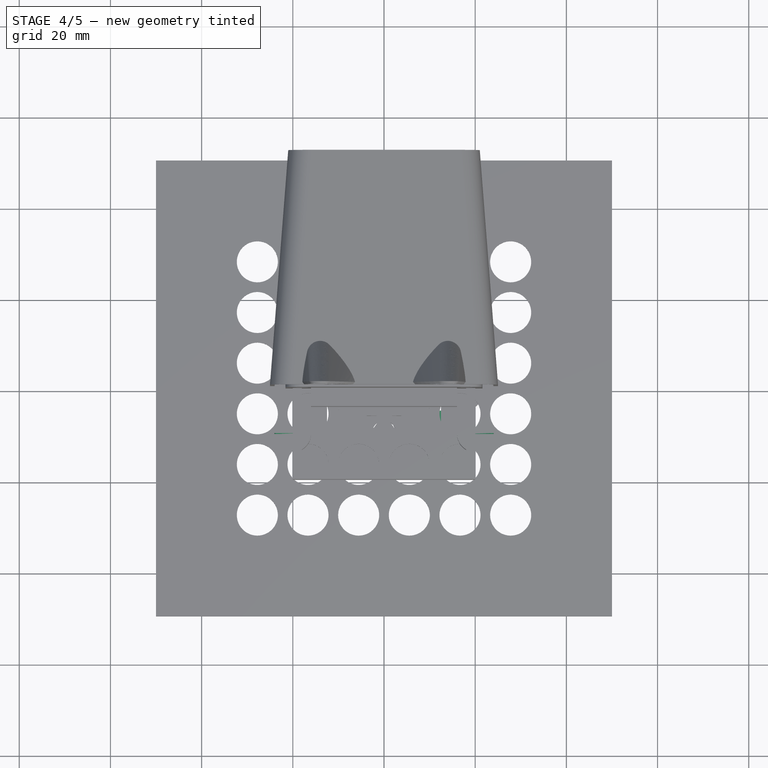
[diagram: stage 4 of 5 — top view after this stage's code; geometry added in this stage tinted green]
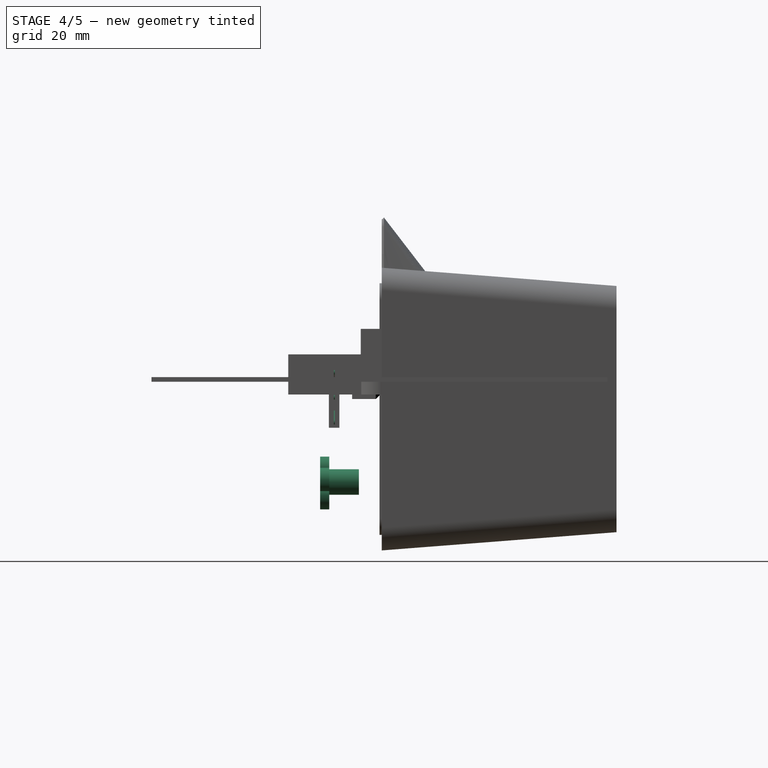
[diagram: stage 4 of 5 — right view after this stage's code; geometry added in this stage tinted green]
FEATURE [PartDesign::Body] Body006
  Group = -> [Cylinder003,Sketch031,Pad007,Sketch032,Pad008]
  Origin = -> Origin021
  Tip = -> Pad008
FEATURE [App::Part] Part006  label="ButtonPawOld"
  Group = -> [Body006]
  Origin = -> Origin020
  Placement = pos=(-12,-14,-22) rot=(0,0,1;0rad)
FEATURE [PartDesign::AdditiveBox] Box003
  AttacherType = Attacher::AttachEngine3D
  AttachmentOffset = pos=(-30,-11,0) rot=(0,0,1;0rad)
  Height = 1
  Length = 60
  MapMode = 2
  Placement = pos=(-30,2.4e-15,-11) rot=(1,0,0;1.5708rad)
  Support = -> [XZ_Plane025]
  Width = 15
FEATURE [Part::Box] Box004  label="Cube"
  AttacherType = Attacher::AttachEngine3D
  Height = 17
  Length = 62
  Placement = pos=(-31,-9.8,-12) rot=(0,0,1;0rad)
  Width = 12
FEATURE [Sketcher::SketchObject] Sketch035
  AttachmentOffset = pos=(0,0,10) rot=(0,0,1;0rad)
  FullyConstrained = true
  MapMode = 5
  Placement = pos=(0,-10,-2.2e-15) rot=(1,0,0;1.5708rad)
  Support = -> [XZ_Plane025]
  sketch-geometry (20):
    g0: LineSegment StartX=-17.7259 StartY=0.469846 StartZ=0 EndX=-18.0679 EndY=-0.469846 EndZ=0
    g1: LineSegment StartX=-23.5351 StartY=2.05212 StartZ=0 EndX=-17.8969 EndY=0 EndZ=0
    g2: LineSegment StartX=-18.5 StartY=-2.9202 StartZ=0 EndX=-18.5 EndY=-3.9202 EndZ=0
    g3: LineSegment StartX=-24.5 StartY=-3.4202 StartZ=0 EndX=-18.5 EndY=-3.4202 EndZ=0
    g4: LineSegment StartX=-18.0679 StartY=-6.37056 StartZ=0 EndX=-17.7259 EndY=-7.31025 EndZ=0
    g5: LineSegment StartX=-23.5351 StartY=-8.89252 StartZ=0 EndX=-17.8969 EndY=-6.8404 EndZ=0
    g6: Circle CenterX=-8.5 CenterY=-3.4202 CenterZ=0 NormalX=0 NormalY=0 NormalZ=1 AngleXU=0 Radius=10
    g7: ArcOfCircle CenterX=-23.5351 CenterY=2.05212 CenterZ=0 NormalX=0 NormalY=0 NormalZ=1 AngleXU=0 Radius=0.5 StartAngle=1.22173 EndAngle=4.36332
    g8: ArcOfCircle CenterX=-24.5 CenterY=-3.4202 CenterZ=0 NormalX=0 NormalY=0 NormalZ=1 AngleXU=0 Radius=0.5 StartAngle=1.5708 EndAngle=4.71239
    g9: ArcOfCircle CenterX=-23.5351 CenterY=-8.89252 CenterZ=0 NormalX=0 NormalY=0 NormalZ=1 AngleXU=0 Radius=0.5 StartAngle=1.91986 EndAngle=5.06145
    g10: LineSegment StartX=-24.5 StartY=-3.4202 StartZ=0 EndX=-25 EndY=-3.4202 EndZ=0
    g11: LineSegment StartX=-23.3641 StartY=2.52197 StartZ=0 EndX=-17.7259 EndY=0.469846 EndZ=0
    g12: LineSegment StartX=-23.7061 StartY=1.58227 StartZ=0 EndX=-18.0679 EndY=-0.469846 EndZ=0
    g13: LineSegment StartX=-24.5 StartY=-2.9202 StartZ=0 EndX=-18.5 EndY=-2.9202 EndZ=0
    g14: LineSegment StartX=-23.7061 StartY=-8.42268 StartZ=0 EndX=-18.0679 EndY=-6.37056 EndZ=0
    g15: LineSegment StartX=-17.7259 StartY=-7.31025 StartZ=0 EndX=-23.3641 EndY=-9.36237 EndZ=0
    g16: LineSegment StartX=-24.5 StartY=-3.9202 StartZ=0 EndX=-18.5 EndY=-3.9202 EndZ=0
    g17: ArcOfCircle CenterX=-17.8969 CenterY=-6.8404 CenterZ=0 NormalX=0 NormalY=0 NormalZ=1 AngleXU=0 Radius=0.5 StartAngle=5.06145 EndAngle=8.20305
    g18: ArcOfCircle CenterX=-18.5 CenterY=-3.4202 CenterZ=0 NormalX=0 NormalY=0 NormalZ=1 AngleXU=0 Radius=0.5 StartAngle=4.71239 EndAngle=7.85398
    g19: ArcOfCircle CenterX=-17.8969 CenterY=-2.05447e-06 CenterZ=0 NormalX=0 NormalY=0 NormalZ=1 AngleXU=0 Radius=0.5 StartAngle=4.36331 EndAngle=7.50493
  constraints (56):
    c: PointOnObject(g1,g0)
    c: Symmetric(g0,g0,g1)
    c: Angle(g1,g-1) = 0.349066
    c: PointOnObject(g3,g2)
    c: Symmetric(g2,g2,g3)
    c: PointOnObject(g5,g4)
    c: Symmetric(g4,g4,g5)
    c: Equal(g1,g3)
    c: Equal(g3,g5)
    c: Horizontal(g3)
    c: Distance(g2) = 1
    c: Equal(g2,g0)
    c: Equal(g2,g4)
    c: Distance(g3) = 6
    c: PointOnObject(g1,g-1)
    c: Angle(g-1,g5) = 0.349066
    c: PointOnObject(g3,g6)
    c: PointOnObject(g1,g6)
    c: PointOnObject(g5,g6)
    c: Tangent(g2,g6)
    c: Tangent(g0,g6)
    c: Tangent(g4,g6)
    c: Diameter(g6) = 20
    c: Coincident(g7,g1)
    c: Radius(g7) = 0.5
    c: Coincident(g8,g3)
    c: Equal(g8,g7)
    c: Coincident(g9,g5)
    c: Equal(g8,g9)
    c: Coincident(g10,g8)
    c: PointOnObject(g10,g8)
    c: Horizontal(g10)
    c: DistanceX(g10,g-1) = 25
    c: Coincident(g11,g0)
    c: Coincident(g12,g0)
    c: Coincident(g13,g8)
    c: Coincident(g13,g2)
    c: Horizontal(g13)
    c: Coincident(g14,g4)
    c: Coincident(g15,g4)
    c: Tangent(g15,g9) = 1.5708
    c: Tangent(g14,g9) = 1.5708
    c: Coincident(g16,g8)
    c: Coincident(g16,g2)
    c: Horizontal(g16)
    c: Tangent(g12,g7) = -1.5708
    c: Tangent(g11,g7) = 1.5708
    c: Coincident(g17,g14)
    c: Coincident(g17,g15)
    c: Equal(g17,g9)
    c: Coincident(g18,g13)
    c: Coincident(g18,g16)
    c: Equal(g18,g8)
    c: Coincident(g19,g11)
    c: Coincident(g19,g12)
    c: Equal(g19,g7)
FEATURE [PartDesign::Pad] Pad009
  BaseFeature = -> Box003
  Direction = (0,-1,-2e-16)
  Length = 10
  Length2 = 10
  Placement = pos=(-30,2e-15,-11) rot=(1,0,0;1.5708rad)
  Profile = -> Sketch035
  ReferenceAxis = -> Sketch035 [N_Axis]
  Reversed = true
  Type = 0
FEATURE [PartDesign::AdditiveCylinder] Cylinder004
  Angle = 360
  AttacherType = Attacher::AttachEngine3D
  AttachmentOffset = pos=(0,0,-6.5) rot=(0,0,1;0rad)
  FirstAngle = 0
  Height = 7.5
  MapMode = 5
  Placement = pos=(0,6.5,1.4e-15) rot=(1,0,0;1.5708rad)
  Radius = 2.8
  SecondAngle = 0
  Support = -> [XZ_Plane028]
FEATURE [Sketcher::SketchObject] Sketch037
  AttachmentOffset = pos=(0,-1,2) rot=(0,0,1;0rad)
  FullyConstrained = true
  MapMode = 5
  Placement = pos=(0,-2,-1) rot=(1,0,0;1.5708rad)
  Support = -> [XZ_Plane028]
  sketch-geometry (15):
    g0: ArcOfCircle CenterX=-4e-16 CenterY=0 CenterZ=0 NormalX=0 NormalY=0 NormalZ=1 AngleXU=0 Radius=2.8 StartAngle=0.385947 EndAngle=2.75565
    g1: ArcOfCircle CenterX=6.29981 CenterY=2.55977 CenterZ=0 NormalX=0 NormalY=0 NormalZ=1 AngleXU=0 Radius=4 StartAngle=3.52754 EndAngle=4.00485
    g2: ArcOfCircle CenterX=-6.29981 CenterY=2.55977 CenterZ=0 NormalX=0 NormalY=0 NormalZ=1 AngleXU=0 Radius=4 StartAngle=5.41993 EndAngle=5.89724
    g3: ArcOfCircle CenterX=-2.4 CenterY=-2 CenterZ=0 NormalX=0 NormalY=0 NormalZ=1 AngleXU=0 Radius=2 StartAngle=2.27834 EndAngle=4.85404
    g4: ArcOfCircle CenterX=2.4 CenterY=-2 CenterZ=0 NormalX=0 NormalY=0 NormalZ=1 AngleXU=0 Radius=2 StartAngle=4.57074 EndAngle=7.14644
    g5: ArcOfCircle CenterX=-2.486e-13 CenterY=-18.8297 CenterZ=0 NormalX=0 NormalY=0 NormalZ=1 AngleXU=0 Radius=15 StartAngle=1.42915 EndAngle=1.71245
    g6: Circle CenterX=-4.56507 CenterY=1.48328 CenterZ=0 NormalX=0 NormalY=0 NormalZ=1 AngleXU=0 Radius=1.5
    g7: Circle CenterX=4.56507 CenterY=1.48328 CenterZ=0 NormalX=0 NormalY=0 NormalZ=1 AngleXU=0 Radius=1.5
    g8: Circle CenterX=-1.95234 CenterY=4.38502 CenterZ=0 NormalX=0 NormalY=0 NormalZ=1 AngleXU=0 Radius=1.5
    g9: ArcOfCircle CenterX=-4e-16 CenterY=0 CenterZ=0 NormalX=0 NormalY=0 NormalZ=1 AngleXU=0 Radius=4.8 StartAngle=0.314159 EndAngle=2.82743
    g10: Circle CenterX=1.95234 CenterY=4.38502 CenterZ=0 NormalX=0 NormalY=0 NormalZ=1 AngleXU=0 Radius=1.5
    g11: LineSegment StartX=1.95234 StartY=4.38502 StartZ=0 EndX=-1.95234 EndY=4.38502 EndZ=0
    g12: LineSegment StartX=-1.95234 StartY=4.38502 StartZ=0 EndX=-4.56507 EndY=1.48328 EndZ=0
    g13: LineSegment StartX=1.95234 StartY=4.38502 StartZ=0 EndX=4.56507 EndY=1.48328 EndZ=0
    g14: LineSegment StartX=-1.34223 StartY=3.0147 StartZ=0 EndX=-1.13886 EndY=2.55793 EndZ=0
  constraints (39):
    c: Tangent(g2,g0) = 1.5708
    c: Tangent(g3,g2) = 1.5708
    c: Tangent(g1,g0) = 1.5708
    c: Tangent(g4,g1) = 1.5708
    c: Tangent(g5,g4) = 1.5708
    c: Tangent(g5,g3) = 1.5708
    c: Symmetric(g3,g4,g-2)
    c: Symmetric(g2,g1,g-2)
    c: Radius(g0) = 2.8
    c: Radius(g3) = 2
    c: Radius(g5) = 15
    c: Radius(g2) = 4
    c: Diameter(g6) = 3
    c: Equal(g7,g6)
    c: Symmetric(g7,g6,g-2)
    c: Equal(g6,g8) = 2
    c: Coincident(g9,g6)
    c: Coincident(g9,g7)
    c: PointOnObject(g8,g9)
    c: PointOnObject(g10,g9)
    c: Equal(g10,g8)
    c: Coincident(g11,g10)
    c: Coincident(g11,g8)
    c: Horizontal(g11)
    c: Coincident(g12,g8)
    c: Coincident(g12,g6)
    c: Coincident(g13,g10)
    c: Coincident(g13,g7)
    c: Equal(g11,g12)
    c: Coincident(g9,g0)
    c: PointOnObject(g14,g8)
    c: PointOnObject(g14,g0)
    c: Perpendicular(g0,g14)
    c: Perpendicular(g8,g14)
    c: Distance(g14) = 0.5
    c: Angle(g-2,g13) = 0.733038
    c: DistanceX(g4) = 2.4
    c: DistanceY(g4) = -2
    c: Coincident(g0,g-1)
FEATURE [Sketcher::SketchObject] Sketch036
  ExternalGeometry = -> [Sketch037]
  FullyConstrained = false
  MapMode = 5
  Placement = pos=(0,0,0) rot=(1,0,0;1.5708rad)
  Support = -> [XZ_Plane028]
  sketch-geometry (16):
    g0: ArcOfCircle CenterX=-3.9223 CenterY=0.415235 CenterZ=0 NormalX=0 NormalY=0 NormalZ=1 AngleXU=0 Radius=2.74636 StartAngle=1.73054 EndAngle=4.21668
    g1: ArcOfCircle CenterX=-1.62941 CenterY=2.82511 CenterZ=0 NormalX=0 NormalY=0 NormalZ=1 AngleXU=0 Radius=2.74636 StartAngle=0.935649 EndAngle=3.03158
    g2: ArcOfCircle CenterX=1.62941 CenterY=2.82511 CenterZ=0 NormalX=0 NormalY=0 NormalZ=1 AngleXU=0 Radius=2.74636 StartAngle=0.110009 EndAngle=2.20594
    g3: ArcOfCircle CenterX=3.9223 CenterY=0.415235 CenterZ=0 NormalX=0 NormalY=0 NormalZ=1 AngleXU=0 Radius=2.74636 StartAngle=5.2081 EndAngle=7.69423
    g4: ArcOfCircle CenterX=2.4 CenterY=-3 CenterZ=0 NormalX=0 NormalY=0 NormalZ=1 AngleXU=0 Radius=3 StartAngle=4.71239 EndAngle=6.62283
    g5: ArcOfCircle CenterX=-2.4 CenterY=-3 CenterZ=0 NormalX=0 NormalY=0 NormalZ=1 AngleXU=0 Radius=3 StartAngle=2.80195 EndAngle=4.71239
    g6: LineSegment StartX=-2.4 StartY=-6 StartZ=0 EndX=2.4 EndY=-6 EndZ=0
    g7: LineSegment StartX=2.70176 StartY=4.68439 StartZ=0 EndX=3.00153 EndY=5.20414 EndZ=0
    g8: LineSegment StartX=-4.4 StartY=-3 StartZ=0 EndX=-5.4 EndY=-3 EndZ=0
    g9: LineSegment StartX=-4.56507 StartY=0.483282 StartZ=0 EndX=0 EndY=1e-16 EndZ=0
    g10: LineSegment StartX=-1.95234 StartY=3.38502 StartZ=0 EndX=0 EndY=0 EndZ=0
    g11: LineSegment StartX=1.95234 StartY=3.38502 StartZ=0 EndX=0 EndY=0 EndZ=0
    g12: LineSegment StartX=4.56507 StartY=0.483282 StartZ=0 EndX=0 EndY=1e-16 EndZ=0
    g13: LineSegment StartX=-2.70176 StartY=4.68439 StartZ=0 EndX=-3.00153 EndY=5.20414 EndZ=0
    g14: LineSegment StartX=-6.05674 StartY=0.641197 StartZ=0 EndX=-6.6534 EndY=0.704363 EndZ=0
    g15: LineSegment StartX=6.05674 StartY=0.641197 StartZ=0 EndX=6.6534 EndY=0.704363 EndZ=0
  constraints (50):
    c: Coincident(g1,g0)
    c: Coincident(g2,g1)
    c: Coincident(g3,g2)
    c: Coincident(g4,g-8)
    c: Coincident(g4,g3)
    c: Coincident(g5,g-7)
    c: Coincident(g5,g0)
    c: Equal(g0,g1)
    c: Equal(g1,g2)
    c: Equal(g2,g3)
    c: PointOnObject(g7,g-3)
    c: PointOnObject(g7,g2)
    c: Perpendicular(g-3,g7)
    c: Horizontal(g6)
    c: PointOnObject(g8,g-7)
    c: PointOnObject(g8,g5)
    c: Horizontal(g8)
    c: Perpendicular(g-7,g8)
    c: Tangent(g6,g5) = -1.5708
    c: Tangent(g6,g4) = -1.5708
    c: Distance(g8) = 1
    c: Coincident(g9,g-6)
    c: Coincident(g9,g-1)
    c: Coincident(g10,g-5)
    c: Coincident(g10,g9)
    c: Coincident(g11,g-3)
    c: Coincident(g11,g9)
    c: Coincident(g12,g-4)
    c: Coincident(g12,g9)
    c: PointOnObject(g0,g9)
    c: PointOnObject(g1,g10)
    c: PointOnObject(g2,g11)
    c: PointOnObject(g3,g12)
    c: Parallel(g7,g11)
    c: PointOnObject(g13,g-5)
    c: PointOnObject(g13,g1)
    c: Parallel(g13,g10)
    c: Perpendicular(g-5,g13)
    c: Equal(g13,g7)
    c: Distance(g13) = 0.6
    c: PointOnObject(g14,g-6)
    c: PointOnObject(g14,g0)
    c: Parallel(g14,g9)
    c: Perpendicular(g-6,g14)
    c: Equal(g14,g13)
    c: PointOnObject(g15,g-4)
    c: PointOnObject(g15,g3)
    c: Perpendicular(g-4,g15)
    c: Parallel(g15,g12)
    c: Equal(g15,g7)
FEATURE [PartDesign::Pad] Pad010
  BaseFeature = -> Cylinder004
  Direction = (0,-1,-2e-16)
  Length = 2
  Length2 = 10
  Placement = pos=(0,6.5,1e-15) rot=(1,0,0;1.5708rad)
  Profile = -> Sketch036
  ReferenceAxis = -> Sketch036 [N_Axis]
  Type = 0
FEATURE [PartDesign::Mirrored] Mirrored005
  BaseFeature = -> Pad009
  MirrorPlane = -> Sketch035 [V_Axis]
  Originals = -> [Pad009]
  Placement = pos=(-30,2e-15,-11) rot=(1,0,0;1.5708rad)
FEATURE [PartDesign::Body] Body007
  Group = -> [Box003,Sketch035,Pad009,Mirrored005]
  Origin = -> Origin023
  Tip = -> Mirrored005
FEATURE [Part::Cut] Cut  label="Whiskers"
  Base = -> Body007
  Tool = -> Box004
FEATURE [PartDesign::Pocket] Pocket008
  BaseFeature = -> Pad010
  Direction = (0,1,2e-16)
  Length = 0.2
  Length2 = 5
  Placement = pos=(0,6.5,1e-15) rot=(1,0,0;1.5708rad)
  Profile = -> Sketch037
  ReferenceAxis = -> Sketch037 [N_Axis]
  Type = 0
FEATURE [PartDesign::Body] Body008  label="Button"
  Group = -> [Cylinder004,Sketch036,Sketch037,Pad010,Pocket008]
  Origin = -> Origin025
  Tip = -> Pocket008
FEATURE [Sketcher::SketchObject] Sketch038
  AttachmentOffset = pos=(0,-1,2) rot=(0,0,1;0rad)
  FullyConstrained = true
  MapMode = 5
  Placement = pos=(0,-2,-1) rot=(1,0,0;1.5708rad)
  Support = -> [XZ_Plane030]
  sketch-geometry (15):
    g0: ArcOfCircle CenterX=-4e-16 CenterY=0 CenterZ=0 NormalX=0 NormalY=0 NormalZ=1 AngleXU=0 Radius=2.8 StartAngle=0.385947 EndAngle=2.75565
    g1: ArcOfCircle CenterX=6.29981 CenterY=2.55977 CenterZ=0 NormalX=0 NormalY=0 NormalZ=1 AngleXU=0 Radius=4 StartAngle=3.52754 EndAngle=4.00485
    g2: ArcOfCircle CenterX=-6.29981 CenterY=2.55977 CenterZ=0 NormalX=0 NormalY=0 NormalZ=1 AngleXU=0 Radius=4 StartAngle=5.41993 EndAngle=5.89724
    g3: ArcOfCircle CenterX=-2.4 CenterY=-2 CenterZ=0 NormalX=0 NormalY=0 NormalZ=1 AngleXU=0 Radius=2 StartAngle=2.27834 EndAngle=4.85404
    g4: ArcOfCircle CenterX=2.4 CenterY=-2 CenterZ=0 NormalX=0 NormalY=0 NormalZ=1 AngleXU=0 Radius=2 StartAngle=4.57074 EndAngle=7.14644
    g5: ArcOfCircle CenterX=-2.486e-13 CenterY=-18.8297 CenterZ=0 NormalX=0 NormalY=0 NormalZ=1 AngleXU=0 Radius=15 StartAngle=1.42915 EndAngle=1.71245
    g6: Circle CenterX=-4.56507 CenterY=1.48328 CenterZ=0 NormalX=0 NormalY=0 NormalZ=1 AngleXU=0 Radius=1.5
    g7: Circle CenterX=4.56507 CenterY=1.48328 CenterZ=0 NormalX=0 NormalY=0 NormalZ=1 AngleXU=0 Radius=1.5
    g8: Circle CenterX=-1.95234 CenterY=4.38502 CenterZ=0 NormalX=0 NormalY=0 NormalZ=1 AngleXU=0 Radius=1.5
    g9: ArcOfCircle CenterX=-4e-16 CenterY=0 CenterZ=0 NormalX=0 NormalY=0 NormalZ=1 AngleXU=0 Radius=4.8 StartAngle=0.314159 EndAngle=2.82743
    g10: Circle CenterX=1.95234 CenterY=4.38502 CenterZ=0 NormalX=0 NormalY=0 NormalZ=1 AngleXU=0 Radius=1.5
    g11: LineSegment StartX=1.95234 StartY=4.38502 StartZ=0 EndX=-1.95234 EndY=4.38502 EndZ=0
    g12: LineSegment StartX=-1.95234 StartY=4.38502 StartZ=0 EndX=-4.56507 EndY=1.48328 EndZ=0
    g13: LineSegment StartX=1.95234 StartY=4.38502 StartZ=0 EndX=4.56507 EndY=1.48328 EndZ=0
    g14: LineSegment StartX=-1.34223 StartY=3.0147 StartZ=0 EndX=-1.13886 EndY=2.55793 EndZ=0
  constraints (39):
    c: Tangent(g2,g0) = 1.5708
    c: Tangent(g3,g2) = 1.5708
    c: Tangent(g1,g0) = 1.5708
    c: Tangent(g4,g1) = 1.5708
    c: Tangent(g5,g4) = 1.5708
    c: Tangent(g5,g3) = 1.5708
    c: Symmetric(g3,g4,g-2)
    c: Symmetric(g2,g1,g-2)
    c: Radius(g0) = 2.8
    c: Radius(g3) = 2
    c: Radius(g5) = 15
    c: Radius(g2) = 4
    c: Diameter(g6) = 3
    c: Equal(g7,g6)
    c: Symmetric(g7,g6,g-2)
    c: Equal(g6,g8) = 2
    c: Coincident(g9,g6)
    c: Coincident(g9,g7)
    c: PointOnObject(g8,g9)
    c: PointOnObject(g10,g9)
    c: Equal(g10,g8)
    c: Coincident(g11,g10)
    c: Coincident(g11,g8)
    c: Horizontal(g11)
    c: Coincident(g12,g8)
    c: Coincident(g12,g6)
    c: Coincident(g13,g10)
    c: Coincident(g13,g7)
    c: Equal(g11,g12)
    c: Coincident(g9,g0)
    c: PointOnObject(g14,g8)
    c: PointOnObject(g14,g0)
    c: Perpendicular(g0,g14)
    c: Perpendicular(g8,g14)
    c: Distance(g14) = 0.5
    c: Angle(g-2,g13) = 0.733038
    c: DistanceX(g4) = 2.4
    c: DistanceY(g4) = -2
    c: Coincident(g0,g-1)
FEATURE [PartDesign::AdditiveBox] Box006
  AttacherType = Attacher::AttachEngine3D
  AttachmentOffset = pos=(-10,-10,0) rot=(0,0,1;0rad)
  Height = 1.8
  Length = 20
  MapMode = 5
  Placement = pos=(-10,2.2e-15,-10) rot=(1,0,0;1.5708rad)
  Support = -> [XZ_Plane030]
  Width = 20
FEATURE [PartDesign::Pad] Pad011
  BaseFeature = -> Box006
  Direction = (0,-1,2e-16)
  Length = 0.2
  Length2 = 10
  Placement = pos=(-10,-2e-15,-10) rot=(1,0,0;1.5708rad)
  Profile = -> Sketch038
  ReferenceAxis = -> Sketch038 [N_Axis]
  Reversed = true
  Type = 0
FEATURE [PartDesign::Body] Body009  label="Beans"
  Group = -> [Sketch038,Box006,Pad011]
  Origin = -> Origin026
  Tip = -> Pad011
FEATURE [Part::Box] Box007  label="Cube001"
  AttacherType = Attacher::AttachEngine3D
  Height = 22
  Length = 22
  Placement = pos=(11,-1e-15,-11) rot=(0,0,1;3.14159rad)
  Width = 1.8
FEATURE [Part::Cut] Cut002  label="Beans001"
  Base = -> Body009
  Tool = -> Box007
FEATURE [App::Part] Part007  label="ButtonPaw"
  Group = -> [Body008,Body009,Box007,Cut002]
  Origin = -> Origin024
  Placement = pos=(-12,-11,-22) rot=(0,0,1;0rad)
FEATURE [Part::FeaturePython] Clone001  label="ButtonPaw001"  # Draft clone (typed FeaturePython)
  AttacherType = Attacher::AttachEngine3D
  Fuse = false
  Objects = -> [Part007]
  Placement = pos=(12,-11,-22) rot=(0,0,1;0rad)
  Scale = (1,1,1)
FEATURE [PartDesign::Mirrored] Mirrored007
  BaseFeature = -> Pad014
  MirrorPlane = -> YZ_Plane027
  Originals = -> [Pad014]
  Placement = pos=(-10,1,25) rot=(1,0,0;1.5708rad)
FEATURE [Part::Cut] Cut003  label="EarColor001"
  Base = -> Body010
  Tool = -> Box009
FEATURE [PartDesign::FeatureBase] Clone002
  BaseFeature = -> Cut003
FEATURE [PartDesign::Body] Body003  label="Main001"
  Group = -> [DatumPlane,Sketch004,Sketch005,AdditiveLoft001,Sketch009,Sketch010,AdditiveLoft002,Pad012,Sketch041,Pad013,Mirrored006,SubtractiveLoft001,MultiTransform,Mirrored,Mirrored001,Sketch011,Hole,Sketch015,Pocket002,Sketch016,Pocket003,Sketch018,Pocket004,Sketch019,Pocket005,Sketch027,Sketch039,Sketch040,Sketch043,Pocket009,Cylinder,Box010,Box014]
  Origin = -> Origin015
  Tip = -> Box014
FEATURE [Part::Cut] Cut004  label="Main002"
  Base = -> Body003
  Tool = -> Body011
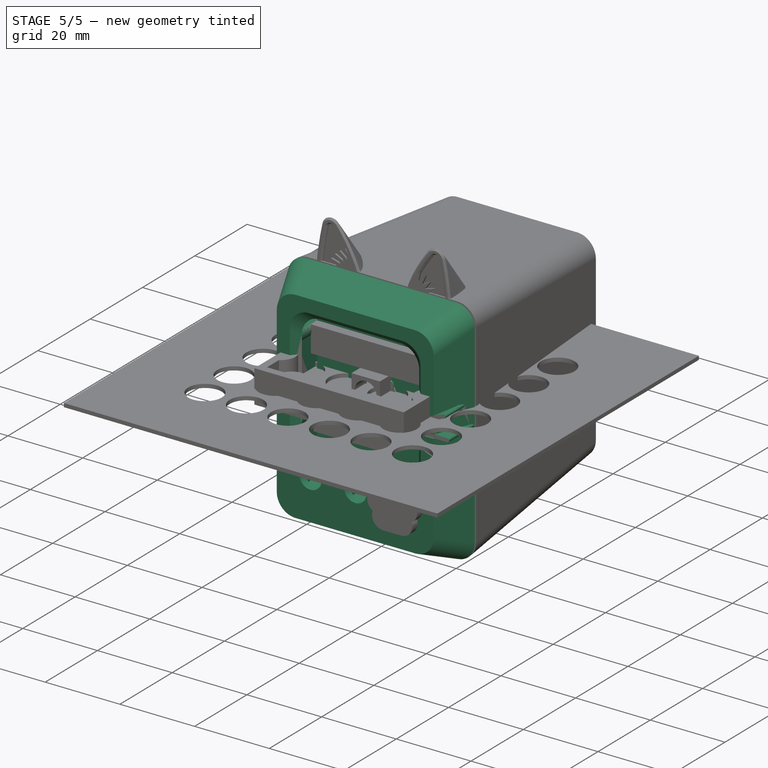
[diagram: stage 5 of 5 — iso view after this stage's code; geometry added in this stage tinted green]
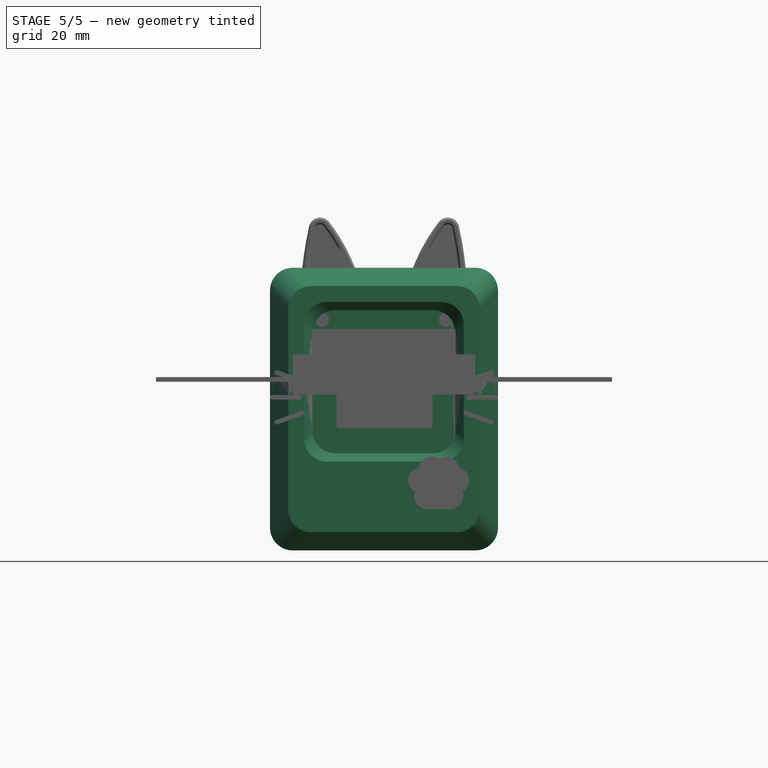
[diagram: stage 5 of 5 — front view after this stage's code; geometry added in this stage tinted green]
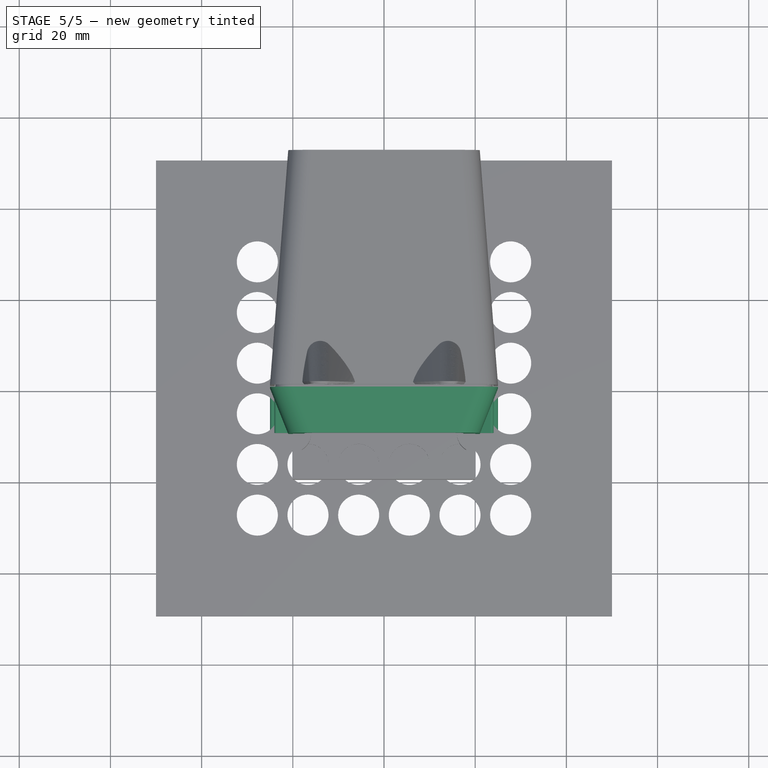
[diagram: stage 5 of 5 — top view after this stage's code; geometry added in this stage tinted green]
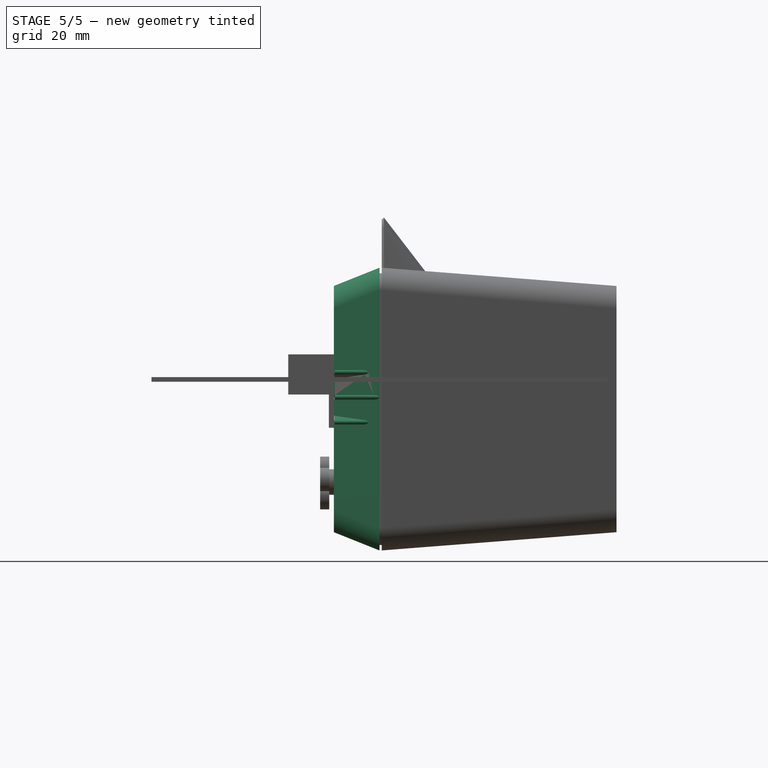
[diagram: stage 5 of 5 — right view after this stage's code; geometry added in this stage tinted green]
FEATURE [Sketcher::SketchObject] Sketch
  FullyConstrained = true
  MapMode = 5
  Placement = pos=(0,0,0) rot=(1,0,0;1.5708rad)
  Support = -> [XZ_Plane001]
  sketch-geometry (15):
    g0: LineSegment StartX=-16.075 StartY=16.075 StartZ=0 EndX=16.075 EndY=16.075 EndZ=0
    g1: LineSegment StartX=16.075 StartY=16.075 StartZ=0 EndX=16.075 EndY=-33.925 EndZ=0
    g2: LineSegment StartX=16.075 StartY=-33.925 StartZ=0 EndX=-16.075 EndY=-33.925 EndZ=0
    g3: LineSegment StartX=-16.075 StartY=-33.925 StartZ=0 EndX=-16.075 EndY=16.075 EndZ=0
    g4: LineSegment StartX=0 StartY=0 StartZ=0 EndX=-16.075 EndY=16.075 EndZ=0
    g5: Circle CenterX=-13.575 CenterY=13.575 CenterZ=0 NormalX=0 NormalY=0 NormalZ=1 AngleXU=0 Radius=1.5
    g6: Circle CenterX=13.575 CenterY=13.575 CenterZ=0 NormalX=0 NormalY=0 NormalZ=1 AngleXU=0 Radius=1.5
    g7: Circle CenterX=13.575 CenterY=-31.425 CenterZ=0 NormalX=0 NormalY=0 NormalZ=1 AngleXU=0 Radius=1.5
    g8: Circle CenterX=-13.575 CenterY=-31.425 CenterZ=0 NormalX=0 NormalY=0 NormalZ=1 AngleXU=0 Radius=1.5
    g9: LineSegment StartX=-13.575 StartY=13.575 StartZ=0 EndX=13.575 EndY=13.575 EndZ=0
    g10: LineSegment StartX=13.575 StartY=13.575 StartZ=0 EndX=13.575 EndY=-31.425 EndZ=0
    g11: LineSegment StartX=13.575 StartY=-31.425 StartZ=0 EndX=-13.575 EndY=-31.425 EndZ=0
    g12: LineSegment StartX=-13.575 StartY=-31.425 StartZ=0 EndX=-13.575 EndY=13.575 EndZ=0
    g13: LineSegment StartX=13.575 StartY=13.575 StartZ=0 EndX=13.575 EndY=16.075 EndZ=0
    g14: LineSegment StartX=13.575 StartY=-31.425 StartZ=0 EndX=13.575 EndY=-33.925 EndZ=0
  constraints (40):
    c: Coincident(g0,g1)
    c: Coincident(g1,g2)
    c: Coincident(g2,g3)
    c: Coincident(g3,g0)
    c: Horizontal(g2)
    c: Vertical(g1)
    c: Vertical(g3)
    c: Symmetric(g0,g0,g-2)
    c: DistanceX(g0,g0) = 32.15
    c: DistanceY(g3,g3) = 50
    c: Coincident(g4,g-1)
    c: Coincident(g4,g0)
    c: Angle(g-2,g4) = 0.785398
    c: PointOnObject(g5,g4)
    c: Coincident(g9,g10)
    c: Coincident(g10,g11)
    c: Coincident(g11,g12)
    c: Coincident(g12,g9)
    c: Horizontal(g11)
    c: Vertical(g10)
    c: Vertical(g12)
    c: Coincident(g9,g5)
    c: Coincident(g10,g7)
    c: Coincident(g8,g11)
    c: Coincident(g9,g6)
    c: Symmetric(g5,g6,g-2)
    c: Equal(g5,g6)
    c: Equal(g5,g7)
    c: Equal(g5,g8)
    c: Diameter(g5) = 3
    c: DistanceY(g5,g0) = 2.5
    c: Coincident(g13,g6)
    c: PointOnObject(g13,g0)
    c: Vertical(g13)
    c: Coincident(g14,g7)
    c: PointOnObject(g14,g2)
    c: Vertical(g14)
    c: Equal(g14,g13)
    c: DistanceY(g10,g10) = 45
    c: DistanceX(g11,g11) = 27.15
FEATURE [PartDesign::Pad] Pad
  Direction = (0,-1,2e-16)
  Length = 1.6
  Length2 = 10
  Placement = pos=(0,0,0) rot=(1,0,0;1.5708rad)
  Profile = -> Sketch
  ReferenceAxis = -> Sketch [N_Axis]
  Type = 0
FEATURE [PartDesign::Body] Body
  Group = -> [Sketch,Pad]
  Origin = -> Origin001
  Tip = -> Pad
FEATURE [App::Part] Part  label="MatrixRef"
  Group = -> [Body]
  Origin = -> Origin
  Placement = pos=(0,5,0) rot=(0,0,1;0rad)
FEATURE [PartDesign::CoordinateSystem] Local_CS_7567
  AttacherType = Attacher::AttachEngine3D
  MapMode = 2
  Support = -> [X_Axis004]
FEATURE [Part::Feature] Pcb_7567
  shape: bbox 40.88 x 25.48 x 1.6 mm, 34 faces (baked)
FEATURE [Sketcher::SketchObject] PCB_Sketch_7567
  FullyConstrained = false
  sketch-geometry (8):
    g0: LineSegment StartX=168.94 StartY=-116.474 StartZ=0 EndX=168.94 EndY=-93.5336 EndZ=0
    g1: LineSegment StartX=167.67 StartY=-92.2636 StartZ=0 EndX=129.333 EndY=-92.2636 EndZ=0
    g2: LineSegment StartX=129.333 StartY=-117.744 StartZ=0 EndX=167.67 EndY=-117.744 EndZ=0
    g3: LineSegment StartX=128.063 StartY=-93.5336 StartZ=0 EndX=128.063 EndY=-116.474 EndZ=0
    g4: ArcOfCircle CenterX=167.67 CenterY=-93.5336 CenterZ=0 NormalX=0 NormalY=0 NormalZ=-1 AngleXU=1.5708 Radius=1.27 StartAngle=0 EndAngle=1.5708
    g5: ArcOfCircle CenterX=167.67 CenterY=-116.474 CenterZ=0 NormalX=0 NormalY=0 NormalZ=-1 AngleXU=3.14159 Radius=1.27 StartAngle=0 EndAngle=1.5708
    g6: ArcOfCircle CenterX=129.333 CenterY=-93.5336 CenterZ=0 NormalX=0 NormalY=0 NormalZ=-1 AngleXU=-1.04279e-06 Radius=1.27 StartAngle=0 EndAngle=1.5708
    g7: ArcOfCircle CenterX=129.333 CenterY=-116.474 CenterZ=0 NormalX=0 NormalY=0 NormalZ=-1 AngleXU=-1.5708 Radius=1.27 StartAngle=0 EndAngle=1.5708
  constraints (8):
    c: Coincident(g3,g7)
    c: Coincident(g3,g6)
    c: Coincident(g2,g7)
    c: Coincident(g1,g6)
    c: Coincident(g2,g5)
    c: Coincident(g1,g4)
    c: Coincident(g0,g5)
    c: Coincident(g0,g4)
FEATURE [App::Part] Board_Geoms_7567
  Group = -> [Pcb_7567,PCB_Sketch_7567]
  Origin = -> Origin005
  Placement = pos=(-144,105,0) rot=(0,0,1;0rad)
FEATURE [App::Part] Step_Models_7567
  Origin = -> Origin006
FEATURE [App::Part] Board_7567  label="Lipo Rider Plus"
  Group = -> [Local_CS_7567,Board_Geoms_7567,Step_Models_7567]
  Origin = -> Origin004
  Placement = pos=(-5.3,33,3.4) rot=(-0.707107,0.707107,0;3.14159rad)
FEATURE [Part::Feature] Part__Feature  label="PCB_Core"
  Placement = pos=(-17.78,-7.62,-0.07) rot=(0,0,-1;1.5708rad)
  shape: bbox 43.18 x 17.78 x 1.46 mm, 298 faces (baked)
FEATURE [Part::Feature] Part__Feature002  label="Top_Copper"
  Placement = pos=(-17.78,-7.62,-0.035) rot=(0,0,-1;1.5708rad)
  shape: bbox 18.82 x 15.37 x 0.035 mm, 1823 faces (baked)
FEATURE [Part::Feature] Part__Feature003  label="Top_Copper001"
  Placement = pos=(-17.78,-7.62,-0.035) rot=(0,0,-1;1.5708rad)
  shape: bbox 10.62 x 14.09 x 0.035 mm, 1013 faces (baked)
FEATURE [Part::Feature] Part__Feature004  label="Top_Copper002"
  Placement = pos=(-17.78,-7.62,-0.035) rot=(0,0,-1;1.5708rad)
  shape: bbox 13.64 x 9.677 x 0.035 mm, 1187 faces (baked)
FEATURE [Part::Feature] Part__Feature005  label="Top_Copper003"
  Placement = pos=(-17.78,-7.62,-0.035) rot=(0,0,-1;1.5708rad)
  shape: bbox 12.11 x 13.65 x 0.035 mm, 1492 faces (baked)
FEATURE [Part::Feature] Part__Feature006  label="Top_Copper004"
  Placement = pos=(-17.78,-7.62,-0.035) rot=(0,0,-1;1.5708rad)
  shape: bbox 1.778 x 1.778 x 0.035 mm, 4 faces (baked)
FEATURE [Part::Feature] Part__Feature007  label="Top_Copper005"
  Placement = pos=(-17.78,-7.62,-0.035) rot=(0,0,-1;1.5708rad)
  shape: bbox 1.778 x 1.778 x 0.035 mm, 4 faces (baked)
FEATURE [Part::Feature] Part__Feature008  label="Top_Copper006"
  Placement = pos=(-17.78,-7.62,-0.035) rot=(0,0,-1;1.5708rad)
  shape: bbox 3.962 x 3.379 x 0.035 mm, 25 faces (baked)
FEATURE [Part::Feature] Part__Feature009  label="Top_Copper007"
  Placement = pos=(-17.78,-7.62,-0.035) rot=(0,0,-1;1.5708rad)
  shape: bbox 12.6 x 6.782 x 0.035 mm, 17 faces (baked)
FEATURE [Part::Feature] Part__Feature010  label="Top_Copper008"
  Placement = pos=(-17.78,-7.62,-0.035) rot=(0,0,-1;1.5708rad)
  shape: bbox 6.499 x 7.763 x 0.035 mm, 27 faces (baked)
FEATURE [Part::Feature] Part__Feature011  label="Top_Copper009"
  Placement = pos=(-17.78,-7.62,-0.035) rot=(0,0,-1;1.5708rad)
  shape: bbox 4.533 x 7.188 x 0.035 mm, 24 faces (baked)
FEATURE [Part::Feature] Part__Feature012  label="Top_Copper010"
  Placement = pos=(-17.78,-7.62,-0.035) rot=(0,0,-1;1.5708rad)
  shape: bbox 4.902 x 5.499 x 0.035 mm, 33 faces (baked)
FEATURE [Part::Feature] Part__Feature013  label="Top_Copper011"
  Placement = pos=(-17.78,-7.62,-0.035) rot=(0,0,-1;1.5708rad)
  shape: bbox 8.508 x 4.368 x 0.035 mm, 33 faces (baked)
FEATURE [Part::Feature] Part__Feature014  label="Top_Copper012"
  Placement = pos=(-17.78,-7.62,-0.035) rot=(0,0,-1;1.5708rad)
  shape: bbox 6.82 x 3.846 x 0.035 mm, 35 faces (baked)
FEATURE [Part::Feature] Part__Feature015  label="Top_Copper013"
  Placement = pos=(-17.78,-7.62,-0.035) rot=(0,0,-1;1.5708rad)
  shape: bbox 4.84 x 2.161 x 0.035 mm, 22 faces (baked)
FEATURE [Part::Feature] Part__Feature016  label="Top_Copper014"
  Placement = pos=(-17.78,-7.62,-0.035) rot=(0,0,-1;1.5708rad)
  shape: bbox 4.584 x 5.145 x 0.035 mm, 39 faces (baked)
FEATURE [Part::Feature] Part__Feature017  label="Top_Copper015"
  Placement = pos=(-17.78,-7.62,-0.035) rot=(0,0,-1;1.5708rad)
  shape: bbox 1.778 x 1.778 x 0.035 mm, 4 faces (baked)
FEATURE [Part::Feature] Part__Feature018  label="Top_Copper016"
  Placement = pos=(-17.78,-7.62,-0.035) rot=(0,0,-1;1.5708rad)
  shape: bbox 1.778 x 1.778 x 0.035 mm, 4 faces (baked)
FEATURE [Part::Feature] Part__Feature019  label="Top_Copper017"
  Placement = pos=(-17.78,-7.62,-0.035) rot=(0,0,-1;1.5708rad)
  shape: bbox 5.956 x 7.772 x 0.035 mm, 24 faces (baked)
FEATURE [Part::Feature] Part__Feature020  label="Top_Copper018"
  Placement = pos=(-17.78,-7.62,-0.035) rot=(0,0,-1;1.5708rad)
  shape: bbox 7.931 x 8.337 x 0.035 mm, 27 faces (baked)
FEATURE [Part::Feature] Part__Feature021  label="Top_Copper019"
  Placement = pos=(-17.78,-7.62,-0.035) rot=(0,0,-1;1.5708rad)
  shape: bbox 2.703 x 1.633 x 0.035 mm, 15 faces (baked)
FEATURE [Part::Feature] Part__Feature022  label="Top_Copper020"
  Placement = pos=(-17.78,-7.62,-0.035) rot=(0,0,-1;1.5708rad)
  shape: bbox 4.199 x 5.18 x 0.035 mm, 16 faces (baked)
FEATURE [Part::Feature] Part__Feature023  label="Top_Copper021"
  Placement = pos=(-17.78,-7.62,-0.035) rot=(0,0,-1;1.5708rad)
  shape: bbox 14.81 x 9.296 x 0.035 mm, 55 faces (baked)
FEATURE [Part::Feature] Part__Feature024  label="Top_Copper022"
  Placement = pos=(-17.78,-7.62,-0.035) rot=(0,0,-1;1.5708rad)
  shape: bbox 2.55 x 6.631 x 0.035 mm, 24 faces (baked)
FEATURE [Part::Feature] Part__Feature025  label="Top_Copper023"
  Placement = pos=(-17.78,-7.62,-0.035) rot=(0,0,-1;1.5708rad)
  shape: bbox 6.731 x 4.943 x 0.035 mm, 39 faces (baked)
FEATURE [Part::Feature] Part__Feature026  label="Top_Copper024"
  Placement = pos=(-17.78,-7.62,-0.035) rot=(0,0,-1;1.5708rad)
  shape: bbox 3.099 x 6.074 x 0.035 mm, 21 faces (baked)
FEATURE [Part::Feature] Part__Feature027  label="Top_Copper025"
  Placement = pos=(-17.78,-7.62,-0.035) rot=(0,0,-1;1.5708rad)
  shape: bbox 8.461 x 8.328 x 0.035 mm, 27 faces (baked)
FEATURE [Part::Feature] Part__Feature028  label="Top_Copper026"
  Placement = pos=(-17.78,-7.62,-0.035) rot=(0,0,-1;1.5708rad)
  shape: bbox 2.923 x 2.925 x 0.035 mm, 13 faces (baked)
FEATURE [Part::Feature] Part__Feature029  label="Top_Copper027"
  Placement = pos=(-17.78,-7.62,-0.035) rot=(0,0,-1;1.5708rad)
  shape: bbox 4.251 x 4.975 x 0.035 mm, 24 faces (baked)
FEATURE [Part::Feature] Part__Feature030  label="Top_Copper028"
  Placement = pos=(-17.78,-7.62,-0.035) rot=(0,0,-1;1.5708rad)
  shape: bbox 5.095 x 6.672 x 0.035 mm, 21 faces (baked)
FEATURE [Part::Feature] Part__Feature031  label="Top_Copper029"
  Placement = pos=(-17.78,-7.62,-0.035) rot=(0,0,-1;1.5708rad)
  shape: bbox 2.276 x 4.41 x 0.035 mm, 18 faces (baked)
FEATURE [Part::Feature] Part__Feature032  label="Top_Copper030"
  Placement = pos=(-17.78,-7.62,-0.035) rot=(0,0,-1;1.5708rad)
  shape: bbox 1.778 x 4.407 x 0.035 mm, 24 faces (baked)
FEATURE [Part::Feature] Part__Feature033  label="Top_Copper031"
  Placement = pos=(-17.78,-7.62,-0.035) rot=(0,0,-1;1.5708rad)
  shape: bbox 3.705 x 4.982 x 0.035 mm, 18 faces (baked)
FEATURE [Part::Feature] Part__Feature034  label="Top_Copper032"
  Placement = pos=(-17.78,-7.62,-0.035) rot=(0,0,-1;1.5708rad)
  shape: bbox 5.671 x 5.556 x 0.035 mm, 24 faces (baked)
FEATURE [Part::Feature] Part__Feature035  label="Top_Copper033"
  Placement = pos=(-17.78,-7.62,-0.035) rot=(0,0,-1;1.5708rad)
  shape: bbox 7.654 x 6.113 x 0.035 mm, 24 faces (baked)
FEATURE [Part::Feature] Part__Feature036  label="Top_Copper034"
  Placement = pos=(-17.78,-7.62,-0.035) rot=(0,0,-1;1.5708rad)
  shape: bbox 7.691 x 1.885 x 0.035 mm, 28 faces (baked)
FEATURE [Part::Feature] Part__Feature037  label="Top_Copper035"
  Placement = pos=(-17.78,-7.62,-0.035) rot=(0,0,-1;1.5708rad)
  shape: bbox 8.265 x 2.911 x 0.035 mm, 45 faces (baked)
FEATURE [Part::Feature] Part__Feature038  label="Top_Copper036"
  Placement = pos=(-17.78,-7.62,-0.035) rot=(0,0,-1;1.5708rad)
  shape: bbox 10.47 x 10.03 x 0.035 mm, 33 faces (baked)
FEATURE [Part::Feature] Part__Feature039  label="Top_Copper037"
  Placement = pos=(-17.78,-7.62,-0.035) rot=(0,0,-1;1.5708rad)
  shape: bbox 21.21 x 12.47 x 0.035 mm, 56 faces (baked)
FEATURE [Part::Feature] Part__Feature040  label="Top_Copper038"
  Placement = pos=(-17.78,-7.62,-0.035) rot=(0,0,-1;1.5708rad)
  shape: bbox 2.718 x 1.524 x 0.035 mm, 13 faces (baked)
FEATURE [Part::Feature] Part__Feature041  label="Top_Copper039"
  Placement = pos=(-17.78,-7.62,-0.035) rot=(0,0,-1;1.5708rad)
  shape: bbox 2.54 x 4.267 x 0.035 mm, 25 faces (baked)
FEATURE [Part::Feature] Part__Feature042  label="Top_Copper040"
  Placement = pos=(-17.78,-7.62,-0.035) rot=(0,0,-1;1.5708rad)
  shape: bbox 2.718 x 1.524 x 0.035 mm, 13 faces (baked)
FEATURE [Part::Feature] Part__Feature043  label="Top_Copper041"
  Placement = pos=(-17.78,-7.62,-0.035) rot=(0,0,-1;1.5708rad)
  shape: bbox 9.296 x 6.858 x 0.035 mm, 20 faces (baked)
FEATURE [Part::Feature] Part__Feature044  label="Top_Copper042"
  Placement = pos=(-17.78,-7.62,-0.035) rot=(0,0,-1;1.5708rad)
  shape: bbox 1.524 x 2.565 x 0.035 mm, 15 faces (baked)
FEATURE [Part::Feature] Part__Feature045  label="Top_Copper043"
  Placement = pos=(-17.78,-7.62,-0.035) rot=(0,0,-1;1.5708rad)
  shape: bbox 1.676 x 2.565 x 0.035 mm, 16 faces (baked)
FEATURE [Part::Feature] Part__Feature046  label="Top_Copper044"
  Placement = pos=(-17.78,-7.62,-0.035) rot=(0,0,-1;1.5708rad)
  shape: bbox 1.778 x 1.778 x 0.035 mm, 4 faces (baked)
FEATURE [Part::Feature] Part__Feature047  label="Top_Copper045"
  Placement = pos=(-17.78,-7.62,-0.035) rot=(0,0,-1;1.5708rad)
  shape: bbox 2.54 x 0.508 x 0.0349 mm, 6 faces (baked)
FEATURE [Part::Feature] Part__Feature048  label="Top_Copper046"
  Placement = pos=(-17.78,-7.62,-0.035) rot=(0,0,-1;1.5708rad)
  shape: bbox 4.204 x 0.8128 x 0.035 mm, 13 faces (baked)
FEATURE [Part::Feature] Part__Feature049  label="Top_Copper047"
  Placement = pos=(-17.78,-7.62,-0.035) rot=(0,0,-1;1.5708rad)
  shape: bbox 3.569 x 0.8128 x 0.035 mm, 13 faces (baked)
FEATURE [Part::Feature] Part__Feature050  label="Top_Copper048"
  Placement = pos=(-17.78,-7.62,-0.035) rot=(0,0,-1;1.5708rad)
  shape: bbox 1.778 x 1.778 x 0.035 mm, 7 faces (baked)
FEATURE [Part::Feature] Part__Feature051  label="Top_Copper049"
  Placement = pos=(-17.78,-7.62,-0.035) rot=(0,0,-1;1.5708rad)
  shape: bbox 1.778 x 1.778 x 0.035 mm, 4 faces (baked)
FEATURE [Part::Feature] Part__Feature052  label="Top_Copper050"
  Placement = pos=(-17.78,-7.62,-0.035) rot=(0,0,-1;1.5708rad)
  shape: bbox 0.8128 x 2.845 x 0.035 mm, 8 faces (baked)
FEATURE [Part::Feature] Part__Feature053  label="Top_Copper051"
  Placement = pos=(-17.78,-7.62,-0.035) rot=(0,0,-1;1.5708rad)
  shape: bbox 12.34 x 9.347 x 0.035 mm, 25 faces (baked)
FEATURE [Part::Feature] Part__Feature054  label="Top_Copper052"
  Placement = pos=(-17.78,-7.62,-0.035) rot=(0,0,-1;1.5708rad)
  shape: bbox 1.88 x 6.02 x 0.035 mm, 16 faces (baked)
FEATURE [Part::Feature] Part__Feature055  label="Top_Copper053"
  Placement = pos=(-17.78,-7.62,-0.035) rot=(0,0,-1;1.5708rad)
  shape: bbox 3.912 x 1.676 x 0.035 mm, 14 faces (baked)
FEATURE [Part::Feature] Part__Feature056  label="Top_Copper054"
  Placement = pos=(-17.78,-7.62,-0.035) rot=(0,0,-1;1.5708rad)
  shape: bbox 1.778 x 1.778 x 0.035 mm, 4 faces (baked)
FEATURE [Part::Feature] Part__Feature057  label="Top_Copper055"
  Placement = pos=(-17.78,-7.62,-0.035) rot=(0,0,-1;1.5708rad)
  shape: bbox 1 x 1 x 0.035 mm, 3 faces (baked)
FEATURE [Part::Feature] Part__Feature058  label="Top_Copper056"
  Placement = pos=(-17.78,-7.62,-0.035) rot=(0,0,-1;1.5708rad)
  shape: bbox 1 x 1 x 0.035 mm, 3 faces (baked)
FEATURE [Part::Feature] Part__Feature059  label="Top_Copper057"
  Placement = pos=(-17.78,-7.62,-0.035) rot=(0,0,-1;1.5708rad)
  shape: bbox 1.778 x 1.778 x 0.035 mm, 4 faces (baked)
FEATURE [App::Part] Top_Copper  label="Top_Copper058"
  Group = -> [Part__Feature002,Part__Feature003,Part__Feature004,Part__Feature005,Part__Feature006,Part__Feature007,Part__Feature008,Part__Feature009,Part__Feature010,Part__Feature011,Part__Feature012,Part__Feature013,Part__Feature014,Part__Feature015,Part__Feature016,Part__Feature017,Part__Feature018,Part__Feature019,Part__Feature020,Part__Feature021,Part__Feature022,Part__Feature023,Part__Feature024,+35 more]
  Origin = -> Origin007
FEATURE [Part::Feature] Part__Feature060  label="Btm_Copper"
  Placement = pos=(-17.78,-7.62,-1.53) rot=(0,0,-1;1.5708rad)
  shape: bbox 17.3 x 12.86 x 0.035 mm, 1825 faces (baked)
FEATURE [Part::Feature] Part__Feature061  label="Btm_Copper001"
  Placement = pos=(-17.78,-7.62,-1.53) rot=(0,0,-1;1.5708rad)
  shape: bbox 10.39 x 15.19 x 0.035 mm, 1196 faces (baked)
FEATURE [Part::Feature] Part__Feature062  label="Btm_Copper002"
  Placement = pos=(-17.78,-7.62,-1.53) rot=(0,0,-1;1.5708rad)
  shape: bbox 9.372 x 6.911 x 0.035 mm, 928 faces (baked)
FEATURE [Part::Feature] Part__Feature063  label="Btm_Copper003"
  Placement = pos=(-17.78,-7.62,-1.53) rot=(0,0,-1;1.5708rad)
  shape: bbox 7.754 x 6.375 x 0.035 mm, 450 faces (baked)
FEATURE [Part::Feature] Part__Feature064  label="Btm_Copper004"
  Placement = pos=(-17.78,-7.62,-1.53) rot=(0,0,-1;1.5708rad)
  shape: bbox 6.667 x 6.696 x 0.035 mm, 564 faces (baked)
FEATURE [Part::Feature] Part__Feature065  label="Btm_Copper005"
  Placement = pos=(-17.78,-7.62,-1.53) rot=(0,0,-1;1.5708rad)
  shape: bbox 3.199 x 3.327 x 0.035 mm, 240 faces (baked)
FEATURE [Part::Feature] Part__Feature066  label="Btm_Copper006"
  Placement = pos=(-17.78,-7.62,-1.53) rot=(0,0,-1;1.5708rad)
  shape: bbox 3.765 x 1.956 x 0.035 mm, 344 faces (baked)
FEATURE [Part::Feature] Part__Feature067  label="Btm_Copper007"
  Placement = pos=(-17.78,-7.62,-1.53) rot=(0,0,-1;1.5708rad)
  shape: bbox 3.765 x 2.006 x 0.035 mm, 335 faces (baked)
FEATURE [Part::Feature] Part__Feature068  label="Btm_Copper008"
  Placement = pos=(-17.78,-7.62,-1.53) rot=(0,0,-1;1.5708rad)
  shape: bbox 6.731 x 4.953 x 0.035 mm, 24 faces (baked)
FEATURE [Part::Feature] Part__Feature069  label="Btm_Copper009"
  Placement = pos=(-17.78,-7.62,-1.53) rot=(0,0,-1;1.5708rad)
  shape: bbox 14.15 x 9.271 x 0.035 mm, 102 faces (baked)
FEATURE [Part::Feature] Part__Feature070  label="Btm_Copper010"
  Placement = pos=(-17.78,-7.62,-1.53) rot=(0,0,-1;1.5708rad)
  shape: bbox 2.184 x 3.378 x 0.035 mm, 16 faces (baked)
FEATURE [Part::Feature] Part__Feature071  label="Btm_Copper011"
  Placement = pos=(-17.78,-7.62,-1.53) rot=(0,0,-1;1.5708rad)
  shape: bbox 3.432 x 3.886 x 0.035 mm, 24 faces (baked)
FEATURE [Part::Feature] Part__Feature072  label="Btm_Copper012"
  Placement = pos=(-17.78,-7.62,-1.53) rot=(0,0,-1;1.5708rad)
  shape: bbox 6.693 x 5.842 x 0.035 mm, 59 faces (baked)
FEATURE [Part::Feature] Part__Feature073  label="Btm_Copper013"
  Placement = pos=(-17.78,-7.62,-1.53) rot=(0,0,-1;1.5708rad)
  shape: bbox 27.74 x 2.286 x 0.035 mm, 53 faces (baked)
FEATURE [Part::Feature] Part__Feature074  label="Btm_Copper014"
  Placement = pos=(-17.78,-7.62,-1.53) rot=(0,0,-1;1.5708rad)
  shape: bbox 7.925 x 13.08 x 0.035 mm, 67 faces (baked)
FEATURE [Part::Feature] Part__Feature075  label="Btm_Copper015"
  Placement = pos=(-17.78,-7.62,-1.53) rot=(0,0,-1;1.5708rad)
  shape: bbox 1.778 x 1.778 x 0.035 mm, 4 faces (baked)
FEATURE [Part::Feature] Part__Feature076  label="Btm_Copper016"
  Placement = pos=(-17.78,-7.62,-1.53) rot=(0,0,-1;1.5708rad)
  shape: bbox 11.3 x 4.445 x 0.035 mm, 24 faces (baked)
FEATURE [Part::Feature] Part__Feature077  label="Btm_Copper017"
  Placement = pos=(-17.78,-7.62,-1.53) rot=(0,0,-1;1.5708rad)
  shape: bbox 1 x 1 x 0.035 mm, 3 faces (baked)
FEATURE [Part::Feature] Part__Feature078  label="Btm_Copper018"
  Placement = pos=(-17.78,-7.62,-1.53) rot=(0,0,-1;1.5708rad)
  shape: bbox 10.29 x 4.407 x 0.035 mm, 41 faces (baked)
FEATURE [Part::Feature] Part__Feature079  label="Btm_Copper019"
  Placement = pos=(-17.78,-7.62,-1.53) rot=(0,0,-1;1.5708rad)
  shape: bbox 1.778 x 1.778 x 0.035 mm, 4 faces (baked)
FEATURE [Part::Feature] Part__Feature080  label="Btm_Copper020"
  Placement = pos=(-17.78,-7.62,-1.53) rot=(0,0,-1;1.5708rad)
  shape: bbox 1.016 x 0.508 x 0.0349 mm, 6 faces (baked)
FEATURE [Part::Feature] Part__Feature081  label="Btm_Copper021"
  Placement = pos=(-17.78,-7.62,-1.53) rot=(0,0,-1;1.5708rad)
  shape: bbox 2.184 x 3.124 x 0.035 mm, 18 faces (baked)
FEATURE [Part::Feature] Part__Feature082  label="Btm_Copper022"
  Placement = pos=(-17.78,-7.62,-1.53) rot=(0,0,-1;1.5708rad)
  shape: bbox 2.921 x 0.8128 x 0.035 mm, 13 faces (baked)
FEATURE [Part::Feature] Part__Feature083  label="Btm_Copper023"
  Placement = pos=(-17.78,-7.62,-1.53) rot=(0,0,-1;1.5708rad)
  shape: bbox 11.28 x 8.052 x 0.035 mm, 42 faces (baked)
FEATURE [Part::Feature] Part__Feature084  label="Btm_Copper024"
  Placement = pos=(-17.78,-7.62,-1.53) rot=(0,0,-1;1.5708rad)
  shape: bbox 1.778 x 1.778 x 0.035 mm, 4 faces (baked)
FEATURE [Part::Feature] Part__Feature085  label="Btm_Copper025"
  Placement = pos=(-17.78,-7.62,-1.53) rot=(0,0,-1;1.5708rad)
  shape: bbox 11.55 x 3.073 x 0.035 mm, 36 faces (baked)
FEATURE [Part::Feature] Part__Feature086  label="Btm_Copper026"
  Placement = pos=(-17.78,-7.62,-1.53) rot=(0,0,-1;1.5708rad)
  shape: bbox 8.954 x 2.654 x 0.035 mm, 36 faces (baked)
FEATURE [Part::Feature] Part__Feature087  label="Btm_Copper027"
  Placement = pos=(-17.78,-7.62,-1.53) rot=(0,0,-1;1.5708rad)
  shape: bbox 1.016 x 0.508 x 0.0349 mm, 6 faces (baked)
FEATURE [Part::Feature] Part__Feature088  label="Btm_Copper028"
  Placement = pos=(-17.78,-7.62,-1.53) rot=(0,0,-1;1.5708rad)
  shape: bbox 7.899 x 3.835 x 0.035 mm, 36 faces (baked)
FEATURE [Part::Feature] Part__Feature089  label="Btm_Copper029"
  Placement = pos=(-17.78,-7.62,-1.53) rot=(0,0,-1;1.5708rad)
  shape: bbox 1.778 x 1.778 x 0.035 mm, 4 faces (baked)
FEATURE [Part::Feature] Part__Feature090  label="Btm_Copper030"
  Placement = pos=(-17.78,-7.62,-1.53) rot=(0,0,-1;1.5708rad)
  shape: bbox 12.2 x 3.734 x 0.035 mm, 42 faces (baked)
FEATURE [Part::Feature] Part__Feature091  label="Btm_Copper031"
  Placement = pos=(-17.78,-7.62,-1.53) rot=(0,0,-1;1.5708rad)
  shape: bbox 12.85 x 2.438 x 0.035 mm, 30 faces (baked)
FEATURE [Part::Feature] Part__Feature092  label="Btm_Copper032"
  Placement = pos=(-17.78,-7.62,-1.53) rot=(0,0,-1;1.5708rad)
  shape: bbox 2.692 x 1.791 x 0.035 mm, 19 faces (baked)
FEATURE [Part::Feature] Part__Feature093  label="Btm_Copper033"
  Placement = pos=(-17.78,-7.62,-1.53) rot=(0,0,-1;1.5708rad)
  shape: bbox 2.692 x 1.448 x 0.035 mm, 16 faces (baked)
FEATURE [Part::Feature] Part__Feature094  label="Btm_Copper034"
  Placement = pos=(-17.78,-7.62,-1.53) rot=(0,0,-1;1.5708rad)
  shape: bbox 4.75 x 5.525 x 0.035 mm, 22 faces (baked)
FEATURE [Part::Feature] Part__Feature095  label="Btm_Copper035"
  Placement = pos=(-17.78,-7.62,-1.53) rot=(0,0,-1;1.5708rad)
  shape: bbox 3.937 x 5.359 x 0.035 mm, 22 faces (baked)
FEATURE [Part::Feature] Part__Feature096  label="Btm_Copper036"
  Placement = pos=(-17.78,-7.62,-1.53) rot=(0,0,-1;1.5708rad)
  shape: bbox 19.23 x 2.87 x 0.035 mm, 16 faces (baked)
FEATURE [Part::Feature] Part__Feature097  label="Btm_Copper037"
  Placement = pos=(-17.78,-7.62,-1.53) rot=(0,0,-1;1.5708rad)
  shape: bbox 1.778 x 1.778 x 0.035 mm, 4 faces (baked)
FEATURE [Part::Feature] Part__Feature098  label="Btm_Copper038"
  Placement = pos=(-17.78,-7.62,-1.53) rot=(0,0,-1;1.5708rad)
  shape: bbox 0.381 x 2.032 x 0.035 mm, 6 faces (baked)
FEATURE [Part::Feature] Part__Feature099  label="Btm_Copper039"
  Placement = pos=(-17.78,-7.62,-1.53) rot=(0,0,-1;1.5708rad)
  shape: bbox 6.909 x 6.833 x 0.035 mm, 20 faces (baked)
FEATURE [Part::Feature] Part__Feature100  label="Btm_Copper040"
  Placement = pos=(-17.78,-7.62,-1.53) rot=(0,0,-1;1.5708rad)
  shape: bbox 18.8 x 3.429 x 0.035 mm, 16 faces (baked)
FEATURE [Part::Feature] Part__Feature101  label="Btm_Copper041"
  Placement = pos=(-17.78,-7.62,-1.53) rot=(0,0,-1;1.5708rad)
  shape: bbox 0.381 x 2.032 x 0.035 mm, 6 faces (baked)
FEATURE [Part::Feature] Part__Feature102  label="Btm_Copper042"
  Placement = pos=(-17.78,-7.62,-1.53) rot=(0,0,-1;1.5708rad)
  shape: bbox 0.381 x 2.032 x 0.035 mm, 6 faces (baked)
FEATURE [Part::Feature] Part__Feature103  label="Btm_Copper043"
  Placement = pos=(-17.78,-7.62,-1.53) rot=(0,0,-1;1.5708rad)
  shape: bbox 0.381 x 2.032 x 0.035 mm, 6 faces (baked)
FEATURE [Part::Feature] Part__Feature104  label="Btm_Copper044"
  Placement = pos=(-17.78,-7.62,-1.53) rot=(0,0,-1;1.5708rad)
  shape: bbox 0.381 x 2.032 x 0.035 mm, 6 faces (baked)
FEATURE [Part::Feature] Part__Feature105  label="Btm_Copper045"
  Placement = pos=(-17.78,-7.62,-1.53) rot=(0,0,-1;1.5708rad)
  shape: bbox 0.381 x 2.032 x 0.035 mm, 6 faces (baked)
FEATURE [Part::Feature] Part__Feature106  label="Btm_Copper046"
  Placement = pos=(-17.78,-7.62,-1.53) rot=(0,0,-1;1.5708rad)
  shape: bbox 0.381 x 2.032 x 0.035 mm, 6 faces (baked)
FEATURE [Part::Feature] Part__Feature107  label="Btm_Copper047"
  Placement = pos=(-17.78,-7.62,-1.53) rot=(0,0,-1;1.5708rad)
  shape: bbox 0.381 x 2.032 x 0.035 mm, 6 faces (baked)
FEATURE [Part::Feature] Part__Feature108  label="Btm_Copper048"
  Placement = pos=(-17.78,-7.62,-1.53) rot=(0,0,-1;1.5708rad)
  shape: bbox 0.381 x 2.032 x 0.035 mm, 6 faces (baked)
FEATURE [Part::Feature] Part__Feature109  label="Btm_Copper049"
  Placement = pos=(-17.78,-7.62,-1.53) rot=(0,0,-1;1.5708rad)
  shape: bbox 4.031 x 4.978 x 0.035 mm, 19 faces (baked)
FEATURE [Part::Feature] Part__Feature110  label="Btm_Copper050"
  Placement = pos=(-17.78,-7.62,-1.53) rot=(0,0,-1;1.5708rad)
  shape: bbox 2.745 x 4.178 x 0.035 mm, 19 faces (baked)
FEATURE [Part::Feature] Part__Feature111  label="Btm_Copper051"
  Placement = pos=(-17.78,-7.62,-1.53) rot=(0,0,-1;1.5708rad)
  shape: bbox 1.778 x 1.778 x 0.035 mm, 4 faces (baked)
FEATURE [Part::Feature] Part__Feature112  label="Btm_Copper052"
  Placement = pos=(-17.78,-7.62,-1.53) rot=(0,0,-1;1.5708rad)
  shape: bbox 0.381 x 2.032 x 0.035 mm, 6 faces (baked)
FEATURE [Part::Feature] Part__Feature113  label="Btm_Copper053"
  Placement = pos=(-17.78,-7.62,-1.53) rot=(0,0,-1;1.5708rad)
  shape: bbox 1 x 1 x 0.035 mm, 3 faces (baked)
FEATURE [Part::Feature] Part__Feature114  label="Btm_Copper054"
  Placement = pos=(-17.78,-7.62,-1.53) rot=(0,0,-1;1.5708rad)
  shape: bbox 3.505 x 3.251 x 0.035 mm, 10 faces (baked)
FEATURE [Part::Feature] Part__Feature115  label="Btm_Copper055"
  Placement = pos=(-17.78,-7.62,-1.53) rot=(0,0,-1;1.5708rad)
  shape: bbox 1.778 x 1.778 x 0.035 mm, 4 faces (baked)
FEATURE [Part::Feature] Part__Feature116  label="Btm_Copper056"
  Placement = pos=(-17.78,-7.62,-1.53) rot=(0,0,-1;1.5708rad)
  shape: bbox 0.381 x 2.032 x 0.035 mm, 6 faces (baked)
FEATURE [Part::Feature] Part__Feature117  label="Btm_Copper057"
  Placement = pos=(-17.78,-7.62,-1.53) rot=(0,0,-1;1.5708rad)
  shape: bbox 0.381 x 2.032 x 0.035 mm, 6 faces (baked)
FEATURE [Part::Feature] Part__Feature118  label="Btm_Copper058"
  Placement = pos=(-17.78,-7.62,-1.53) rot=(0,0,-1;1.5708rad)
  shape: bbox 0.381 x 2.032 x 0.035 mm, 6 faces (baked)
FEATURE [Part::Feature] Part__Feature119  label="Btm_Copper059"
  Placement = pos=(-17.78,-7.62,-1.53) rot=(0,0,-1;1.5708rad)
  shape: bbox 0.381 x 2.032 x 0.035 mm, 6 faces (baked)
FEATURE [Part::Feature] Part__Feature120  label="Btm_Copper060"
  Placement = pos=(-17.78,-7.62,-1.53) rot=(0,0,-1;1.5708rad)
  shape: bbox 1.778 x 1.778 x 0.035 mm, 7 faces (baked)
FEATURE [Part::Feature] Part__Feature121  label="Btm_Copper061"
  Placement = pos=(-17.78,-7.62,-1.53) rot=(0,0,-1;1.5708rad)
  shape: bbox 1.778 x 1.778 x 0.035 mm, 4 faces (baked)
FEATURE [Part::Feature] Part__Feature122  label="Btm_Copper062"
  Placement = pos=(-17.78,-7.62,-1.53) rot=(0,0,-1;1.5708rad)
  shape: bbox 9.296 x 6.858 x 0.035 mm, 22 faces (baked)
FEATURE [Part::Feature] Part__Feature123  label="Btm_Copper063"
  Placement = pos=(-17.78,-7.62,-1.53) rot=(0,0,-1;1.5708rad)
  shape: bbox 1.778 x 1.778 x 0.035 mm, 4 faces (baked)
FEATURE [Part::Feature] Part__Feature124  label="Btm_Copper064"
  Placement = pos=(-17.78,-7.62,-1.53) rot=(0,0,-1;1.5708rad)
  shape: bbox 1.778 x 1.778 x 0.035 mm, 4 faces (baked)
FEATURE [Part::Feature] Part__Feature125  label="Btm_Copper065"
  Placement = pos=(-17.78,-7.62,-1.53) rot=(0,0,-1;1.5708rad)
  shape: bbox 1.778 x 1.778 x 0.035 mm, 4 faces (baked)
FEATURE [Part::Feature] Part__Feature126  label="Btm_Copper066"
  Placement = pos=(-17.78,-7.62,-1.53) rot=(0,0,-1;1.5708rad)
  shape: bbox 1.778 x 1.778 x 0.035 mm, 4 faces (baked)
FEATURE [Part::Feature] Part__Feature127  label="Btm_Copper067"
  Placement = pos=(-17.78,-7.62,-1.53) rot=(0,0,-1;1.5708rad)
  shape: bbox 1.778 x 1.778 x 0.035 mm, 4 faces (baked)
FEATURE [Part::Feature] Part__Feature128  label="Btm_Copper068"
  Placement = pos=(-17.78,-7.62,-1.53) rot=(0,0,-1;1.5708rad)
  shape: bbox 1.778 x 1.778 x 0.035 mm, 4 faces (baked)
FEATURE [Part::Feature] Part__Feature129  label="Btm_Copper069"
  Placement = pos=(-17.78,-7.62,-1.53) rot=(0,0,-1;1.5708rad)
  shape: bbox 1.778 x 1.778 x 0.035 mm, 4 faces (baked)
FEATURE [Part::Feature] Part__Feature130  label="Btm_Copper070"
  Placement = pos=(-17.78,-7.62,-1.53) rot=(0,0,-1;1.5708rad)
  shape: bbox 1.778 x 1.778 x 0.035 mm, 4 faces (baked)
FEATURE [Part::Feature] Part__Feature131  label="Btm_Copper071"
  Placement = pos=(-17.78,-7.62,-1.53) rot=(0,0,-1;1.5708rad)
  shape: bbox 1.778 x 1.778 x 0.035 mm, 4 faces (baked)
FEATURE [Part::Feature] Part__Feature132  label="Btm_Copper072"
  Placement = pos=(-17.78,-7.62,-1.53) rot=(0,0,-1;1.5708rad)
  shape: bbox 34.7 x 9.398 x 0.035 mm, 25 faces (baked)
FEATURE [Part::Feature] Part__Feature133  label="Btm_Copper073"
  Placement = pos=(-17.78,-7.62,-1.53) rot=(0,0,-1;1.5708rad)
  shape: bbox 39.78 x 11.94 x 0.035 mm, 35 faces (baked)
FEATURE [Part::Feature] Part__Feature134  label="Btm_Copper074"
  Placement = pos=(-17.78,-7.62,-1.53) rot=(0,0,-1;1.5708rad)
  shape: bbox 1.778 x 1.778 x 0.035 mm, 4 faces (baked)
FEATURE [App::Part] Btm_Copper  label="Btm_Copper075"
  Group = -> [Part__Feature060,Part__Feature061,Part__Feature062,Part__Feature063,Part__Feature064,Part__Feature065,Part__Feature066,Part__Feature067,Part__Feature068,Part__Feature069,Part__Feature070,Part__Feature071,Part__Feature072,Part__Feature073,Part__Feature074,Part__Feature075,Part__Feature076,Part__Feature077,Part__Feature078,Part__Feature079,Part__Feature080,Part__Feature081,Part__Feature082,+52 more]
  Origin = -> Origin008
FEATURE [Part::Feature] Part__Feature135  label="Top_Silkscreen"
  Placement = pos=(-17.78,-7.62,0) rot=(0,0,-1;1.5708rad)
  shape: bbox 1.321 x 0.9652 x 0.035 mm, 8 faces (baked)
FEATURE [Part::Feature] Part__Feature136  label="Top_Silkscreen001"
  Placement = pos=(-17.78,-7.62,0) rot=(0,0,-1;1.5708rad)
  shape: bbox 1.321 x 0.9652 x 0.035 mm, 8 faces (baked)
FEATURE [Part::Feature] Part__Feature137  label="Top_Silkscreen002"
  Placement = pos=(-17.78,-7.62,0) rot=(0,0,-1;1.5708rad)
  shape: bbox 0.5846 x 0.8134 x 0.035 mm, 10 faces (baked)
FEATURE [Part::Feature] Part__Feature138  label="Top_Silkscreen003"
  Placement = pos=(-17.78,-7.62,0) rot=(0,0,-1;1.5708rad)
  shape: bbox 0.5846 x 0.8134 x 0.035 mm, 14 faces (baked)
FEATURE [Part::Feature] Part__Feature139  label="Top_Silkscreen004"
  Placement = pos=(-17.78,-7.62,0) rot=(0,0,-1;1.5708rad)
  shape: bbox 0.5982 x 1.194 x 0.035 mm, 34 faces (baked)
FEATURE [Part::Feature] Part__Feature140  label="Top_Silkscreen005"
  Placement = pos=(-17.78,-7.62,0) rot=(0,0,-1;1.5708rad)
  shape: bbox 0.5846 x 0.8134 x 0.035 mm, 25 faces (baked)
FEATURE [Part::Feature] Part__Feature141  label="Top_Silkscreen006"
  Placement = pos=(-17.78,-7.62,0) rot=(0,0,-1;1.5708rad)
  shape: bbox 0.5846 x 0.8134 x 0.035 mm, 14 faces (baked)
FEATURE [Part::Feature] Part__Feature142  label="Top_Silkscreen007"
  Placement = pos=(-17.78,-7.62,0) rot=(0,0,-1;1.5708rad)
  shape: bbox 0.5846 x 0.8134 x 0.035 mm, 28 faces (baked)
FEATURE [Part::Feature] Part__Feature143  label="Top_Silkscreen008"
  Placement = pos=(-17.78,-7.62,0) rot=(0,0,-1;1.5708rad)
  shape: bbox 0.5846 x 0.8134 x 0.035 mm, 25 faces (baked)
FEATURE [Part::Feature] Part__Feature144  label="Top_Silkscreen009"
  Placement = pos=(-17.78,-7.62,0) rot=(0,0,-1;1.5708rad)
  shape: bbox 0.5846 x 0.8134 x 0.035 mm, 36 faces (baked)
FEATURE [Part::Feature] Part__Feature145  label="Top_Silkscreen010"
  Placement = pos=(-17.78,-7.62,0) rot=(0,0,-1;1.5708rad)
  shape: bbox 0.5846 x 0.8134 x 0.035 mm, 10 faces (baked)
FEATURE [Part::Feature] Part__Feature146  label="Top_Silkscreen011"
  Placement = pos=(-17.78,-7.62,0) rot=(0,0,-1;1.5708rad)
  shape: bbox 0.5846 x 0.8134 x 0.035 mm, 30 faces (baked)
FEATURE [Part::Feature] Part__Feature147  label="Top_Silkscreen012"
  Placement = pos=(-17.78,-7.62,0) rot=(0,0,-1;1.5708rad)
  shape: bbox 0.5846 x 0.8134 x 0.035 mm, 12 faces (baked)
FEATURE [Part::Feature] Part__Feature148  label="Top_Silkscreen013"
  Placement = pos=(-17.78,-7.62,0) rot=(0,0,-1;1.5708rad)
  shape: bbox 0.5846 x 0.8134 x 0.035 mm, 20 faces (baked)
FEATURE [Part::Feature] Part__Feature149  label="Top_Silkscreen014"
  Placement = pos=(-17.78,-7.62,0) rot=(0,0,-1;1.5708rad)
  shape: bbox 0.5846 x 0.8134 x 0.035 mm, 32 faces (baked)
FEATURE [Part::Feature] Part__Feature150  label="Top_Silkscreen015"
  Placement = pos=(-17.78,-7.62,0) rot=(0,0,-1;1.5708rad)
  shape: bbox 0.5846 x 0.8134 x 0.035 mm, 21 faces (baked)
FEATURE [Part::Feature] Part__Feature151  label="Top_Silkscreen016"
  Placement = pos=(-17.78,-7.62,0) rot=(0,0,-1;1.5708rad)
  shape: bbox 0.5846 x 0.8134 x 0.035 mm, 20 faces (baked)
FEATURE [Part::Feature] Part__Feature152  label="Top_Silkscreen017"
  Placement = pos=(-17.78,-7.62,0) rot=(0,0,-1;1.5708rad)
  shape: bbox 0.5897 x 0.8134 x 0.035 mm, 42 faces (baked)
FEATURE [Part::Feature] Part__Feature153  label="Top_Silkscreen018"
  Placement = pos=(-17.78,-7.62,0) rot=(0,0,-1;1.5708rad)
  shape: bbox 0.5846 x 0.8134 x 0.035 mm, 20 faces (baked)
FEATURE [Part::Feature] Part__Feature154  label="Top_Silkscreen019"
  Placement = pos=(-17.78,-7.62,0) rot=(0,0,-1;1.5708rad)
  shape: bbox 0.5846 x 0.8134 x 0.035 mm, 16 faces (baked)
FEATURE [Part::Feature] Part__Feature155  label="Top_Silkscreen020"
  Placement = pos=(-17.78,-7.62,0) rot=(0,0,-1;1.5708rad)
  shape: bbox 0.7246 x 0.8134 x 0.035 mm, 41 faces (baked)
FEATURE [Part::Feature] Part__Feature156  label="Top_Silkscreen021"
  Placement = pos=(-17.78,-7.62,0) rot=(0,0,-1;1.5708rad)
  shape: bbox 0.5846 x 0.8134 x 0.035 mm, 30 faces (baked)
FEATURE [Part::Feature] Part__Feature157  label="Top_Silkscreen022"
  Placement = pos=(-17.78,-7.62,0) rot=(0,0,-1;1.5708rad)
  shape: bbox 0.5846 x 0.8134 x 0.035 mm, 20 faces (baked)
FEATURE [Part::Feature] Part__Feature158  label="Top_Silkscreen023"
  Placement = pos=(-17.78,-7.62,0) rot=(0,0,-1;1.5708rad)
  shape: bbox 0.5846 x 0.8134 x 0.035 mm, 29 faces (baked)
FEATURE [Part::Feature] Part__Feature159  label="Top_Silkscreen024"
  Placement = pos=(-17.78,-7.62,0) rot=(0,0,-1;1.5708rad)
  shape: bbox 0.5846 x 0.8134 x 0.035 mm, 20 faces (baked)
FEATURE [Part::Feature] Part__Feature160  label="Top_Silkscreen025"
  Placement = pos=(-17.78,-7.62,0) rot=(0,0,-1;1.5708rad)
  shape: bbox 0.5846 x 0.8134 x 0.035 mm, 15 faces (baked)
FEATURE [Part::Feature] Part__Feature161  label="Top_Silkscreen026"
  Placement = pos=(-17.78,-7.62,0) rot=(0,0,-1;1.5708rad)
  shape: bbox 0.5846 x 0.8134 x 0.035 mm, 20 faces (baked)
FEATURE [Part::Feature] Part__Feature162  label="Top_Silkscreen027"
  Placement = pos=(-17.78,-7.62,0) rot=(0,0,-1;1.5708rad)
  shape: bbox 0.5846 x 0.8134 x 0.035 mm, 44 faces (baked)
FEATURE [Part::Feature] Part__Feature163  label="Top_Silkscreen028"
  Placement = pos=(-17.78,-7.62,0) rot=(0,0,-1;1.5708rad)
  shape: bbox 0.5846 x 0.8134 x 0.035 mm, 20 faces (baked)
FEATURE [Part::Feature] Part__Feature164  label="Top_Silkscreen029"
  Placement = pos=(-17.78,-7.62,0) rot=(0,0,-1;1.5708rad)
  shape: bbox 0.5846 x 0.8134 x 0.035 mm, 34 faces (baked)
FEATURE [Part::Feature] Part__Feature165  label="Top_Silkscreen030"
  Placement = pos=(-17.78,-7.62,0) rot=(0,0,-1;1.5708rad)
  shape: bbox 0.5846 x 0.8134 x 0.035 mm, 20 faces (baked)
FEATURE [Part::Feature] Part__Feature166  label="Top_Silkscreen031"
  Placement = pos=(-17.78,-7.62,0) rot=(0,0,-1;1.5708rad)
  shape: bbox 0.5846 x 0.8134 x 0.035 mm, 13 faces (baked)
FEATURE [Part::Feature] Part__Feature167  label="Top_Silkscreen032"
  Placement = pos=(-17.78,-7.62,0) rot=(0,0,-1;1.5708rad)
  shape: bbox 0.5846 x 0.8134 x 0.035 mm, 28 faces (baked)
FEATURE [Part::Feature] Part__Feature168  label="Top_Silkscreen033"
  Placement = pos=(-17.78,-7.62,0) rot=(0,0,-1;1.5708rad)
  shape: bbox 0.5846 x 0.8134 x 0.035 mm, 20 faces (baked)
FEATURE [Part::Feature] Part__Feature169  label="Top_Silkscreen034"
  Placement = pos=(-17.78,-7.62,0) rot=(0,0,-1;1.5708rad)
  shape: bbox 0.5846 x 0.8134 x 0.035 mm, 14 faces (baked)
FEATURE [Part::Feature] Part__Feature170  label="Top_Silkscreen035"
  Placement = pos=(-17.78,-7.62,0) rot=(0,0,-1;1.5708rad)
  shape: bbox 0.5846 x 0.8134 x 0.035 mm, 14 faces (baked)
FEATURE [Part::Feature] Part__Feature171  label="Top_Silkscreen036"
  Placement = pos=(-17.78,-7.62,0) rot=(0,0,-1;1.5708rad)
  shape: bbox 0.5846 x 0.8134 x 0.035 mm, 20 faces (baked)
FEATURE [Part::Feature] Part__Feature172  label="Top_Silkscreen037"
  Placement = pos=(-17.78,-7.62,0) rot=(0,0,-1;1.5708rad)
  shape: bbox 0.5846 x 0.8134 x 0.035 mm, 14 faces (baked)
FEATURE [Part::Feature] Part__Feature173  label="Top_Silkscreen038"
  Placement = pos=(-17.78,-7.62,0) rot=(0,0,-1;1.5708rad)
  shape: bbox 0.5846 x 0.8134 x 0.035 mm, 21 faces (baked)
FEATURE [Part::Feature] Part__Feature174  label="Top_Silkscreen039"
  Placement = pos=(-17.78,-7.62,0) rot=(0,0,-1;1.5708rad)
  shape: bbox 0.5846 x 0.8134 x 0.035 mm, 20 faces (baked)
FEATURE [Part::Feature] Part__Feature175  label="Top_Silkscreen040"
  Placement = pos=(-17.78,-7.62,0) rot=(0,0,-1;1.5708rad)
  shape: bbox 0.5846 x 0.8134 x 0.035 mm, 14 faces (baked)
FEATURE [Part::Feature] Part__Feature176  label="Top_Silkscreen041"
  Placement = pos=(-17.78,-7.62,0) rot=(0,0,-1;1.5708rad)
  shape: bbox 0.5846 x 0.8134 x 0.035 mm, 35 faces (baked)
FEATURE [Part::Feature] Part__Feature177  label="Top_Silkscreen042"
  Placement = pos=(-17.78,-7.62,0) rot=(0,0,-1;1.5708rad)
  shape: bbox 0.5846 x 0.8134 x 0.035 mm, 35 faces (baked)
FEATURE [Part::Feature] Part__Feature178  label="Top_Silkscreen043"
  Placement = pos=(-17.78,-7.62,0) rot=(0,0,-1;1.5708rad)
  shape: bbox 0.5846 x 0.8134 x 0.035 mm, 15 faces (baked)
FEATURE [Part::Feature] Part__Feature179  label="Top_Silkscreen044"
  Placement = pos=(-17.78,-7.62,0) rot=(0,0,-1;1.5708rad)
  shape: bbox 0.5846 x 0.8134 x 0.035 mm, 35 faces (baked)
FEATURE [Part::Feature] Part__Feature180  label="Top_Silkscreen045"
  Placement = pos=(-17.78,-7.62,0) rot=(0,0,-1;1.5708rad)
  shape: bbox 0.5846 x 0.8134 x 0.035 mm, 24 faces (baked)
FEATURE [Part::Feature] Part__Feature181  label="Top_Silkscreen046"
  Placement = pos=(-17.78,-7.62,0) rot=(0,0,-1;1.5708rad)
  shape: bbox 0.5846 x 0.8134 x 0.035 mm, 16 faces (baked)
FEATURE [Part::Feature] Part__Feature182  label="Top_Silkscreen047"
  Placement = pos=(-17.78,-7.62,0) rot=(0,0,-1;1.5708rad)
  shape: bbox 0.5846 x 0.8134 x 0.035 mm, 13 faces (baked)
FEATURE [Part::Feature] Part__Feature183  label="Top_Silkscreen048"
  Placement = pos=(-17.78,-7.62,0) rot=(0,0,-1;1.5708rad)
  shape: bbox 0.5846 x 0.8134 x 0.035 mm, 19 faces (baked)
FEATURE [Part::Feature] Part__Feature184  label="Top_Silkscreen049"
  Placement = pos=(-17.78,-7.62,0) rot=(0,0,-1;1.5708rad)
  shape: bbox 0.5846 x 0.8134 x 0.035 mm, 28 faces (baked)
FEATURE [Part::Feature] Part__Feature185  label="Top_Silkscreen050"
  Placement = pos=(-17.78,-7.62,0) rot=(0,0,-1;1.5708rad)
  shape: bbox 0.6958 x 0.8134 x 0.035 mm, 38 faces (baked)
FEATURE [Part::Feature] Part__Feature186  label="Top_Silkscreen051"
  Placement = pos=(-17.78,-7.62,0) rot=(0,0,-1;1.5708rad)
  shape: bbox 0.5846 x 0.8134 x 0.035 mm, 14 faces (baked)
FEATURE [Part::Feature] Part__Feature187  label="Top_Silkscreen052"
  Placement = pos=(-17.78,-7.62,0) rot=(0,0,-1;1.5708rad)
  shape: bbox 0.5846 x 0.8134 x 0.035 mm, 19 faces (baked)
FEATURE [Part::Feature] Part__Feature188  label="Top_Silkscreen053"
  Placement = pos=(-17.78,-7.62,0) rot=(0,0,-1;1.5708rad)
  shape: bbox 0.5846 x 0.8134 x 0.035 mm, 21 faces (baked)
FEATURE [Part::Feature] Part__Feature189  label="Top_Silkscreen054"
  Placement = pos=(-17.78,-7.62,0) rot=(0,0,-1;1.5708rad)
  shape: bbox 0.5846 x 0.8134 x 0.035 mm, 19 faces (baked)
FEATURE [Part::Feature] Part__Feature190  label="Top_Silkscreen055"
  Placement = pos=(-17.78,-7.62,0) rot=(0,0,-1;1.5708rad)
  shape: bbox 0.5846 x 0.8134 x 0.035 mm, 35 faces (baked)
FEATURE [Part::Feature] Part__Feature191  label="Top_Silkscreen056"
  Placement = pos=(-17.78,-7.62,0) rot=(0,0,-1;1.5708rad)
  shape: bbox 0.5846 x 0.8134 x 0.035 mm, 19 faces (baked)
FEATURE [Part::Feature] Part__Feature192  label="Top_Silkscreen057"
  Placement = pos=(-17.78,-7.62,0) rot=(0,0,-1;1.5708rad)
  shape: bbox 0.5846 x 0.8134 x 0.035 mm, 16 faces (baked)
FEATURE [Part::Feature] Part__Feature193  label="Top_Silkscreen058"
  Placement = pos=(-17.78,-7.62,0) rot=(0,0,-1;1.5708rad)
  shape: bbox 0.5846 x 0.8134 x 0.035 mm, 19 faces (baked)
FEATURE [Part::Feature] Part__Feature194  label="Top_Silkscreen059"
  Placement = pos=(-17.78,-7.62,0) rot=(0,0,-1;1.5708rad)
  shape: bbox 0.5846 x 0.8134 x 0.035 mm, 30 faces (baked)
FEATURE [Part::Feature] Part__Feature195  label="Top_Silkscreen060"
  Placement = pos=(-17.78,-7.62,0) rot=(0,0,-1;1.5708rad)
  shape: bbox 0.5846 x 0.8134 x 0.035 mm, 19 faces (baked)
FEATURE [Part::Feature] Part__Feature196  label="Top_Silkscreen061"
  Placement = pos=(-17.78,-7.62,0) rot=(0,0,-1;1.5708rad)
  shape: bbox 0.5846 x 0.8134 x 0.035 mm, 29 faces (baked)
FEATURE [Part::Feature] Part__Feature197  label="Top_Silkscreen062"
  Placement = pos=(-17.78,-7.62,0) rot=(0,0,-1;1.5708rad)
  shape: bbox 0.693 x 0.8134 x 0.035 mm, 33 faces (baked)
FEATURE [Part::Feature] Part__Feature198  label="Top_Silkscreen063"
  Placement = pos=(-17.78,-7.62,0) rot=(0,0,-1;1.5708rad)
  shape: bbox 0.5846 x 0.8134 x 0.035 mm, 29 faces (baked)
FEATURE [Part::Feature] Part__Feature199  label="Top_Silkscreen064"
  Placement = pos=(-17.78,-7.62,0) rot=(0,0,-1;1.5708rad)
  shape: bbox 0.5846 x 0.8134 x 0.035 mm, 30 faces (baked)
FEATURE [Part::Feature] Part__Feature200  label="Top_Silkscreen065"
  Placement = pos=(-17.78,-7.62,0) rot=(0,0,-1;1.5708rad)
  shape: bbox 0.5846 x 0.8134 x 0.035 mm, 15 faces (baked)
FEATURE [Part::Feature] Part__Feature201  label="Top_Silkscreen066"
  Placement = pos=(-17.78,-7.62,0) rot=(0,0,-1;1.5708rad)
  shape: bbox 0.5846 x 0.8134 x 0.035 mm, 26 faces (baked)
FEATURE [Part::Feature] Part__Feature202  label="Top_Silkscreen067"
  Placement = pos=(-17.78,-7.62,0) rot=(0,0,-1;1.5708rad)
  shape: bbox 0.5846 x 0.8134 x 0.035 mm, 36 faces (baked)
FEATURE [Part::Feature] Part__Feature203  label="Top_Silkscreen068"
  Placement = pos=(-17.78,-7.62,0) rot=(0,0,-1;1.5708rad)
  shape: bbox 0.5846 x 0.8134 x 0.035 mm, 10 faces (baked)
FEATURE [Part::Feature] Part__Feature204  label="Top_Silkscreen069"
  Placement = pos=(-17.78,-7.62,0) rot=(0,0,-1;1.5708rad)
  shape: bbox 0.5846 x 0.8134 x 0.035 mm, 30 faces (baked)
FEATURE [Part::Feature] Part__Feature205  label="Top_Silkscreen070"
  Placement = pos=(-17.78,-7.62,0) rot=(0,0,-1;1.5708rad)
  shape: bbox 0.5846 x 0.8134 x 0.035 mm, 12 faces (baked)
FEATURE [Part::Feature] Part__Feature206  label="Top_Silkscreen071"
  Placement = pos=(-17.78,-7.62,0) rot=(0,0,-1;1.5708rad)
  shape: bbox 0.5846 x 0.8134 x 0.035 mm, 20 faces (baked)
FEATURE [Part::Feature] Part__Feature207  label="Top_Silkscreen072"
  Placement = pos=(-17.78,-7.62,0) rot=(0,0,-1;1.5708rad)
  shape: bbox 0.5846 x 0.8134 x 0.035 mm, 15 faces (baked)
FEATURE [Part::Feature] Part__Feature208  label="Top_Silkscreen073"
  Placement = pos=(-17.78,-7.62,0) rot=(0,0,-1;1.5708rad)
  shape: bbox 0.3558 x 0.8134 x 0.035 mm, 14 faces (baked)
FEATURE [Part::Feature] Part__Feature209  label="Top_Silkscreen074"
  Placement = pos=(-17.78,-7.62,0) rot=(0,0,-1;1.5708rad)
  shape: bbox 0.5846 x 0.8134 x 0.035 mm, 12 faces (baked)
FEATURE [Part::Feature] Part__Feature210  label="Top_Silkscreen075"
  Placement = pos=(-17.78,-7.62,0) rot=(0,0,-1;1.5708rad)
  shape: bbox 1.398 x 0.9997 x 0.035 mm, 14 faces (baked)
FEATURE [Part::Feature] Part__Feature211  label="Top_Silkscreen076"
  Placement = pos=(-17.78,-7.62,0) rot=(0,0,-1;1.5708rad)
  shape: bbox 0.3558 x 0.8134 x 0.035 mm, 14 faces (baked)
FEATURE [Part::Feature] Part__Feature212  label="Top_Silkscreen077"
  Placement = pos=(-17.78,-7.62,0) rot=(0,0,-1;1.5708rad)
  shape: bbox 0.5846 x 0.8134 x 0.035 mm, 24 faces (baked)
FEATURE [Part::Feature] Part__Feature213  label="Top_Silkscreen078"
  Placement = pos=(-17.78,-7.62,0) rot=(0,0,-1;1.5708rad)
  shape: bbox 0.5846 x 0.8134 x 0.035 mm, 36 faces (baked)
FEATURE [Part::Feature] Part__Feature214  label="Top_Silkscreen079"
  Placement = pos=(-17.78,-7.62,0) rot=(0,0,-1;1.5708rad)
  shape: bbox 0.5846 x 0.8134 x 0.035 mm, 22 faces (baked)
FEATURE [Part::Feature] Part__Feature215  label="Top_Silkscreen080"
  Placement = pos=(-17.78,-7.62,0) rot=(0,0,-1;1.5708rad)
  shape: bbox 0.8134 x 0.5846 x 0.035 mm, 11 faces (baked)
FEATURE [Part::Feature] Part__Feature216  label="Top_Silkscreen081"
  Placement = pos=(-17.78,-7.62,0) rot=(0,0,-1;1.5708rad)
  shape: bbox 0.8134 x 0.5846 x 0.035 mm, 14 faces (baked)
FEATURE [Part::Feature] Part__Feature217  label="Top_Silkscreen082"
  Placement = pos=(-17.78,-7.62,0) rot=(0,0,-1;1.5708rad)
  shape: bbox 0.8134 x 0.5846 x 0.035 mm, 25 faces (baked)
FEATURE [Part::Feature] Part__Feature218  label="Top_Silkscreen083"
  Placement = pos=(-17.78,-7.62,0) rot=(0,0,-1;1.5708rad)
  shape: bbox 0.8134 x 0.5846 x 0.035 mm, 14 faces (baked)
FEATURE [Part::Feature] Part__Feature219  label="Top_Silkscreen084"
  Placement = pos=(-17.78,-7.62,0) rot=(0,0,-1;1.5708rad)
  shape: bbox 0.8134 x 0.5846 x 0.035 mm, 22 faces (baked)
FEATURE [Part::Feature] Part__Feature220  label="Top_Silkscreen085"
  Placement = pos=(-17.78,-7.62,0) rot=(0,0,-1;1.5708rad)
  shape: bbox 0.8134 x 0.5846 x 0.035 mm, 15 faces (baked)
FEATURE [Part::Feature] Part__Feature221  label="Top_Silkscreen086"
  Placement = pos=(-17.78,-7.62,0) rot=(0,0,-1;1.5708rad)
  shape: bbox 0.8134 x 0.5846 x 0.035 mm, 25 faces (baked)
FEATURE [Part::Feature] Part__Feature222  label="Top_Silkscreen087"
  Placement = pos=(-17.78,-7.62,0) rot=(0,0,-1;1.5708rad)
  shape: bbox 1.169 x 0.5846 x 0.035 mm, 36 faces (baked)
FEATURE [Part::Feature] Part__Feature223  label="Top_Silkscreen088"
  Placement = pos=(-17.78,-7.62,0) rot=(0,0,-1;1.5708rad)
  shape: bbox 0.8134 x 0.5846 x 0.035 mm, 36 faces (baked)
FEATURE [Part::Feature] Part__Feature224  label="Top_Silkscreen089"
  Placement = pos=(-17.78,-7.62,0) rot=(0,0,-1;1.5708rad)
  shape: bbox 0.8134 x 0.5846 x 0.035 mm, 10 faces (baked)
FEATURE [Part::Feature] Part__Feature225  label="Top_Silkscreen090"
  Placement = pos=(-17.78,-7.62,0) rot=(0,0,-1;1.5708rad)
  shape: bbox 0.8134 x 0.5846 x 0.035 mm, 9 faces (baked)
FEATURE [Part::Feature] Part__Feature226  label="Top_Silkscreen091"
  Placement = pos=(-17.78,-7.62,0) rot=(0,0,-1;1.5708rad)
  shape: bbox 0.9405 x 0.6778 x 0.035 mm, 21 faces (baked)
FEATURE [Part::Feature] Part__Feature227  label="Top_Silkscreen092"
  Placement = pos=(-17.78,-7.62,0) rot=(0,0,-1;1.5708rad)
  shape: bbox 0.9405 x 0.6777 x 0.035 mm, 28 faces (baked)
FEATURE [Part::Feature] Part__Feature228  label="Top_Silkscreen093"
  Placement = pos=(-17.78,-7.62,0) rot=(0,0,-1;1.5708rad)
  shape: bbox 1.296 x 0.9066 x 0.035 mm, 38 faces (baked)
FEATURE [Part::Feature] Part__Feature229  label="Top_Silkscreen094"
  Placement = pos=(-17.78,-7.62,0) rot=(0,0,-1;1.5708rad)
  shape: bbox 1.296 x 1.129 x 0.035 mm, 66 faces (baked)
FEATURE [Part::Feature] Part__Feature230  label="Top_Silkscreen095"
  Placement = pos=(-17.78,-7.62,0) rot=(0,0,-1;1.5708rad)
  shape: bbox 0.9405 x 0.6778 x 0.035 mm, 18 faces (baked)
FEATURE [Part::Feature] Part__Feature231  label="Top_Silkscreen096"
  Placement = pos=(-17.78,-7.62,0) rot=(0,0,-1;1.5708rad)
  shape: bbox 0.9405 x 0.6777 x 0.035 mm, 36 faces (baked)
FEATURE [Part::Feature] Part__Feature232  label="Top_Silkscreen097"
  Placement = pos=(-17.78,-7.62,0) rot=(0,0,-1;1.5708rad)
  shape: bbox 0.9405 x 0.6778 x 0.035 mm, 21 faces (baked)
FEATURE [Part::Feature] Part__Feature233  label="Top_Silkscreen098"
  Placement = pos=(-17.78,-7.62,0) rot=(0,0,-1;1.5708rad)
  shape: bbox 0.5846 x 0.8134 x 0.035 mm, 19 faces (baked)
FEATURE [Part::Feature] Part__Feature234  label="Top_Silkscreen099"
  Placement = pos=(-17.78,-7.62,0) rot=(0,0,-1;1.5708rad)
  shape: bbox 0.5846 x 0.8134 x 0.035 mm, 24 faces (baked)
FEATURE [Part::Feature] Part__Feature235  label="Top_Silkscreen100"
  Placement = pos=(-17.78,-7.62,0) rot=(0,0,-1;1.5708rad)
  shape: bbox 0.5846 x 0.8134 x 0.035 mm, 20 faces (baked)
FEATURE [Part::Feature] Part__Feature236  label="Top_Silkscreen101"
  Placement = pos=(-17.78,-7.62,0) rot=(0,0,-1;1.5708rad)
  shape: bbox 0.5846 x 0.8134 x 0.035 mm, 18 faces (baked)
FEATURE [Part::Feature] Part__Feature237  label="Top_Silkscreen102"
  Placement = pos=(-17.78,-7.62,0) rot=(0,0,-1;1.5708rad)
  shape: bbox 0.3558 x 0.8134 x 0.035 mm, 16 faces (baked)
FEATURE [Part::Feature] Part__Feature238  label="Top_Silkscreen103"
  Placement = pos=(-17.78,-7.62,0) rot=(0,0,-1;1.5708rad)
  shape: bbox 0.8173 x 0.8134 x 0.035 mm, 22 faces (baked)
FEATURE [Part::Feature] Part__Feature239  label="Top_Silkscreen104"
  Placement = pos=(-17.78,-7.62,0) rot=(0,0,-1;1.5708rad)
  shape: bbox 0.6302 x 0.8134 x 0.035 mm, 43 faces (baked)
FEATURE [Part::Feature] Part__Feature240  label="Top_Silkscreen105"
  Placement = pos=(-17.78,-7.62,0) rot=(0,0,-1;1.5708rad)
  shape: bbox 1.004 x 0.8134 x 0.035 mm, 57 faces (baked)
FEATURE [Part::Feature] Part__Feature241  label="Top_Silkscreen106"
  Placement = pos=(-17.78,-7.62,0) rot=(0,0,-1;1.5708rad)
  shape: bbox 0.2032 x 1.473 x 0.035 mm, 6 faces (baked)
FEATURE [Part::Feature] Part__Feature242  label="Top_Silkscreen107"
  Placement = pos=(-17.78,-7.62,0) rot=(0,0,-1;1.5708rad)
  shape: bbox 0.5846 x 0.8134 x 0.035 mm, 24 faces (baked)
FEATURE [Part::Feature] Part__Feature243  label="Top_Silkscreen108"
  Placement = pos=(-17.78,-7.62,0) rot=(0,0,-1;1.5708rad)
  shape: bbox 0.8134 x 0.5846 x 0.035 mm, 30 faces (baked)
FEATURE [Part::Feature] Part__Feature244  label="Top_Silkscreen109"
  Placement = pos=(-17.78,-7.62,0) rot=(0,0,-1;1.5708rad)
  shape: bbox 0.8134 x 0.5846 x 0.035 mm, 25 faces (baked)
FEATURE [Part::Feature] Part__Feature245  label="Top_Silkscreen110"
  Placement = pos=(-17.78,-7.62,0) rot=(0,0,-1;1.5708rad)
  shape: bbox 0.8134 x 0.5846 x 0.035 mm, 19 faces (baked)
FEATURE [Part::Feature] Part__Feature246  label="Top_Silkscreen111"
  Placement = pos=(-17.78,-7.62,0) rot=(0,0,-1;1.5708rad)
  shape: bbox 0.8134 x 0.5846 x 0.035 mm, 15 faces (baked)
FEATURE [Part::Feature] Part__Feature247  label="Top_Silkscreen112"
  Placement = pos=(-17.78,-7.62,0) rot=(0,0,-1;1.5708rad)
  shape: bbox 0.8134 x 0.3558 x 0.035 mm, 16 faces (baked)
FEATURE [Part::Feature] Part__Feature248  label="Top_Silkscreen113"
  Placement = pos=(-17.78,-7.62,0) rot=(0,0,-1;1.5708rad)
  shape: bbox 0.8134 x 0.5846 x 0.035 mm, 11 faces (baked)
FEATURE [Part::Feature] Part__Feature249  label="Top_Silkscreen114"
  Placement = pos=(-17.78,-7.62,0) rot=(0,0,-1;1.5708rad)
  shape: bbox 0.8134 x 0.5846 x 0.035 mm, 16 faces (baked)
FEATURE [Part::Feature] Part__Feature250  label="Top_Silkscreen115"
  Placement = pos=(-17.78,-7.62,0) rot=(0,0,-1;1.5708rad)
  shape: bbox 0.8134 x 0.5846 x 0.035 mm, 24 faces (baked)
FEATURE [Part::Feature] Part__Feature251  label="Top_Silkscreen116"
  Placement = pos=(-17.78,-7.62,0) rot=(0,0,-1;1.5708rad)
  shape: bbox 0.8134 x 0.5845 x 0.035 mm, 14 faces (baked)
FEATURE [Part::Feature] Part__Feature252  label="Top_Silkscreen117"
  Placement = pos=(-17.78,-7.62,0) rot=(0,0,-1;1.5708rad)
  shape: bbox 0.2414 x 0.2414 x 0.035 mm, 10 faces (baked)
FEATURE [Part::Feature] Part__Feature253  label="Top_Silkscreen118"
  Placement = pos=(-17.78,-7.62,0) rot=(0,0,-1;1.5708rad)
  shape: bbox 0.8134 x 0.5846 x 0.035 mm, 18 faces (baked)
FEATURE [Part::Feature] Part__Feature254  label="Top_Silkscreen119"
  Placement = pos=(-17.78,-7.62,0) rot=(0,0,-1;1.5708rad)
  shape: bbox 0.8134 x 0.5846 x 0.035 mm, 36 faces (baked)
FEATURE [Part::Feature] Part__Feature255  label="Top_Silkscreen120"
  Placement = pos=(-17.78,-7.62,0) rot=(0,0,-1;1.5708rad)
  shape: bbox 1.017 x 0.7286 x 0.035 mm, 21 faces (baked)
FEATURE [Part::Feature] Part__Feature256  label="Top_Silkscreen121"
  Placement = pos=(-17.78,-7.62,0) rot=(0,0,-1;1.5708rad)
  shape: bbox 1.017 x 0.7286 x 0.035 mm, 25 faces (baked)
FEATURE [Part::Feature] Part__Feature257  label="Top_Silkscreen122"
  Placement = pos=(-17.78,-7.62,0) rot=(0,0,-1;1.5708rad)
  shape: bbox 1.017 x 0.7287 x 0.035 mm, 20 faces (baked)
FEATURE [Part::Feature] Part__Feature258  label="Top_Silkscreen123"
  Placement = pos=(-17.78,-7.62,0) rot=(0,0,-1;1.5708rad)
  shape: bbox 1.017 x 0.7286 x 0.035 mm, 18 faces (baked)
FEATURE [Part::Feature] Part__Feature259  label="Top_Silkscreen124"
  Placement = pos=(-17.78,-7.62,0) rot=(0,0,-1;1.5708rad)
  shape: bbox 1.017 x 0.4405 x 0.035 mm, 16 faces (baked)
FEATURE [Part::Feature] Part__Feature260  label="Top_Silkscreen125"
  Placement = pos=(-17.78,-7.62,0) rot=(0,0,-1;1.5708rad)
  shape: bbox 1.017 x 0.7286 x 0.035 mm, 12 faces (baked)
FEATURE [Part::Feature] Part__Feature261  label="Top_Silkscreen126"
  Placement = pos=(-17.78,-7.62,0) rot=(0,0,-1;1.5708rad)
  shape: bbox 1.017 x 0.7286 x 0.035 mm, 26 faces (baked)
FEATURE [Part::Feature] Part__Feature262  label="Top_Silkscreen127"
  Placement = pos=(-17.78,-7.62,0) rot=(0,0,-1;1.5708rad)
  shape: bbox 1.017 x 0.7286 x 0.035 mm, 12 faces (baked)
FEATURE [Part::Feature] Part__Feature263  label="Top_Silkscreen128"
  Placement = pos=(-17.78,-7.62,0) rot=(0,0,-1;1.5708rad)
  shape: bbox 1.017 x 0.7286 x 0.035 mm, 21 faces (baked)
FEATURE [Part::Feature] Part__Feature264  label="Top_Silkscreen129"
  Placement = pos=(-17.78,-7.62,0) rot=(0,0,-1;1.5708rad)
  shape: bbox 1.017 x 0.7287 x 0.035 mm, 12 faces (baked)
FEATURE [Part::Feature] Part__Feature265  label="Top_Silkscreen130"
  Placement = pos=(-17.78,-7.62,0) rot=(0,0,-1;1.5708rad)
  shape: bbox 1.017 x 0.7286 x 0.035 mm, 26 faces (baked)
FEATURE [Part::Feature] Part__Feature266  label="Top_Silkscreen131"
  Placement = pos=(-17.78,-7.62,0) rot=(0,0,-1;1.5708rad)
  shape: bbox 1.017 x 0.7286 x 0.035 mm, 15 faces (baked)
FEATURE [Part::Feature] Part__Feature267  label="Top_Silkscreen132"
  Placement = pos=(-17.78,-7.62,0) rot=(0,0,-1;1.5708rad)
  shape: bbox 1.017 x 0.7286 x 0.035 mm, 35 faces (baked)
FEATURE [Part::Feature] Part__Feature268  label="Top_Silkscreen133"
  Placement = pos=(-17.78,-7.62,0) rot=(0,0,-1;1.5708rad)
  shape: bbox 0.2965 x 0.2965 x 0.035 mm, 10 faces (baked)
FEATURE [Part::Feature] Part__Feature269  label="Top_Silkscreen134"
  Placement = pos=(-17.78,-7.62,0) rot=(0,0,-1;1.5708rad)
  shape: bbox 1.017 x 0.7286 x 0.035 mm, 28 faces (baked)
FEATURE [Part::Feature] Part__Feature270  label="Top_Silkscreen135"
  Placement = pos=(-17.78,-7.62,0) rot=(0,0,-1;1.5708rad)
  shape: bbox 0.3559 x 0.3558 x 0.035 mm, 26 faces (baked)
FEATURE [Part::Feature] Part__Feature271  label="Top_Silkscreen136"
  Placement = pos=(-17.78,-7.62,0) rot=(0,0,-1;1.5708rad)
  shape: bbox 0.3559 x 0.3558 x 0.035 mm, 26 faces (baked)
FEATURE [Part::Feature] Part__Feature272  label="Top_Silkscreen137"
  Placement = pos=(-17.78,-7.62,0) rot=(0,0,-1;1.5708rad)
  shape: bbox 0.3559 x 0.3558 x 0.035 mm, 26 faces (baked)
FEATURE [Part::Feature] Part__Feature273  label="Top_Silkscreen138"
  Placement = pos=(-17.78,-7.62,0) rot=(0,0,-1;1.5708rad)
  shape: bbox 0.3559 x 0.3558 x 0.035 mm, 26 faces (baked)
FEATURE [Part::Feature] Part__Feature274  label="Top_Silkscreen139"
  Placement = pos=(-17.78,-7.62,0) rot=(0,0,-1;1.5708rad)
  shape: bbox 0.3559 x 0.3558 x 0.035 mm, 26 faces (baked)
FEATURE [Part::Feature] Part__Feature275  label="Top_Silkscreen140"
  Placement = pos=(-17.78,-7.62,0) rot=(0,0,-1;1.5708rad)
  shape: bbox 0.3559 x 0.3558 x 0.035 mm, 26 faces (baked)
FEATURE [Part::Feature] Part__Feature276  label="Top_Silkscreen141"
  Placement = pos=(-17.78,-7.62,0) rot=(0,0,-1;1.5708rad)
  shape: bbox 1.006 x 1.006 x 0.035 mm, 801 faces (baked)
FEATURE [Part::Feature] Part__Feature277  label="Top_Silkscreen142"
  Placement = pos=(-17.78,-7.62,0) rot=(0,0,-1;1.5708rad)
  shape: bbox 0.644 x 0.644 x 0.035 mm, 18 faces (baked)
FEATURE [Part::Feature] Part__Feature278  label="Top_Silkscreen143"
  Placement = pos=(-17.78,-7.62,0) rot=(0,0,-1;1.5708rad)
  shape: bbox 0.2032 x 1.473 x 0.035 mm, 6 faces (baked)
FEATURE [Part::Feature] Part__Feature279  label="Top_Silkscreen144"
  Placement = pos=(-17.78,-7.62,0) rot=(0,0,-1;1.5708rad)
  shape: bbox 0.2032 x 1.473 x 0.035 mm, 6 faces (baked)
FEATURE [Part::Feature] Part__Feature280  label="Top_Silkscreen145"
  Placement = pos=(-17.78,-7.62,0) rot=(0,0,-1;1.5708rad)
  shape: bbox 0.2032 x 1.473 x 0.035 mm, 6 faces (baked)
FEATURE [Part::Feature] Part__Feature281  label="Top_Silkscreen146"
  Placement = pos=(-17.78,-7.62,0) rot=(0,0,-1;1.5708rad)
  shape: bbox 0.4237 x 0.6101 x 0.035 mm, 16 faces (baked)
FEATURE [Part::Feature] Part__Feature282  label="Top_Silkscreen147"
  Placement = pos=(-17.78,-7.62,0) rot=(0,0,-1;1.5708rad)
  shape: bbox 0.4237 x 0.6101 x 0.035 mm, 20 faces (baked)
FEATURE [Part::Feature] Part__Feature283  label="Top_Silkscreen148"
  Placement = pos=(-17.78,-7.62,0) rot=(0,0,-1;1.5708rad)
  shape: bbox 0.2032 x 1.473 x 0.035 mm, 6 faces (baked)
FEATURE [Part::Feature] Part__Feature284  label="Top_Silkscreen149"
  Placement = pos=(-17.78,-7.62,0) rot=(0,0,-1;1.5708rad)
  shape: bbox 0.2032 x 1.473 x 0.035 mm, 6 faces (baked)
FEATURE [Part::Feature] Part__Feature285  label="Top_Silkscreen150"
  Placement = pos=(-17.78,-7.62,0) rot=(0,0,-1;1.5708rad)
  shape: bbox 0.4236 x 0.6101 x 0.035 mm, 20 faces (baked)
FEATURE [Part::Feature] Part__Feature286  label="Top_Silkscreen151"
  Placement = pos=(-17.78,-7.62,0) rot=(0,0,-1;1.5708rad)
  shape: bbox 0.4236 x 0.6101 x 0.035 mm, 35 faces (baked)
FEATURE [Part::Feature] Part__Feature287  label="Top_Silkscreen152"
  Placement = pos=(-17.78,-7.62,0) rot=(0,0,-1;1.5708rad)
  shape: bbox 0.2032 x 1.473 x 0.035 mm, 6 faces (baked)
FEATURE [Part::Feature] Part__Feature288  label="Top_Silkscreen153"
  Placement = pos=(-17.78,-7.62,0) rot=(0,0,-1;1.5708rad)
  shape: bbox 0.2032 x 1.473 x 0.035 mm, 6 faces (baked)
FEATURE [Part::Feature] Part__Feature289  label="Top_Silkscreen154"
  Placement = pos=(-17.78,-7.62,0) rot=(0,0,-1;1.5708rad)
  shape: bbox 0.4236 x 0.6101 x 0.035 mm, 9 faces (baked)
FEATURE [Part::Feature] Part__Feature290  label="Top_Silkscreen155"
  Placement = pos=(-17.78,-7.62,0) rot=(0,0,-1;1.5708rad)
  shape: bbox 0.4236 x 0.6101 x 0.035 mm, 16 faces (baked)
FEATURE [Part::Feature] Part__Feature291  label="Top_Silkscreen156"
  Placement = pos=(-17.78,-7.62,0) rot=(0,0,-1;1.5708rad)
  shape: bbox 0.4236 x 0.6101 x 0.035 mm, 20 faces (baked)
FEATURE [Part::Feature] Part__Feature292  label="Top_Silkscreen157"
  Placement = pos=(-17.78,-7.62,0) rot=(0,0,-1;1.5708rad)
  shape: bbox 0.4236 x 0.6101 x 0.035 mm, 16 faces (baked)
FEATURE [Part::Feature] Part__Feature293  label="Top_Silkscreen158"
  Placement = pos=(-17.78,-7.62,0) rot=(0,0,-1;1.5708rad)
  shape: bbox 0.2032 x 2.235 x 0.035 mm, 6 faces (baked)
FEATURE [Part::Feature] Part__Feature294  label="Top_Silkscreen159"
  Placement = pos=(-17.78,-7.62,0) rot=(0,0,-1;1.5708rad)
  shape: bbox 0.2032 x 2.235 x 0.035 mm, 6 faces (baked)
FEATURE [Part::Feature] Part__Feature295  label="Top_Silkscreen160"
  Placement = pos=(-17.78,-7.62,0) rot=(0,0,-1;1.5708rad)
  shape: bbox 1.829 x 1.829 x 0.035 mm, 1025 faces (baked)
FEATURE [Part::Feature] Part__Feature296  label="Top_Silkscreen161"
  Placement = pos=(-17.78,-7.62,0) rot=(0,0,-1;1.5708rad)
  shape: bbox 0.6101 x 0.4237 x 0.035 mm, 36 faces (baked)
FEATURE [Part::Feature] Part__Feature297  label="Top_Silkscreen162"
  Placement = pos=(-17.78,-7.62,0) rot=(0,0,-1;1.5708rad)
  shape: bbox 0.6101 x 0.4237 x 0.035 mm, 15 faces (baked)
FEATURE [Part::Feature] Part__Feature298  label="Top_Silkscreen163"
  Placement = pos=(-17.78,-7.62,0) rot=(0,0,-1;1.5708rad)
  shape: bbox 0.127 x 3.302 x 0.035 mm, 6 faces (baked)
FEATURE [Part::Feature] Part__Feature299  label="Top_Silkscreen164"
  Placement = pos=(-17.78,-7.62,0) rot=(0,0,-1;1.5708rad)
  shape: bbox 1.351 x 1.351 x 0.035 mm, 6 faces (baked)
FEATURE [Part::Feature] Part__Feature300  label="Top_Silkscreen165"
  Placement = pos=(-17.78,-7.62,0) rot=(0,0,-1;1.5708rad)
  shape: bbox 1.351 x 1.351 x 0.035 mm, 6 faces (baked)
FEATURE [Part::Feature] Part__Feature301  label="Top_Silkscreen166"
  Placement = pos=(-17.78,-7.62,0) rot=(0,0,-1;1.5708rad)
  shape: bbox 0.4236 x 0.6101 x 0.035 mm, 13 faces (baked)
FEATURE [Part::Feature] Part__Feature302  label="Top_Silkscreen167"
  Placement = pos=(-17.78,-7.62,0) rot=(0,0,-1;1.5708rad)
  shape: bbox 5.283 x 7.823 x 0.035 mm, 14 faces (baked)
FEATURE [Part::Feature] Part__Feature303  label="Top_Silkscreen168"
  Placement = pos=(-17.78,-7.62,0) rot=(0,0,-1;1.5708rad)
  shape: bbox 0.6101 x 0.4236 x 0.035 mm, 20 faces (baked)
FEATURE [Part::Feature] Part__Feature304  label="Top_Silkscreen169"
  Placement = pos=(-17.78,-7.62,0) rot=(0,0,-1;1.5708rad)
  shape: bbox 0.6101 x 0.4236 x 0.035 mm, 16 faces (baked)
FEATURE [Part::Feature] Part__Feature305  label="Top_Silkscreen170"
  Placement = pos=(-17.78,-7.62,0) rot=(0,0,-1;1.5708rad)
  shape: bbox 2.667 x 2.946 x 0.035 mm, 1064 faces (baked)
FEATURE [Part::Feature] Part__Feature306  label="Top_Silkscreen171"
  Placement = pos=(-17.78,-7.62,0) rot=(0,0,-1;1.5708rad)
  shape: bbox 0.0254 x 0.1016 x 0.035 mm, 12 faces (baked)
FEATURE [Part::Feature] Part__Feature307  label="Top_Silkscreen172"
  Placement = pos=(-17.78,-7.62,0) rot=(0,0,-1;1.5708rad)
  shape: bbox 0.0254 x 0.0508 x 0.035 mm, 8 faces (baked)
FEATURE [Part::Feature] Part__Feature308  label="Top_Silkscreen173"
  Placement = pos=(-17.78,-7.62,0) rot=(0,0,-1;1.5708rad)
  shape: bbox 0.0254 x 0.0762 x 0.035 mm, 10 faces (baked)
FEATURE [App::Part] Top_Silkscreen  label="Top_Silkscreen174"
  Group = -> [Part__Feature135,Part__Feature136,Part__Feature137,Part__Feature138,Part__Feature139,Part__Feature140,Part__Feature141,Part__Feature142,Part__Feature143,Part__Feature144,Part__Feature145,Part__Feature146,Part__Feature147,Part__Feature148,Part__Feature149,Part__Feature150,Part__Feature151,Part__Feature152,Part__Feature153,Part__Feature154,Part__Feature155,Part__Feature156,Part__Feature157,+151 more]
  Origin = -> Origin009
FEATURE [Part::Feature] Part__Feature309  label="Btm_Silkscreen"
  Placement = pos=(-17.78,-7.62,-1.565) rot=(0,0,-1;1.5708rad)
  shape: bbox 0.2032 x 1.727 x 0.035 mm, 6 faces (baked)
FEATURE [Part::Feature] Part__Feature310  label="Btm_Silkscreen001"
  Placement = pos=(-17.78,-7.62,-1.565) rot=(0,0,-1;1.5708rad)
  shape: bbox 0.4236 x 0.6101 x 0.035 mm, 24 faces (baked)
FEATURE [Part::Feature] Part__Feature311  label="Btm_Silkscreen002"
  Placement = pos=(-17.78,-7.62,-1.565) rot=(0,0,-1;1.5708rad)
  shape: bbox 0.4236 x 0.6101 x 0.035 mm, 14 faces (baked)
FEATURE [Part::Feature] Part__Feature312  label="Btm_Silkscreen003"
  Placement = pos=(-17.78,-7.62,-1.565) rot=(0,0,-1;1.5708rad)
  shape: bbox 0.2032 x 1.727 x 0.035 mm, 6 faces (baked)
FEATURE [Part::Feature] Part__Feature313  label="Btm_Silkscreen004"
  Placement = pos=(-17.78,-7.62,-1.565) rot=(0,0,-1;1.5708rad)
  shape: bbox 0.4237 x 0.6101 x 0.035 mm, 24 faces (baked)
FEATURE [Part::Feature] Part__Feature314  label="Btm_Silkscreen005"
  Placement = pos=(-17.78,-7.62,-1.565) rot=(0,0,-1;1.5708rad)
  shape: bbox 0.4237 x 0.6101 x 0.035 mm, 35 faces (baked)
FEATURE [Part::Feature] Part__Feature315  label="Btm_Silkscreen006"
  Placement = pos=(-17.78,-7.62,-1.565) rot=(0,0,-1;1.5708rad)
  shape: bbox 0.2032 x 1.727 x 0.035 mm, 6 faces (baked)
FEATURE [Part::Feature] Part__Feature316  label="Btm_Silkscreen007"
  Placement = pos=(-17.78,-7.62,-1.565) rot=(0,0,-1;1.5708rad)
  shape: bbox 0.4236 x 0.6101 x 0.035 mm, 24 faces (baked)
FEATURE [Part::Feature] Part__Feature317  label="Btm_Silkscreen008"
  Placement = pos=(-17.78,-7.62,-1.565) rot=(0,0,-1;1.5708rad)
  shape: bbox 0.4236 x 0.6101 x 0.035 mm, 16 faces (baked)
FEATURE [Part::Feature] Part__Feature318  label="Btm_Silkscreen009"
  Placement = pos=(-17.78,-7.62,-1.565) rot=(0,0,-1;1.5708rad)
  shape: bbox 1.194 x 0.127 x 0.035 mm, 6 faces (baked)
FEATURE [Part::Feature] Part__Feature319  label="Btm_Silkscreen010"
  Placement = pos=(-17.78,-7.62,-1.565) rot=(0,0,-1;1.5708rad)
  shape: bbox 1.194 x 0.127 x 0.035 mm, 6 faces (baked)
FEATURE [Part::Feature] Part__Feature320  label="Btm_Silkscreen011"
  Placement = pos=(-17.78,-7.62,-1.565) rot=(0,0,-1;1.5708rad)
  shape: bbox 0.6101 x 2.057 x 0.035 mm, 47 faces (baked)
FEATURE [Part::Feature] Part__Feature321  label="Btm_Silkscreen012"
  Placement = pos=(-17.78,-7.62,-1.565) rot=(0,0,-1;1.5708rad)
  shape: bbox 0.4237 x 0.6101 x 0.035 mm, 24 faces (baked)
FEATURE [Part::Feature] Part__Feature322  label="Btm_Silkscreen013"
  Placement = pos=(-17.78,-7.62,-1.565) rot=(0,0,-1;1.5708rad)
  shape: bbox 0.4237 x 0.6101 x 0.035 mm, 21 faces (baked)
FEATURE [Part::Feature] Part__Feature323  label="Btm_Silkscreen014"
  Placement = pos=(-17.78,-7.62,-1.565) rot=(0,0,-1;1.5708rad)
  shape: bbox 1.194 x 0.127 x 0.035 mm, 6 faces (baked)
FEATURE [Part::Feature] Part__Feature324  label="Btm_Silkscreen015"
  Placement = pos=(-17.78,-7.62,-1.565) rot=(0,0,-1;1.5708rad)
  shape: bbox 1.194 x 0.127 x 0.035 mm, 6 faces (baked)
FEATURE [Part::Feature] Part__Feature325  label="Btm_Silkscreen016"
  Placement = pos=(-17.78,-7.62,-1.565) rot=(0,0,-1;1.5708rad)
  shape: bbox 0.127 x 2.057 x 0.035 mm, 6 faces (baked)
FEATURE [Part::Feature] Part__Feature326  label="Btm_Silkscreen017"
  Placement = pos=(-17.78,-7.62,-1.565) rot=(0,0,-1;1.5708rad)
  shape: bbox 0.4236 x 0.6101 x 0.035 mm, 24 faces (baked)
FEATURE [Part::Feature] Part__Feature327  label="Btm_Silkscreen018"
  Placement = pos=(-17.78,-7.62,-1.565) rot=(0,0,-1;1.5708rad)
  shape: bbox 0.4236 x 0.6101 x 0.035 mm, 44 faces (baked)
FEATURE [Part::Feature] Part__Feature328  label="Btm_Silkscreen019"
  Placement = pos=(-17.78,-7.62,-1.565) rot=(0,0,-1;1.5708rad)
  shape: bbox 0.2032 x 1.727 x 0.035 mm, 6 faces (baked)
FEATURE [Part::Feature] Part__Feature329  label="Btm_Silkscreen020"
  Placement = pos=(-17.78,-7.62,-1.565) rot=(0,0,-1;1.5708rad)
  shape: bbox 0.4236 x 0.6101 x 0.035 mm, 24 faces (baked)
FEATURE [Part::Feature] Part__Feature330  label="Btm_Silkscreen021"
  Placement = pos=(-17.78,-7.62,-1.565) rot=(0,0,-1;1.5708rad)
  shape: bbox 0.4236 x 0.6101 x 0.035 mm, 15 faces (baked)
FEATURE [Part::Feature] Part__Feature331  label="Btm_Silkscreen022"
  Placement = pos=(-17.78,-7.62,-1.565) rot=(0,0,-1;1.5708rad)
  shape: bbox 0.2032 x 1.727 x 0.035 mm, 6 faces (baked)
FEATURE [Part::Feature] Part__Feature332  label="Btm_Silkscreen023"
  Placement = pos=(-17.78,-7.62,-1.565) rot=(0,0,-1;1.5708rad)
  shape: bbox 0.4237 x 0.6101 x 0.035 mm, 24 faces (baked)
FEATURE [Part::Feature] Part__Feature333  label="Btm_Silkscreen024"
  Placement = pos=(-17.78,-7.62,-1.565) rot=(0,0,-1;1.5708rad)
  shape: bbox 0.4237 x 0.6101 x 0.035 mm, 33 faces (baked)
FEATURE [Part::Feature] Part__Feature334  label="Btm_Silkscreen025"
  Placement = pos=(-17.78,-7.62,-1.565) rot=(0,0,-1;1.5708rad)
  shape: bbox 1.651 x 1.27 x 0.035 mm, 9 faces (baked)
FEATURE [Part::Feature] Part__Feature335  label="Btm_Silkscreen026"
  Placement = pos=(-17.78,-7.62,-1.565) rot=(0,0,-1;1.5708rad)
  shape: bbox 1.778 x 1.27 x 0.035 mm, 9 faces (baked)
FEATURE [Part::Feature] Part__Feature336  label="Btm_Silkscreen027"
  Placement = pos=(-17.78,-7.62,-1.565) rot=(0,0,-1;1.5708rad)
  shape: bbox 0.6101 x 0.4236 x 0.035 mm, 18 faces (baked)
FEATURE [Part::Feature] Part__Feature337  label="Btm_Silkscreen028"
  Placement = pos=(-17.78,-7.62,-1.565) rot=(0,0,-1;1.5708rad)
  shape: bbox 0.6101 x 0.4237 x 0.035 mm, 35 faces (baked)
FEATURE [Part::Feature] Part__Feature338  label="Btm_Silkscreen029"
  Placement = pos=(-17.78,-7.62,-1.565) rot=(0,0,-1;1.5708rad)
  shape: bbox 0.2032 x 1.6 x 0.035 mm, 6 faces (baked)
FEATURE [Part::Feature] Part__Feature339  label="Btm_Silkscreen030"
  Placement = pos=(-17.78,-7.62,-1.565) rot=(0,0,-1;1.5708rad)
  shape: bbox 0.2032 x 1.727 x 0.035 mm, 6 faces (baked)
FEATURE [Part::Feature] Part__Feature340  label="Btm_Silkscreen031"
  Placement = pos=(-17.78,-7.62,-1.565) rot=(0,0,-1;1.5708rad)
  shape: bbox 1.219 x 0.2032 x 0.035 mm, 6 faces (baked)
FEATURE [Part::Feature] Part__Feature341  label="Btm_Silkscreen032"
  Placement = pos=(-17.78,-7.62,-1.565) rot=(0,0,-1;1.5708rad)
  shape: bbox 1.854 x 0.2032 x 0.035 mm, 6 faces (baked)
FEATURE [Part::Feature] Part__Feature342  label="Btm_Silkscreen033"
  Placement = pos=(-17.78,-7.62,-1.565) rot=(0,0,-1;1.5708rad)
  shape: bbox 1.854 x 0.2032 x 0.035 mm, 6 faces (baked)
FEATURE [Part::Feature] Part__Feature343  label="Btm_Silkscreen034"
  Placement = pos=(-17.78,-7.62,-1.565) rot=(0,0,-1;1.5708rad)
  shape: bbox 0.6101 x 0.4236 x 0.035 mm, 26 faces (baked)
FEATURE [Part::Feature] Part__Feature344  label="Btm_Silkscreen035"
  Placement = pos=(-17.78,-7.62,-1.565) rot=(0,0,-1;1.5708rad)
  shape: bbox 0.6101 x 0.4236 x 0.035 mm, 22 faces (baked)
FEATURE [Part::Feature] Part__Feature345  label="Btm_Silkscreen036"
  Placement = pos=(-17.78,-7.62,-1.565) rot=(0,0,-1;1.5708rad)
  shape: bbox 0.6101 x 0.4236 x 0.035 mm, 13 faces (baked)
FEATURE [Part::Feature] Part__Feature346  label="Btm_Silkscreen037"
  Placement = pos=(-17.78,-7.62,-1.565) rot=(0,0,-1;1.5708rad)
  shape: bbox 1.854 x 0.2032 x 0.035 mm, 6 faces (baked)
FEATURE [Part::Feature] Part__Feature347  label="Btm_Silkscreen038"
  Placement = pos=(-17.78,-7.62,-1.565) rot=(0,0,-1;1.5708rad)
  shape: bbox 1.854 x 0.2032 x 0.035 mm, 6 faces (baked)
FEATURE [Part::Feature] Part__Feature348  label="Btm_Silkscreen039"
  Placement = pos=(-17.78,-7.62,-1.565) rot=(0,0,-1;1.5708rad)
  shape: bbox 0.6101 x 0.4236 x 0.035 mm, 26 faces (baked)
FEATURE [Part::Feature] Part__Feature349  label="Btm_Silkscreen040"
  Placement = pos=(-17.78,-7.62,-1.565) rot=(0,0,-1;1.5708rad)
  shape: bbox 0.6101 x 0.4237 x 0.035 mm, 22 faces (baked)
FEATURE [Part::Feature] Part__Feature350  label="Btm_Silkscreen041"
  Placement = pos=(-17.78,-7.62,-1.565) rot=(0,0,-1;1.5708rad)
  shape: bbox 0.6101 x 0.4237 x 0.035 mm, 21 faces (baked)
FEATURE [Part::Feature] Part__Feature351  label="Btm_Silkscreen042"
  Placement = pos=(-17.78,-7.62,-1.565) rot=(0,0,-1;1.5708rad)
  shape: bbox 0.2032 x 6.172 x 0.035 mm, 6 faces (baked)
FEATURE [Part::Feature] Part__Feature352  label="Btm_Silkscreen043"
  Placement = pos=(-17.78,-7.62,-1.565) rot=(0,0,-1;1.5708rad)
  shape: bbox 0.2032 x 6.172 x 0.035 mm, 6 faces (baked)
FEATURE [Part::Feature] Part__Feature353  label="Btm_Silkscreen044"
  Placement = pos=(-17.78,-7.62,-1.565) rot=(0,0,-1;1.5708rad)
  shape: bbox 0.9652 x 0.8382 x 0.035 mm, 11 faces (baked)
FEATURE [Part::Feature] Part__Feature354  label="Btm_Silkscreen045"
  Placement = pos=(-17.78,-7.62,-1.565) rot=(0,0,-1;1.5708rad)
  shape: bbox 0.4236 x 0.6101 x 0.035 mm, 18 faces (baked)
FEATURE [Part::Feature] Part__Feature355  label="Btm_Silkscreen046"
  Placement = pos=(-17.78,-7.62,-1.565) rot=(0,0,-1;1.5708rad)
  shape: bbox 0.4236 x 0.6101 x 0.035 mm, 21 faces (baked)
FEATURE [App::Part] Btm_Silkscreen  label="Btm_Silkscreen047"
  Group = -> [Part__Feature309,Part__Feature310,Part__Feature311,Part__Feature312,Part__Feature313,Part__Feature314,Part__Feature315,Part__Feature316,Part__Feature317,Part__Feature318,Part__Feature319,Part__Feature320,Part__Feature321,Part__Feature322,Part__Feature323,Part__Feature324,Part__Feature325,Part__Feature326,Part__Feature327,Part__Feature328,Part__Feature329,Part__Feature330,Part__Feature331,+24 more]
  Origin = -> Origin010
FEATURE [App::Part] Arduino_Nano_PCB  label="Arduino Nano_PCB"
  Group = -> [Part__Feature,Top_Copper,Btm_Copper,Top_Silkscreen,Btm_Silkscreen]
  Origin = -> Origin011
  Placement = pos=(7.6,11.5,-24) rot=(0,0,-1;1.5708rad)
FEATURE [Part::Box] Box  label="BatteryVolume"
  AttacherType = Attacher::AttachEngine3D
  Height = 40
  Length = 32
  Placement = pos=(-16,47,-19) rot=(1,0,0;1.5708rad)
  Width = 15
FEATURE [Part::FeaturePython] Nut  label="M3-Nut"  # Fasteners workbench fastener (typed FeaturePython)
  Placement = pos=(18,-2,18) rot=(0.983106,0.129428,-0.129428;1.58783rad)
  diameter = 4
  invert = false
  leftHanded = false
  matchOuter = false
  offset = 0
  thread = false
  type = 25
FEATURE [Part::FeaturePython] Screw001  label="M3x20-Screw"  # Fasteners workbench fastener (typed FeaturePython)
  Placement = pos=(18,15,18) rot=(-1,0,0;1.5708rad)
  diameter = 4
  invert = false
  leftHanded = false
  length = 7
  lengthCustom = 20
  matchOuter = false
  offset = 0
  thread = false
  type = 48
FEATURE [Part::FeaturePython] Nut001  label="M3-Nut001"  # Fasteners workbench fastener (typed FeaturePython)
  Placement = pos=(18,-2,-30) rot=(1,0,0;1.5708rad)
  diameter = 4
  invert = false
  leftHanded = false
  matchOuter = false
  offset = 0
  thread = false
  type = 25
FEATURE [Part::FeaturePython] Nut002  label="M3-Nut002"  # Fasteners workbench fastener (typed FeaturePython)
  Placement = pos=(-18,-2,-30) rot=(1,0,0;1.5708rad)
  diameter = 4
  invert = false
  leftHanded = false
  matchOuter = false
  offset = 0
  thread = false
  type = 25
FEATURE [Part::FeaturePython] Nut003  label="M3-Nut003"  # Fasteners workbench fastener (typed FeaturePython)
  Placement = pos=(-18,-2,18) rot=(0.983106,-0.129428,0.129428;1.58783rad)
  diameter = 4
  invert = false
  leftHanded = false
  matchOuter = false
  offset = 0
  thread = false
  type = 25
FEATURE [Part::FeaturePython] Screw002  label="M3x20-Screw001"  # Fasteners workbench fastener (typed FeaturePython)
  Placement = pos=(18,15,-30) rot=(-1,0,0;1.5708rad)
  diameter = 4
  invert = false
  leftHanded = false
  length = 7
  lengthCustom = 20
  matchOuter = false
  offset = 0
  thread = false
  type = 48
FEATURE [Part::FeaturePython] Screw003  label="M3x20-Screw002"  # Fasteners workbench fastener (typed FeaturePython)
  Placement = pos=(-18,15,-30) rot=(-1,0,0;1.5708rad)
  diameter = 4
  invert = false
  leftHanded = false
  length = 7
  lengthCustom = 20
  matchOuter = false
  offset = 0
  thread = false
  type = 48
FEATURE [Part::FeaturePython] Screw004  label="M3x20-Screw003"  # Fasteners workbench fastener (typed FeaturePython)
  Placement = pos=(-18,15,18) rot=(-1,0,0;1.5708rad)
  diameter = 4
  invert = false
  leftHanded = false
  length = 7
  lengthCustom = 20
  matchOuter = false
  offset = 0
  thread = false
  type = 48
FEATURE [Sketcher::SketchObject] Sketch024
  AttachmentOffset = pos=(0,0,10) rot=(0,0,1;0rad)
  FullyConstrained = true
  MapMode = 5
  Placement = pos=(0,-10,-2.2e-15) rot=(1,0,0;1.5708rad)
  Support = -> [XZ_Plane014]
  sketch-geometry (20):
    g0: LineSegment StartX=-17.7259 StartY=0.469846 StartZ=0 EndX=-18.0679 EndY=-0.469846 EndZ=0
    g1: LineSegment StartX=-23.5351 StartY=2.05212 StartZ=0 EndX=-17.8969 EndY=0 EndZ=0
    g2: LineSegment StartX=-18.5 StartY=-2.9202 StartZ=0 EndX=-18.5 EndY=-3.9202 EndZ=0
    g3: LineSegment StartX=-24.5 StartY=-3.4202 StartZ=0 EndX=-18.5 EndY=-3.4202 EndZ=0
    g4: LineSegment StartX=-18.0679 StartY=-6.37056 StartZ=0 EndX=-17.7259 EndY=-7.31025 EndZ=0
    g5: LineSegment StartX=-23.5351 StartY=-8.89252 StartZ=0 EndX=-17.8969 EndY=-6.8404 EndZ=0
    g6: Circle CenterX=-8.5 CenterY=-3.4202 CenterZ=0 NormalX=0 NormalY=0 NormalZ=1 AngleXU=0 Radius=10
    g7: ArcOfCircle CenterX=-23.5351 CenterY=2.05212 CenterZ=0 NormalX=0 NormalY=0 NormalZ=1 AngleXU=0 Radius=0.5 StartAngle=1.22173 EndAngle=4.36332
    g8: ArcOfCircle CenterX=-24.5 CenterY=-3.4202 CenterZ=0 NormalX=0 NormalY=0 NormalZ=1 AngleXU=0 Radius=0.5 StartAngle=1.5708 EndAngle=4.71239
    g9: ArcOfCircle CenterX=-23.5351 CenterY=-8.89252 CenterZ=0 NormalX=0 NormalY=0 NormalZ=1 AngleXU=0 Radius=0.5 StartAngle=1.91986 EndAngle=5.06145
    g10: LineSegment StartX=-24.5 StartY=-3.4202 StartZ=0 EndX=-25 EndY=-3.4202 EndZ=0
    g11: LineSegment StartX=-23.3641 StartY=2.52197 StartZ=0 EndX=-17.7259 EndY=0.469846 EndZ=0
    g12: LineSegment StartX=-23.7061 StartY=1.58227 StartZ=0 EndX=-18.0679 EndY=-0.469846 EndZ=0
    g13: LineSegment StartX=-24.5 StartY=-2.9202 StartZ=0 EndX=-18.5 EndY=-2.9202 EndZ=0
    g14: LineSegment StartX=-23.7061 StartY=-8.42268 StartZ=0 EndX=-18.0679 EndY=-6.37056 EndZ=0
    g15: LineSegment StartX=-17.7259 StartY=-7.31025 StartZ=0 EndX=-23.3641 EndY=-9.36237 EndZ=0
    g16: LineSegment StartX=-24.5 StartY=-3.9202 StartZ=0 EndX=-18.5 EndY=-3.9202 EndZ=0
    g17: ArcOfCircle CenterX=-17.8969 CenterY=-6.8404 CenterZ=0 NormalX=0 NormalY=0 NormalZ=1 AngleXU=0 Radius=0.5 StartAngle=5.06145 EndAngle=8.20305
    g18: ArcOfCircle CenterX=-18.5 CenterY=-3.4202 CenterZ=0 NormalX=0 NormalY=0 NormalZ=1 AngleXU=0 Radius=0.5 StartAngle=4.71239 EndAngle=7.85398
    g19: ArcOfCircle CenterX=-17.8969 CenterY=-2.05447e-06 CenterZ=0 NormalX=0 NormalY=0 NormalZ=1 AngleXU=0 Radius=0.5 StartAngle=4.36331 EndAngle=7.50493
  constraints (56):
    c: PointOnObject(g1,g0)
    c: Symmetric(g0,g0,g1)
    c: Angle(g1,g-1) = 0.349066
    c: PointOnObject(g3,g2)
    c: Symmetric(g2,g2,g3)
    c: PointOnObject(g5,g4)
    c: Symmetric(g4,g4,g5)
    c: Equal(g1,g3)
    c: Equal(g3,g5)
    c: Horizontal(g3)
    c: Distance(g2) = 1
    c: Equal(g2,g0)
    c: Equal(g2,g4)
    c: Distance(g3) = 6
    c: PointOnObject(g1,g-1)
    c: Angle(g-1,g5) = 0.349066
    c: PointOnObject(g3,g6)
    c: PointOnObject(g1,g6)
    c: PointOnObject(g5,g6)
    c: Tangent(g2,g6)
    c: Tangent(g0,g6)
    c: Tangent(g4,g6)
    c: Diameter(g6) = 20
    c: Coincident(g7,g1)
    c: Radius(g7) = 0.5
    c: Coincident(g8,g3)
    c: Equal(g8,g7)
    c: Coincident(g9,g5)
    c: Equal(g8,g9)
    c: Coincident(g10,g8)
    c: PointOnObject(g10,g8)
    c: Horizontal(g10)
    c: DistanceX(g10,g-1) = 25
    c: Coincident(g11,g0)
    c: Coincident(g12,g0)
    c: Coincident(g13,g8)
    c: Coincident(g13,g2)
    c: Horizontal(g13)
    c: Coincident(g14,g4)
    c: Coincident(g15,g4)
    c: Tangent(g15,g9) = 1.5708
    c: Tangent(g14,g9) = 1.5708
    c: Coincident(g16,g8)
    c: Coincident(g16,g2)
    c: Horizontal(g16)
    c: Tangent(g12,g7) = -1.5708
    c: Tangent(g11,g7) = 1.5708
    c: Coincident(g17,g14)
    c: Coincident(g17,g15)
    c: Equal(g17,g9)
    c: Coincident(g18,g13)
    c: Coincident(g18,g16)
    c: Equal(g18,g8)
    c: Coincident(g19,g11)
    c: Coincident(g19,g12)
    c: Equal(g19,g7)
FEATURE [Sketcher::SketchObject] Sketch027
  AttachmentOffset = pos=(0,0,-1) rot=(0,0,1;0rad)
  FullyConstrained = true
  MapMode = 5
  Placement = pos=(0,1,2e-16) rot=(1,0,0;1.5708rad)
  Support = -> [XZ_Plane017]
  sketch-geometry (5):
    g0: ArcOfCircle CenterX=61.6726 CenterY=16.7694 CenterZ=0 NormalX=0 NormalY=0 NormalZ=1 AngleXU=0 Radius=80 StartAngle=2.924 EndAngle=3.05109
    g1: ArcOfCircle CenterX=-43.6827 CenterY=10.583 CenterZ=0 NormalX=0 NormalY=0 NormalZ=1 AngleXU=0 Radius=40 StartAngle=0.342056 EndAngle=0.657475
    g2: LineSegment StartX=-18 StartY=24 StartZ=0 EndX=-6 EndY=24 EndZ=0
    g3: ArcOfCircle CenterX=-14 CenterY=33.5 CenterZ=0 NormalX=0 NormalY=0 NormalZ=1 AngleXU=0 Radius=2.5 StartAngle=0.657475 EndAngle=2.924
    g4: LineSegment StartX=-14 StartY=36 StartZ=0 EndX=-14 EndY=24 EndZ=0
  constraints (17):
    c: Radius(g0) = 80
    c: Radius(g1) = 40
    c: Coincident(g2,g0)
    c: Coincident(g2,g1)
    c: Horizontal(g2)
    c: DistanceY(g-1,g1) = 24
    c: DistanceX(g1,g-1) = 6
    c: DistanceX(g2,g2) = 12
    c: Tangent(g3,g0) = -1.5708
    c: Tangent(g3,g1) = -1.5708
    c: Radius(g3) = 2.5
    c: PointOnObject(g4,g3)
    c: PointOnObject(g4,g2)
    c: Vertical(g4)
    c: Perpendicular(g3,g4)
    c: DistanceY(g4,g4) = 12
    c: DistanceX(g0,g4) = 4
FEATURE [Sketcher::SketchObject] Sketch029
  AttachmentOffset = pos=(0,0,8) rot=(0,0,1;0rad)
  ExternalGeometry = -> [Sketch021]
  FullyConstrained = true
  MapMode = 5
  Placement = pos=(0,-8,-1.8e-15) rot=(1,0,0;1.5708rad)
  Support = -> [XZ_Plane014]
  sketch-geometry (17):
    g0: LineSegment StartX=-4 StartY=-18.1 StartZ=0 EndX=4 EndY=-18.1 EndZ=0
    g1: LineSegment StartX=4 StartY=-18.1 StartZ=0 EndX=4 EndY=-26.1 EndZ=0
    g2: LineSegment StartX=4 StartY=-26.1 StartZ=0 EndX=-4 EndY=-26.1 EndZ=0
    g3: LineSegment StartX=-4 StartY=-26.1 StartZ=0 EndX=-4 EndY=-18.1 EndZ=0
    g4: LineSegment StartX=8 StartY=-18.1 StartZ=0 EndX=16 EndY=-18.1 EndZ=0
    g5: LineSegment StartX=16 StartY=-18.1 StartZ=0 EndX=16 EndY=-26.1 EndZ=0
    g6: LineSegment StartX=16 StartY=-26.1 StartZ=0 EndX=8 EndY=-26.1 EndZ=0
    g7: LineSegment StartX=8 StartY=-26.1 StartZ=0 EndX=8 EndY=-18.1 EndZ=0
    g8: LineSegment StartX=-8 StartY=-18.1 StartZ=0 EndX=-16 EndY=-18.1 EndZ=0
    g9: LineSegment StartX=-16 StartY=-18.1 StartZ=0 EndX=-16 EndY=-26.1 EndZ=0
    g10: LineSegment StartX=-16 StartY=-26.1 StartZ=0 EndX=-8 EndY=-26.1 EndZ=0
    g11: LineSegment StartX=-8 StartY=-26.1 StartZ=0 EndX=-8 EndY=-18.1 EndZ=0
    g12: LineSegment StartX=-8 StartY=-18.1 StartZ=0 EndX=-4 EndY=-18.1 EndZ=0
    g13: LineSegment StartX=4 StartY=-18.1 StartZ=0 EndX=8 EndY=-18.1 EndZ=0
    g14: LineSegment StartX=-8 StartY=-26.1 StartZ=0 EndX=-4 EndY=-26.1 EndZ=0
    g15: LineSegment StartX=4 StartY=-26.1 StartZ=0 EndX=8 EndY=-26.1 EndZ=0
    g16: LineSegment StartX=12 StartY=-22.1 StartZ=0 EndX=8 EndY=-22.1 EndZ=0
  constraints (45):
    c: Coincident(g0,g1)
    c: Coincident(g1,g2)
    c: Coincident(g2,g3)
    c: Coincident(g3,g0)
    c: Horizontal(g2)
    c: Vertical(g1)
    c: Vertical(g3)
    c: Symmetric(g0,g0,g-2)
    c: Equal(g0,g3)
    c: DistanceX(g0,g0) = 8
    c: Coincident(g4,g5)
    c: Coincident(g5,g6)
    c: Coincident(g6,g7)
    c: Coincident(g7,g4)
    c: Horizontal(g4)
    c: Horizontal(g6)
    c: Vertical(g5)
    c: Vertical(g7)
    c: Coincident(g8,g9)
    c: Coincident(g9,g10)
    c: Coincident(g10,g11)
    c: Coincident(g11,g8)
    c: Horizontal(g8)
    c: Horizontal(g10)
    c: Vertical(g9)
    c: Vertical(g11)
    c: Coincident(g12,g8)
    c: Coincident(g12,g0)
    c: Horizontal(g12)
    c: Coincident(g13,g0)
    c: Coincident(g13,g4)
    c: Coincident(g14,g10)
    c: Coincident(g14,g2)
    c: Horizontal(g14)
    c: Coincident(g15,g1)
    c: Coincident(g15,g6)
    c: Horizontal(g15)
    c: Horizontal(g13)
    c: Equal(g8,g0)
    c: Equal(g4,g0)
    c: Equal(g13,g12)
    c: DistanceX(g12,g12) = 4
    c: Coincident(g16,g-3)
    c: Horizontal(g16)
    c: Symmetric(g4,g6,g16)
FEATURE [Sketcher::SketchObject] Sketch030
  FullyConstrained = true
  MapMode = 5
  Placement = pos=(0,0,0) rot=(1,0,0;1.5708rad)
  Support = -> [XZ_Plane021]
  sketch-geometry (8):
    g0: ArcOfCircle CenterX=0 CenterY=-2 CenterZ=0 NormalX=0 NormalY=0 NormalZ=1 AngleXU=0 Radius=5.5 StartAngle=1.84702 EndAngle=4.62135
    g1: ArcOfCircle CenterX=-2e-16 CenterY=-2 CenterZ=0 NormalX=0 NormalY=0 NormalZ=1 AngleXU=0 Radius=5.5 StartAngle=4.80342 EndAngle=7.57776
    g2: ArcOfCircle CenterX=-1e-16 CenterY=3.2915 CenterZ=0 NormalX=0 NormalY=0 NormalZ=1 AngleXU=0 Radius=1.5 StartAngle=0 EndAngle=3.14159
    g3: LineSegment StartX=-0.5 StartY=-7.47723 StartZ=0 EndX=-0.5 EndY=-5.67723 EndZ=0
    g4: LineSegment StartX=0.5 StartY=-7.47723 StartZ=0 EndX=0.5 EndY=-5.67723 EndZ=0
    g5: ArcOfCircle CenterX=0 CenterY=-4.26301 CenterZ=0 NormalX=0 NormalY=0 NormalZ=1 AngleXU=0 Radius=1.5 StartAngle=5.05223 EndAngle=10.6557
    g6: LineSegment StartX=-0.5 StartY=-5.67723 StartZ=0 EndX=0.5 EndY=-5.67723 EndZ=0
    g7: LineSegment StartX=1.5 StartY=3.2915 StartZ=0 EndX=-1.5 EndY=3.2915 EndZ=0
  constraints (25):
    c: PointOnObject(g0,g-2)
    c: Symmetric(g0,g1,g-2)
    c: Coincident(g2,g0)
    c: Coincident(g2,g1)
    c: Equal(g0,g1)
    c: Radius(g2) = 1.5
    c: Symmetric(g0,g1,g-2)
    c: Coincident(g3,g0)
    c: Vertical(g3)
    c: Coincident(g4,g1)
    c: Vertical(g4)
    c: PointOnObject(g5,g-2)
    c: Coincident(g5,g3)
    c: Coincident(g5,g4)
    c: Coincident(g6,g3)
    c: Coincident(g6,g4)
    c: DistanceX(g6,g6) = 1
    c: DistanceY(g3,g3) = 1.8
    c: DistanceY(g0,g-1) = 2
    c: Radius(g0) = 5.5
    c: Coincident(g7,g1)
    c: Coincident(g7,g0)
    c: PointOnObject(g2,g7)
    c: Diameter(g0) = 11
    c: Diameter(g5) = 3
FEATURE [PartDesign::Pad] Pad006
  Direction = (0,-1,-2e-16)
  Length = 2
  Length2 = 10
  Placement = pos=(0,0,0) rot=(1,0,0;1.5708rad)
  Profile = -> Sketch030
  ReferenceAxis = -> Sketch030 [N_Axis]
  Type = 0
FEATURE [PartDesign::AdditiveCylinder] Cylinder002
  Angle = 360
  AttacherType = Attacher::AttachEngine3D
  AttachmentOffset = pos=(0,0,-6.5) rot=(0,0,1;0rad)
  BaseFeature = -> Pad006
  FirstAngle = 0
  Height = 7.5
  MapMode = 5
  Placement = pos=(0,6.5,1.4e-15) rot=(1,0,0;1.5708rad)
  Radius = 2.8
  SecondAngle = 0
  Support = -> [XZ_Plane021]
FEATURE [PartDesign::Body] Body005
  Group = -> [Sketch030,Pad006,Cylinder002]
  Origin = -> Origin019
  Tip = -> Cylinder002
FEATURE [App::Part] Part005  label="ButtonBell"
  Group = -> [Body005]
  Origin = -> Origin018
  Placement = pos=(0,-11,-22) rot=(0,0,1;0rad)
FEATURE [PartDesign::AdditiveCylinder] Cylinder003
  Angle = 360
  AttacherType = Attacher::AttachEngine3D
  AttachmentOffset = pos=(0,0,-2.5) rot=(0,0,1;0rad)
  FirstAngle = 0
  Height = 2.5
  MapMode = 5
  Placement = pos=(0,2.5,6e-16) rot=(1,0,0;1.5708rad)
  Radius = 1.4
  SecondAngle = 0
  Support = -> [XZ_Plane023]
FEATURE [Sketcher::SketchObject] Sketch031
  FullyConstrained = true
  MapMode = 5
  Placement = pos=(0,0,0) rot=(1,0,0;1.5708rad)
  Support = -> [XZ_Plane023]
  sketch-geometry (1):
    g0: Circle CenterX=0 CenterY=0 CenterZ=0 NormalX=0 NormalY=0 NormalZ=1 AngleXU=0 Radius=4
  constraints (2):
    c: Coincident(g0,g-1)
    c: Diameter(g0) = 8
FEATURE [PartDesign::Pad] Pad007
  BaseFeature = -> Cylinder003
  Direction = (0,-1,-2e-16)
  Length = 1
  Length2 = 10
  Placement = pos=(0,2.5,1e-15) rot=(1,0,0;1.5708rad)
  Profile = -> Sketch031
  ReferenceAxis = -> Sketch031 [N_Axis]
  Type = 0
FEATURE [Sketcher::SketchObject] Sketch032
  AttachmentOffset = pos=(0,-0.5,1) rot=(0,0,1;0rad)
  FullyConstrained = false
  MapMode = 5
  Placement = pos=(0,-1,-0.5) rot=(1,0,0;1.5708rad)
  Support = -> [XZ_Plane023]
  sketch-geometry (21):
    g0: Ellipse CenterX=-3.44174 CenterY=1.43506 CenterZ=0 NormalX=0 NormalY=0 NormalZ=1 MajorRadius=1.50458 MinorRadius=1.15607 AngleXU=1.7027
    g1: LineSegment StartX=-3.63962 StartY=2.92656 StartZ=0 EndX=-3.24386 EndY=-0.0564494 EndZ=0
    g2: LineSegment StartX=-4.58777 StartY=1.28301 StartZ=0 EndX=-2.29572 EndY=1.5871 EndZ=0
    g3: GeomPoint X=-3.56839 Y=2.38964 Z=0
    g4: GeomPoint X=-3.31509 Y=0.480478 Z=0
    g5-g11: Circle x7 (B-spline internal-alignment scaffolding for g12; pole/knot coordinates omitted)
    g12: BSplineCurve PolesCount=7 KnotsCount=5 Degree=3 IsPeriodic=0
    g13-g17: GeomPoint x5 (B-spline internal-alignment scaffolding for g12; pole/knot coordinates omitted)
    g18: Ellipse CenterX=-1.37237 CenterY=3.05441 CenterZ=0 NormalX=0 NormalY=0 NormalZ=1 MajorRadius=1.50458 MinorRadius=1.15607 AngleXU=1.7027
    g19: Ellipse CenterX=1.37237 CenterY=3.05441 CenterZ=0 NormalX=0 NormalY=0 NormalZ=1 MajorRadius=1.50458 MinorRadius=1.15607 AngleXU=1.43889
    g20: Ellipse CenterX=3.44174 CenterY=1.43506 CenterZ=0 NormalX=0 NormalY=0 NormalZ=1 MajorRadius=1.50458 MinorRadius=1.15607 AngleXU=1.43889
  constraints (15):
    c: InternalAlignment(g1-g4 -> g0) x4
    c: Weight(g5) = 1
    c: PointOnObject(g12,g-2)
    c: Equal(g5,g6)
    c: Equal(g5,g7)
    c: Equal(g5,g8)
    c: PointOnObject(g8,g-2)
    c: Equal(g5,g9)
    c: Equal(g5,g10)
    c: Equal(g5,g11)
    c: Coincident(g12,g5)
    c: InternalAlignment(g5-g11 -> g12) x7
    c: InternalAlignment(g13-g17 -> g12) x5
    c: Symmetric(g6,g10,g-2)
    c: Symmetric(g7,g9,g-2)
FEATURE [PartDesign::Pad] Pad008
  BaseFeature = -> Pad007
  Direction = (0,-1,-2e-16)
  Length = 1
  Length2 = 10
  Placement = pos=(0,2.5,1e-15) rot=(1,0,0;1.5708rad)
  Profile = -> Sketch032
  ReferenceAxis = -> Sketch032 [N_Axis]
  Type = 0
FEATURE [Part::FeaturePython] Clone  label="Cut001"  # Draft clone (typed FeaturePython)
  AttacherType = Attacher::AttachEngine3D
  Fuse = false
  Objects = -> [Cut]
  Scale = (1,1,1)
FEATURE [PartDesign::Body] Body002
  Group = -> [Sketch002,ShapeBinder,Sketch003,AdditiveLoft,Sketch006,Pocket,Sketch007,Sketch008,SubtractiveLoft,Box001,Sketch012,Hole001,Sketch013,Pocket001,Mirrored002,Sketch017,Pad002,Sketch021,Sketch053,Pad020,Pocket006,Pocket007,Sketch024,Box005,Pad005,Mirrored003,Sketch029]
  Origin = -> Origin014
  Tip = -> Mirrored003
FEATURE [Part::Cut] Cut001  label="Main"
  Base = -> Body002
  Tool = -> Clone
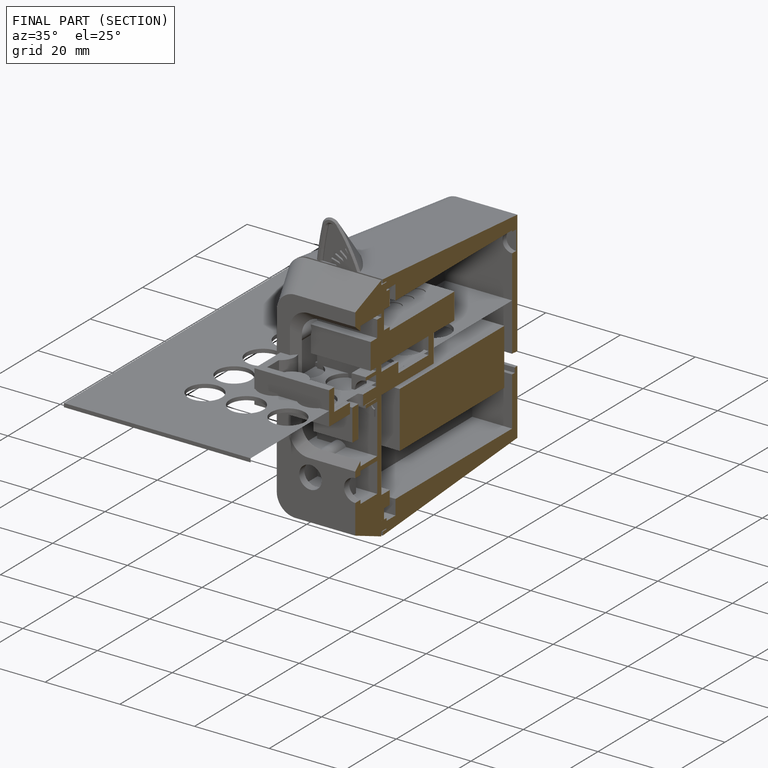
[diagram: finished part — half-section view (interior)]
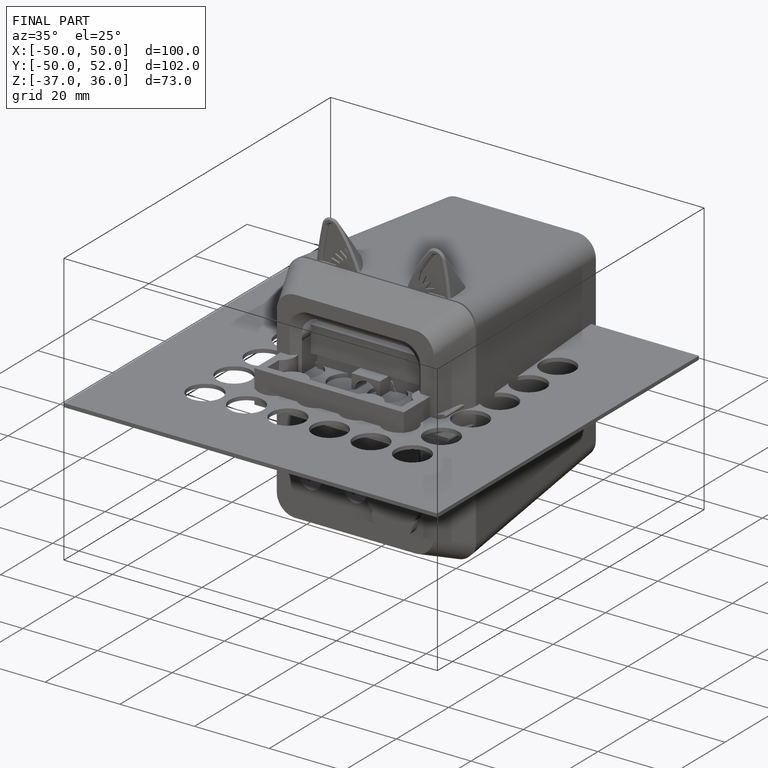
[diagram: finished part — iso view with bounding-box wireframe]
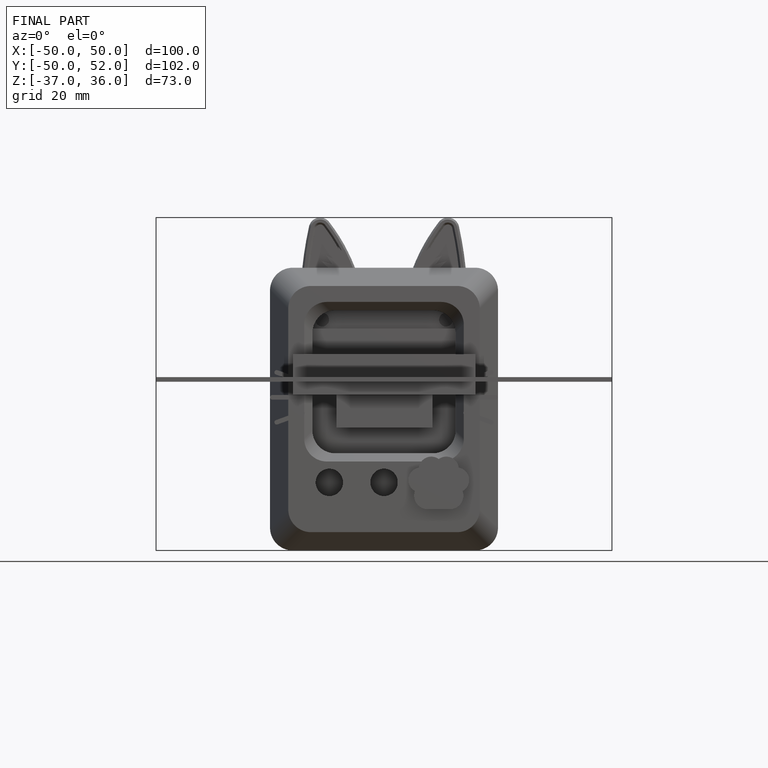
[diagram: finished part — front view with bounding-box wireframe]
